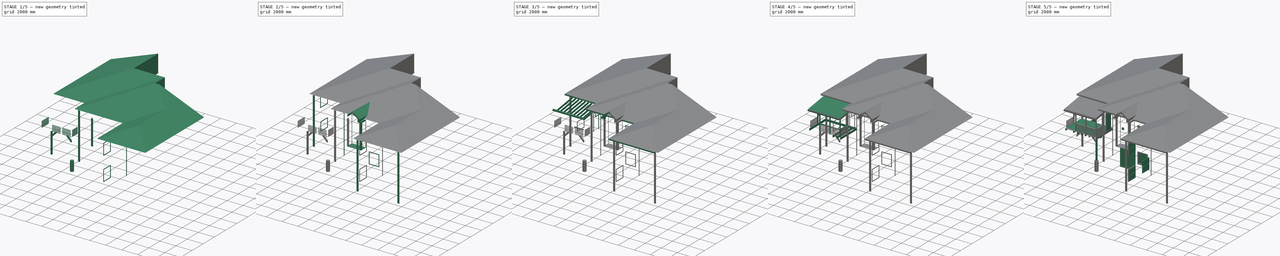
[diagram: build sequence overview — one tinted view per stage of 5, left to right]
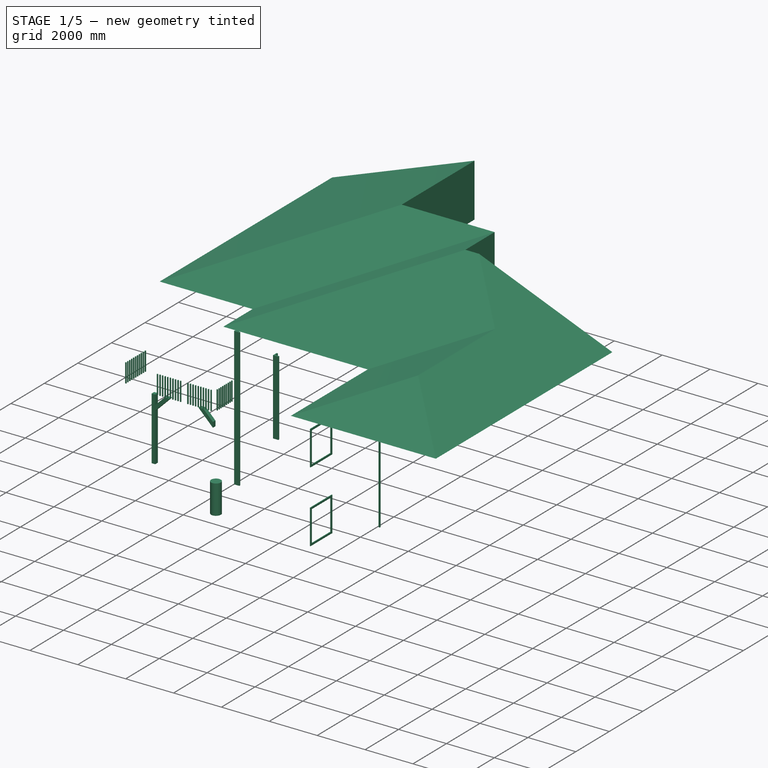
[diagram: stage 1 of 5 — iso view after this stage's code; geometry added in this stage tinted green]
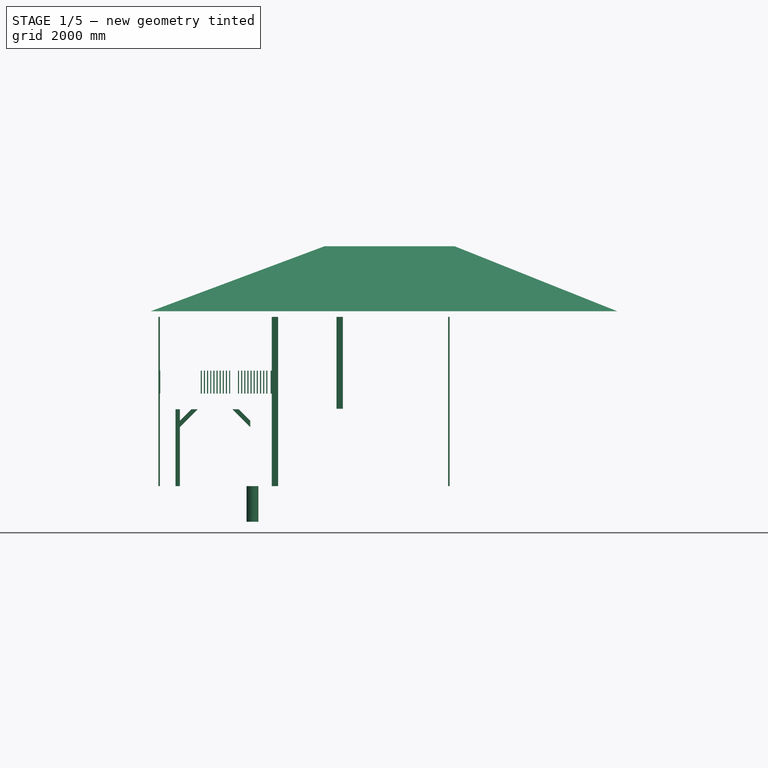
[diagram: stage 1 of 5 — front view after this stage's code; geometry added in this stage tinted green]
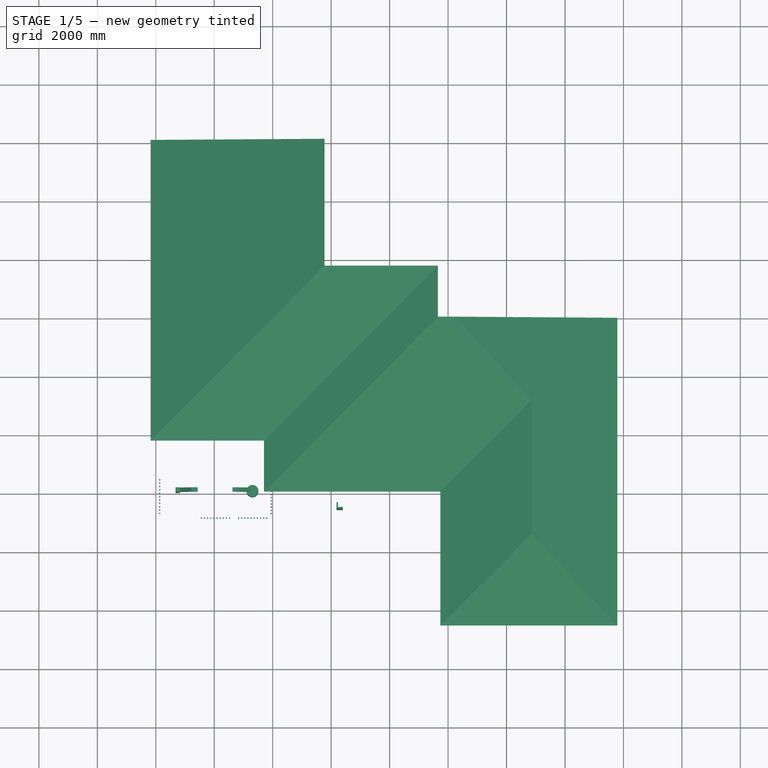
[diagram: stage 1 of 5 — top view after this stage's code; geometry added in this stage tinted green]
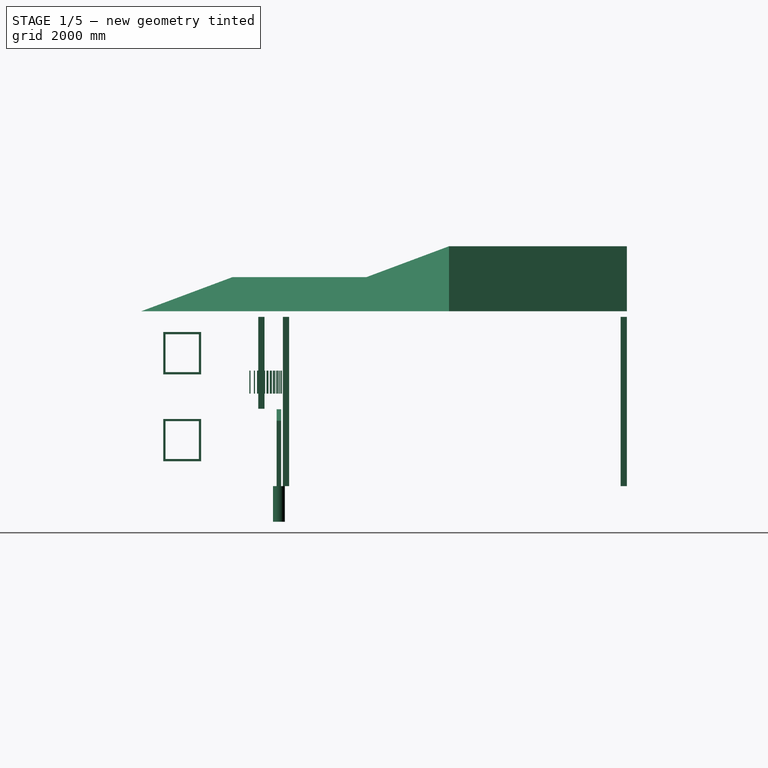
[diagram: stage 1 of 5 — right view after this stage's code; geometry added in this stage tinted green]
FCSTD DOCUMENT  (FreeCAD 0.18R14154 (Git))
Label: Model
License: All rights reserved
LicenseURL: http://en.wikipedia.org/wiki/All_rights_reserved
objects: Part::Part2DObjectPython×130, Part::FeaturePython×121, Part::Extrusion×22, App::FeaturePython×21, App::MaterialObjectPython×15, Part::Feature×11, Part::Offset2D×11, Part::Cut×9, App::DocumentObjectGroup×9, Sketcher::SketchObject×8, App::GeometryPython×5, Part::Mirroring×2, Part::MultiFuse×1, Part::Compound×1, Image::ImagePlane×1, App::DocumentObjectGroupPython×1
note: 321 computed .brp shape members not serialized (recipe doc carries the construction recipe); baked Part::Feature solids carry a one-line shape summary decoded from their .brp

FEATURE [App::MaterialObjectPython] Material002  label="6x6 treated wood"  # material (typed FeaturePython)
  Description = 6x6 treated wood
  Material = Color=(1.0, 0.6666666666666666, 0.4980392156862745),Description=6x6 treated wood,DiffuseColor=(1.0, 0.6666666865348816, 0.49803921580314636),+4 more (map truncated)
  Transparency = 0
FEATURE [Part::FeaturePython] Structure  label="New 6x6 columns"  # Arch/BIM object (typed FeaturePython)
  FaceMaker = 0
  Height = 2628.9
  HorizontalArea = 23225.8
  IfcAttributes = IfcUID=1MTzHWa5KHwBrE093rt3ko
  IfcRole = 25
  Length = 152.4
  Material = -> Material002
  MoveWithHost = false
  Nodes = (2) [(-1.27676e-15,2.78809e-15,0),(-1.27676e-15,2.78809e-15,2628.9)]
  NodesOffset = 0
  Normal = (0,0,0)
  PerimeterLength = 609.6
  Placement = pos=(-3250.82,-1911.35,0) rot=(0,0,1;0rad)
  VerticalArea = 1.60258e+06
  Width = 152.4
FEATURE [Part::FeaturePython] Structure020  label="Structure004"  # Arch/BIM object (typed FeaturePython)
  Base = -> Clone2D003
  FaceMaker = 0
  Height = 5791.2
  HorizontalArea = 2930.52
  IfcRole = 25
  Length = 0
  MoveWithHost = false
  Nodes = (2) [(6026.69,-1748.29,0),(6026.69,-1748.29,5791.2)]
  NodesOffset = 0
  Normal = (0,0,0)
  PerimeterLength = 216.734
  VerticalArea = 1.25515e+06
  Width = 200
FEATURE [Part::FeaturePython] Structure021  label="Structure005"  # Arch/BIM object (typed FeaturePython)
  Base = -> Clone2D002
  FaceMaker = 0
  Height = 5791.2
  HorizontalArea = 20453.4
  IfcRole = 25
  Length = 0
  MoveWithHost = false
  Nodes = (2) [(44.894,-1705.74,0),(44.894,-1705.74,5791.2)]
  NodesOffset = 0
  Normal = (0,0,0)
  PerimeterLength = 862.782
  VerticalArea = 4.99654e+06
  Width = 200
FEATURE [Part::FeaturePython] Structure022  label="Structure006"  # Arch/BIM object (typed FeaturePython)
  Base = -> Rectangle004
  FaceMaker = 0
  Height = 5791.2
  HorizontalArea = 11062.9
  IfcRole = 25
  Length = 0
  MoveWithHost = false
  Nodes = (2) [(-3884.91,9887.71,0),(-3884.91,9887.71,5791.2)]
  NodesOffset = 0
  Normal = (0,0,0)
  PerimeterLength = 530.269
  VerticalArea = 3.0709e+06
  Width = 200
FEATURE [Part::Part2DObjectPython] Clone2D005  label="DWire003 (2D) (2D)001"  # Draft 2D object (typed FeaturePython)
  Fuse = false
  Objects = -> [Clone2D002]
  Placement = pos=(6094.99,-2583.69,-489) rot=(0,0,1;0rad)
  Scale = (1,1,1)
FEATURE [Part::Part2DObjectPython] DWire005  # Draft 2D object (typed FeaturePython)
  ChamferSize = 0
  Closed = true
  End = (3945.6,-2402.69,2647.9)
  FilletRadius = 0
  Length = 862.782
  MakeFace = true
  Placement = pos=(1543.65,0,0) rot=(0,0,1;0rad)
  Points = (6) [(2350.08,-2402.06,2647.9),(2350.08,-2559.46,2647.9),(2184.14,-2559.46,2647.9),(2184.14,-2615.95,2647.9),(2401.95,-2615.95,2647.9),+1 more]
  Start = (3893.72,-2402.06,2647.9)
  Subdivisions = 0
FEATURE [Part::FeaturePython] Structure023  label="Structure007"  # Arch/BIM object (typed FeaturePython)
  Base = -> Clone2D005
  FaceMaker = 0
  Height = 3143.25
  HorizontalArea = 20453.4
  IfcRole = 25
  Length = 0
  MoveWithHost = false
  Nodes = (2) [(2259.98,-2545.16,2647.9),(2259.98,-2545.16,5791.15)]
  NodesOffset = 0
  Normal = (0,0,0)
  PerimeterLength = 862.782
  VerticalArea = 2.71194e+06
  Width = 200
FEATURE [Part::Part2DObjectPython] Rectangle022  # Draft 2D object (typed FeaturePython)
  ChamferSize = 0
  Columns = 1
  FilletRadius = 0
  Height = 1447.8
  Length = 1295.4
  MakeFace = true
  Placement = pos=(537.8,-1744.27,849.678) rot=(1,0,0;1.5708rad)
  Rows = 1
FEATURE [Part::Part2DObjectPython] Rectangle023  # Draft 2D object (typed FeaturePython)
  ChamferSize = 0
  Columns = 1
  FilletRadius = 0
  Height = 1295.4
  Length = 1143
  MakeFace = true
  Placement = pos=(614,-1744.27,925.878) rot=(1,0,0;1.5708rad)
  Rows = 1
FEATURE [Part::Cut] Cut002
  Base = -> Rectangle022
  Refine = true
  Tool = -> Rectangle023
FEATURE [Part::Extrusion] Extrusion009  label="Extrusion011"
  Base = -> Cut002
  Dir = (0,-30.9506,0)
  DirMode = 0
  FaceMakerClass = Part::FaceMakerBullseye
  LengthFwd = 0
  LengthRev = 0
  Solid = true
  Symmetric = false
FEATURE [Part::FeaturePython] Clone007  label="Extrusion013"  # Draft clone (typed FeaturePython)
  AttacherType = Attacher::AttachEngine3D
  Fuse = false
  Objects = -> [Extrusion009]
  Placement = pos=(7775.98,-1574.8,0) rot=(0,0,-1;1.5708rad)
  Scale = (1,1,1)
FEATURE [Part::FeaturePython] Clone008  label="Extrusion014"  # Draft clone (typed FeaturePython)
  AttacherType = Attacher::AttachEngine3D
  Fuse = false
  Objects = -> [Clone007]
  Placement = pos=(7775.98,-1574.8,2973.02) rot=(0,0,-1;1.5708rad)
  Scale = (1,1,1)
FEATURE [Part::FeaturePython] Clone010  label="Extrusion017"  # Draft clone (typed FeaturePython)
  AttacherType = Attacher::AttachEngine3D
  Fuse = false
  Objects = -> [Clone007]
  Placement = pos=(7775.98,-4035.43,0) rot=(0,0,-1;1.5708rad)
  Scale = (1,1,1)
FEATURE [Part::FeaturePython] Clone011  label="Extrusion018"  # Draft clone (typed FeaturePython)
  AttacherType = Attacher::AttachEngine3D
  Fuse = false
  Objects = -> [Clone008]
  Placement = pos=(7775.98,-4035.43,2973.02) rot=(0,0,-1;1.5708rad)
  Scale = (1,1,1)
FEATURE [Part::FeaturePython] Structure072  label="Structure018"  # Arch/BIM object (typed FeaturePython)
  CloneOf = -> Structure021
  FaceMaker = 0
  Height = 5791.2
  HorizontalArea = 20453.4
  IfcAttributes = IfcUID=0vB7rkaHeHw8QI093rt3ko
  IfcRole = 25
  Length = 0
  MoveWithHost = false
  Nodes = (2) [(44.894,-1705.74,0),(44.894,-1705.74,5791.2)]
  NodesOffset = 0
  Normal = (0,0,0)
  PerimeterLength = 862.782
  VerticalArea = 4.99654e+06
  Width = 200
FEATURE [Part::FeaturePython] Structure073  label="Structure019"  # Arch/BIM object (typed FeaturePython)
  CloneOf = -> Structure022
  FaceMaker = 0
  Height = 5791.2
  HorizontalArea = 11062.9
  IfcAttributes = IfcUID=0vBNamaHeHw8QI093rt3ko
  IfcRole = 25
  Length = 0
  MoveWithHost = false
  Nodes = (2) [(-3884.91,9887.71,0),(-3884.91,9887.71,5791.2)]
  NodesOffset = 0
  Normal = (0,0,0)
  PerimeterLength = 530.269
  VerticalArea = 3.0709e+06
  Width = 200
FEATURE [Part::FeaturePython] Structure074  label="Structure020"  # Arch/BIM object (typed FeaturePython)
  CloneOf = -> Structure023
  FaceMaker = 0
  Height = 3143.25
  HorizontalArea = 20453.4
  IfcAttributes = IfcUID=0vBdP6aHeHw8QI093rt3ko
  IfcRole = 25
  Length = 0
  MoveWithHost = false
  Nodes = (2) [(2259.98,-2545.16,2647.9),(2259.98,-2545.16,5791.15)]
  NodesOffset = 0
  Normal = (0,0,0)
  PerimeterLength = 862.782
  VerticalArea = 2.71194e+06
  Width = 200
FEATURE [Part::Part2DObjectPython] Line062  # Draft 2D object (typed FeaturePython)
  ChamferSize = 0
  Closed = false
  End = (-3917.95,-3168.6,4076.7)
  FilletRadius = 0
  Length = 3130.6
  MakeFace = true
  Points = (2) [(-3917.95,-38,4076.7),(-3917.95,-3168.6,4076.7)]
  Start = (-3917.95,-38,4076.7)
  Subdivisions = 0
FEATURE [App::FeaturePython] Dimension024  # Draft dimension (typed FeaturePython)
  Diameter = false
  Dimline = (-3917.95,-3740.15,3698.88)
  Direction = (0,0,0)
  Distance = 914.4
  End = (-3917.95,-3168.6,4076.7)
  Normal = (-1,0,0)
  Start = (-3917.95,-3168.6,3162.3)
FEATURE [App::FeaturePython] Dimension025  # Draft dimension (typed FeaturePython)
  Diameter = false
  Dimline = (-3917.95,-3740.15,4683.12)
  Direction = (0,0,0)
  Distance = 1054.1
  End = (-3917.95,-3168.6,5130.8)
  Normal = (-1,0,0)
  Start = (-3917.95,-3168.6,4076.7)
FEATURE [App::FeaturePython] Dimension026  # Draft dimension (typed FeaturePython)
  Diameter = false
  Dimline = (-4235.07,-1987.55,3775.07)
  Direction = (0,0,0)
  Distance = 914.4
  End = (-3917.95,-1987.55,4076.7)
  Normal = (0,-1,0)
  Start = (-3917.95,-1987.55,3162.3)
FEATURE [App::FeaturePython] Dimension027  # Draft dimension (typed FeaturePython)
  Diameter = false
  Dimline = (-4235.07,-1987.55,4759.32)
  Direction = (0,0,0)
  Distance = 1054.1
  End = (-3917.95,-1987.55,5130.8)
  Normal = (0,-1,0)
  Start = (-3917.95,-1987.55,4076.7)
FEATURE [Part::Part2DObjectPython] Line063  # Draft 2D object (typed FeaturePython)
  ChamferSize = 0
  Closed = false
  End = (-5514.6,-1987.55,2628.9)
  FilletRadius = 0
  Length = 5349.55
  MakeFace = true
  Points = (2) [(-165.05,-1987.55,2628.9),(-5514.6,-1987.55,2628.9)]
  Start = (-165.05,-1987.55,2628.9)
  Subdivisions = 0
  Support = -> [Structure]
FEATURE [Part::Part2DObjectPython] Line064  # Draft 2D object (typed FeaturePython)
  ChamferSize = 0
  Closed = false
  End = (-5514.6,-1987.55,2019.3)
  FilletRadius = 0
  Length = 5349.55
  MakeFace = true
  Points = (2) [(-165.05,-1987.55,2019.3),(-5514.6,-1987.55,2019.3)]
  Start = (-165.05,-1987.55,2019.3)
  Subdivisions = 0
FEATURE [Part::Part2DObjectPython] Line065  # Draft 2D object (typed FeaturePython)
  ChamferSize = 0
  Closed = false
  End = (-3174.62,-1987.55,1314.45)
  FilletRadius = 0
  Length = 1314.45
  MakeFace = true
  Points = (2) [(-3174.62,-1987.55,2628.9),(-3174.62,-1987.55,1314.45)]
  Start = (-3174.62,-1987.55,2628.9)
  Subdivisions = 0
FEATURE [Part::Part2DObjectPython] Line066  # Draft 2D object (typed FeaturePython)
  ChamferSize = 0
  Closed = false
  End = (-2565.02,-1987.55,1314.45)
  FilletRadius = 0
  Length = 1314.45
  MakeFace = true
  Points = (2) [(-2565.02,-1987.55,2628.9),(-2565.02,-1987.55,1314.45)]
  Start = (-2565.02,-1987.55,2628.9)
  Subdivisions = 0
FEATURE [Part::Part2DObjectPython] Line067  # Draft 2D object (typed FeaturePython)
  ChamferSize = 0
  Closed = false
  End = (-2565.02,-1987.55,2628.9)
  FilletRadius = 0
  Length = 862.105
  MakeFace = true
  Points = (2) [(-3174.62,-1987.55,2019.3),(-2565.02,-1987.55,2628.9)]
  Start = (-3174.62,-1987.55,2019.3)
  Subdivisions = 0
FEATURE [Part::Part2DObjectPython] Line068  # Draft 2D object (typed FeaturePython)
  ChamferSize = 0
  Closed = false
  End = (-3174.62,-1987.55,2234.83)
  FilletRadius = 0
  Length = 557.305
  MakeFace = true
  Points = (2) [(-2780.55,-1987.55,2628.9),(-3174.62,-1987.55,2234.83)]
  Start = (-2780.55,-1987.55,2628.9)
  Subdivisions = 0
FEATURE [Part::Part2DObjectPython] DWire029  # Draft 2D object (typed FeaturePython)
  ChamferSize = 0
  Closed = true
  End = (-3174.62,-1987.55,2019.3)
  FilletRadius = 0
  Length = 1850.46
  MakeFace = true
  Points = (4) [(-2565.02,-1987.55,2628.9),(-2780.55,-1987.55,2628.9),(-3174.62,-1987.55,2234.83),(-3174.62,-1987.55,2019.3)]
  Start = (-2565.02,-1987.55,2628.9)
  Subdivisions = 0
FEATURE [Part::FeaturePython] Structure075  label="6x6 brace"  # Arch/BIM object (typed FeaturePython)
  Base = -> DWire029
  FaceMaker = 0
  Height = 152.4
  HorizontalArea = 92903
  IfcAttributes = IfcUID=0ufAcEaHeHw8QI093rt3ko
  IfcRole = 8
  Length = 0
  Material = -> Material002
  MoveWithHost = false
  Nodes = (2) [(-2919.85,-1987.55,2374.12),(-2919.85,-1987.55,2221.72)]
  NodesOffset = 0
  Normal = (0,1,0)
  PerimeterLength = 0
  VerticalArea = 249164
  Width = 200
FEATURE [Part::Feature] mirror002001  label="Mirror of 6x6 brace001"
  Placement = pos=(13.4075,0,0) rot=(0,0,1;0rad)
  shape: bbox 609.6 x 152.4 x 609.6 mm, 6 faces (baked)
FEATURE [Part::FeaturePython] Structure076  label="6x6 brace001"  # Arch/BIM object (typed FeaturePython)
  Base = -> mirror002001
  FaceMaker = 0
  Height = 2000
  HorizontalArea = 32846.2
  IfcAttributes = IfcUID=0uepLyaHeHw8QI093rt3ko
  IfcRole = 8
  Length = 0
  Material = -> Material002
  MoveWithHost = false
  NodesOffset = 0
  Normal = (0,0,0)
  PerimeterLength = 0
  VerticalArea = 249164
  Width = 200
FEATURE [Part::Part2DObjectPython] Circle001  # Draft 2D object (typed FeaturePython)
  FirstAngle = 0
  LastAngle = 0
  MakeFace = true
  Placement = pos=(-3250.82,-1911.35,0) rot=(0,0,1;0rad)
  Radius = 203.2
FEATURE [App::MaterialObjectPython] Material011  label="Material"  # material (typed FeaturePython)
  Transparency = 0
FEATURE [App::MaterialObjectPython] Material012  label="Material001"  # material (typed FeaturePython)
  Transparency = 0
FEATURE [App::MaterialObjectPython] Material013  label="Concrete"  # material (typed FeaturePython)
  Material = Color=(0.5019607843137255, 0.5019607843137255, 0.5019607843137255),DiffuseColor=(0.501960813999176, 0.501960813999176, 0.501960813999176),+3 more (map truncated)
  Transparency = 0
FEATURE [Part::FeaturePython] Structure077  label="Structure021"  # Arch/BIM object (typed FeaturePython)
  Base = -> Circle001
  FaceMaker = 0
  Height = 1219.2
  HorizontalArea = 129717
  IfcAttributes = IfcUID=0ufNe8aHeHw8QI093rt3ko
  IfcRole = 77
  Length = 0
  Material = -> Material013
  MoveWithHost = false
  Nodes = (2) [(-3250.82,-1911.35,0),(-3250.82,-1911.35,-1219.2)]
  NodesOffset = 0
  Normal = (0,0,-1)
  PerimeterLength = 1276.74
  VerticalArea = 1.55661e+06
  Width = 200
FEATURE [Part::FeaturePython] Structure078  label="Structure022"  # Arch/BIM object (typed FeaturePython)
  CloneOf = -> Structure077
  FaceMaker = 0
  Height = 1219.2
  HorizontalArea = 129717
  IfcAttributes = IfcUID=0ufbH6aHeHw8QI093rt3ko
  IfcRole = 25
  Length = 0
  Material = -> Material013
  MoveWithHost = false
  Nodes = (2) [(-3250.82,-1911.35,0),(-3250.82,-1911.35,-1219.2)]
  NodesOffset = 0
  Normal = (0,0,0)
  PerimeterLength = 1276.74
  Placement = pos=(2559.05,9.15828e-06,0) rot=(0,0,1;0rad)
  VerticalArea = 1.55661e+06
  Width = 200
FEATURE [App::GeometryPython] BuildingPart  label="Level +0' 0""  # Arch/BIM object (typed FeaturePython)
  Area = 0
  Group = -> [Group001,Group002,Structure076,Structure075,Structure077,Structure078]
  Height = 0
  IfcAttributes = IfcUID=1MTrvAa5KHwBrE093rt3ko
  IfcRole = 0
  LevelOffset = 0
  Placement = pos=(-5950.82,-1987.55,0) rot=(0,0,1;0rad)
FEATURE [Part::Part2DObjectPython] Line069  # Draft 2D object (typed FeaturePython)
  ChamferSize = 0
  Closed = false
  End = (-3867.15,-1289.25,3162.3)
  FilletRadius = 0
  Length = 1156
  MakeFace = true
  Points = (2) [(-3867.15,-133.25,3162.3),(-3867.15,-1289.25,3162.3)]
  Start = (-3867.15,-133.25,3162.3)
  Subdivisions = 9
FEATURE [Part::Part2DObjectPython] Line070  # Draft 2D object (typed FeaturePython)
  ChamferSize = 0
  Closed = false
  End = (-2746.37,-2901.85,3162.3)
  FilletRadius = 0
  Length = 968.38
  MakeFace = true
  Points = (2) [(-3714.75,-2901.85,3162.3),(-2746.37,-2901.85,3162.3)]
  Start = (-3714.75,-2901.85,3162.3)
  Subdivisions = 8
FEATURE [Part::Part2DObjectPython] Line071  # Draft 2D object (typed FeaturePython)
  ChamferSize = 0
  Closed = false
  End = (-50.8,-1879.5,3162.3)
  FilletRadius = 0
  Length = 869.95
  MakeFace = true
  Points = (2) [(-50.8,-2749.45,3162.3),(-50.8,-1879.5,3162.3)]
  Start = (-50.8,-2749.45,3162.3)
  Subdivisions = 7
FEATURE [Part::Part2DObjectPython] _x2in  label="2x2in"  # Draft 2D object (typed FeaturePython)
  Height = 38
  Width = 38
FEATURE [App::MaterialObjectPython] Material014  label="2x2 treated wood"  # material (typed FeaturePython)
  Material = Color=(1.0, 0.6666666666666666, 0.4980392156862745),DiffuseColor=(1.0, 0.6666666865348816, 0.49803921580314636),Father=Wood,Name=2x10 TREATED WOOD,+2 more (map truncated)
  Transparency = 0
FEATURE [App::DocumentObjectGroupPython] MaterialContainer  label="Materials"  # scripted group (container) (typed FeaturePython)
  Group = -> [Material,Material001,Material002,Material003,Material004,Material005,Material006,Material007,Material008,Material009,Material010,Material011,Material012,Material013,Material014]
FEATURE [Part::FeaturePython] Structure079  label="2x2 Spindles001"  # Arch/BIM object (typed FeaturePython)
  Axis = -> Line069
  Base = -> _x2in
  FaceMaker = 0
  Height = 787.4
  HorizontalArea = 1444
  IfcAttributes = FlagForceBrep=True; IfcUID=0uaBTEaHeHw8QI093rt3ko
  IfcRole = 107
  Length = 0
  Material = -> Material014
  MoveWithHost = false
  Nodes = (2) [(9.71445e-17,-4.67462e-16,0),(9.71445e-17,-4.67462e-16,787.4)]
  NodesOffset = 0
  Normal = (0,0,0)
  PerimeterLength = 152
  Profile = 2x2in
  VerticalArea = 119685
  Width = 200
FEATURE [Part::FeaturePython] Structure080  label="2x2 Spindles002"  # Arch/BIM object (typed FeaturePython)
  Axis = -> Line070
  Base = -> _x2in
  FaceMaker = 0
  Height = 787.4
  HorizontalArea = 2888
  IfcAttributes = FlagForceBrep=True; IfcUID=0uaR$_aHeHw8QI093rt3ko
  IfcRole = 107
  Length = 0
  Material = -> Material014
  MoveWithHost = false
  Nodes = (2) [(9.71445e-17,-4.67462e-16,0),(9.71445e-17,-4.67462e-16,787.4)]
  NodesOffset = 0
  Normal = (0,0,0)
  PerimeterLength = 152
  Profile = 2x2in
  VerticalArea = 239370
  Width = 200
FEATURE [Part::FeaturePython] Structure081  label="2x2 Spindles003"  # Arch/BIM object (typed FeaturePython)
  Axis = -> Line071
  Base = -> _x2in
  FaceMaker = 0
  Height = 787.4
  HorizontalArea = 2888
  IfcAttributes = FlagForceBrep=True; IfcUID=0uaeSOaHeHw8QI093rt3ko
  IfcRole = 107
  Length = 0
  Material = -> Material014
  MoveWithHost = false
  Nodes = (2) [(9.71445e-17,-4.67462e-16,0),(9.71445e-17,-4.67462e-16,787.4)]
  NodesOffset = 0
  Normal = (0,0,0)
  PerimeterLength = 152
  Profile = 2x2in
  VerticalArea = 239370
  Width = 200
FEATURE [Part::FeaturePython] Structure082  label="2x2 Spindles004"  # Arch/BIM object (typed FeaturePython)
  CloneOf = -> Structure079
  FaceMaker = 0
  Height = 787.4
  HorizontalArea = 1444
  IfcAttributes = FlagForceBrep=True; IfcUID=0uao8EaHeHw8QI093rt3ko
  IfcRole = 107
  Length = 0
  Material = -> Material014
  MoveWithHost = false
  Nodes = (2) [(9.71445e-17,-4.67462e-16,0),(9.71445e-17,-4.67462e-16,787.4)]
  NodesOffset = 0
  Normal = (0,0,0)
  PerimeterLength = 152
  Placement = pos=(0,-1460.2,0) rot=(0,0,1;0rad)
  VerticalArea = 119685
  Width = 200
FEATURE [Part::FeaturePython] Structure083  label="2x2 Spindles005"  # Arch/BIM object (typed FeaturePython)
  CloneOf = -> Structure080
  FaceMaker = 0
  Height = 787.4
  HorizontalArea = 2888
  IfcAttributes = FlagForceBrep=True; IfcUID=0uaxPgaHeHw8QI093rt3ko
  IfcRole = 107
  Length = 0
  Material = -> Material014
  MoveWithHost = false
  Nodes = (2) [(9.71445e-17,-4.67462e-16,0),(9.71445e-17,-4.67462e-16,787.4)]
  NodesOffset = 0
  Normal = (0,0,0)
  PerimeterLength = 152
  Placement = pos=(1272.12,1e-12,0) rot=(0,0,1;0rad)
  VerticalArea = 239370
  Width = 200
FEATURE [Part::FeaturePython] Structure084  label="2x2 Spindles"  # Arch/BIM object (typed FeaturePython)
  CloneOf = -> Structure080
  FaceMaker = 0
  Height = 787.4
  HorizontalArea = 2888
  IfcAttributes = FlagForceBrep=True; IfcUID=0ub2xsaHeHw8QI093rt3ko
  IfcRole = 107
  Length = 0
  Material = -> Material014
  MoveWithHost = false
  Nodes = (2) [(9.71445e-17,-4.67462e-16,0),(9.71445e-17,-4.67462e-16,787.4)]
  NodesOffset = 0
  Normal = (0,0,0)
  PerimeterLength = 152
  Placement = pos=(2544.23,1e-12,0) rot=(0,0,1;0rad)
  VerticalArea = 239370
  Width = 200
FEATURE [App::DocumentObjectGroup] Group005  label="Handrails"
  Group = -> [Structure051,Structure052,Structure048,Structure055,Structure053,Structure056,Structure057,Structure049,Structure050,Structure065,Structure054,Structure064,Structure079,Structure080,Structure081,Structure082,Structure083,Structure084]
FEATURE [App::GeometryPython] BuildingPart001  label="Level +10' 3 1/2""  # Arch/BIM object (typed FeaturePython)
  Area = 0
  Group = -> [Component001,Panel,Group003,Group004,Group005,Group006]
  Height = 0
  IfcAttributes = IfcUID=1MF2fQa5KHwBrE093rt3ko
  IfcRole = 0
  LevelOffset = 0
  Placement = pos=(-5950.82,-1987.55,3136.9) rot=(0,0,1;0rad)
FEATURE [Part::Part2DObjectPython] DWire030  # Draft 2D object (typed FeaturePython)
  ChamferSize = 0
  Closed = false
  End = (-4176.09,9994.34,5981.7)
  FilletRadius = 0
  Length = 32587.1
  MakeFace = true
  Points = (7) [(11792.1,-6624.63,5981.7),(5735.51,-6624.63,5981.7),(5735.51,-2040.47,5981.7),(-296.194,-2040.47,5981.7),(-296.194,-296.194,5981.7),+2 more]
  Start = (11792.1,-6624.63,5981.7)
  Subdivisions = 0
FEATURE [Part::Part2DObjectPython] Line072  # Draft 2D object (typed FeaturePython)
  ChamferSize = 0
  Closed = false
  End = (11792.1,3907.28,5981.7)
  FilletRadius = 0
  Length = 10531.9
  MakeFace = true
  Points = (2) [(11792.1,-6624.63,5981.7),(11792.1,3907.28,5981.7)]
  Start = (11792.1,-6624.63,5981.7)
  Subdivisions = 0
FEATURE [Part::Part2DObjectPython] Line073  # Draft 2D object (typed FeaturePython)
  ChamferSize = 0
  Closed = false
  End = (11334.3,3907.28,5981.7)
  FilletRadius = 0
  Length = 10042.9
  MakeFace = true
  Points = (2) [(11334.3,-6135.61,5981.7),(11334.3,3907.28,5981.7)]
  Start = (11334.3,-6135.61,5981.7)
  Subdivisions = 0
FEATURE [Part::Part2DObjectPython] Line074  # Draft 2D object (typed FeaturePython)
  ChamferSize = 0
  Closed = false
  End = (8779.42,3907.28,5981.7)
  FilletRadius = 0
  Length = 2729.36
  MakeFace = true
  Points = (2) [(8779.42,1177.91,5981.7),(8779.42,3907.28,5981.7)]
  Start = (8779.42,1177.91,5981.7)
  Subdivisions = 0
FEATURE [Part::Part2DObjectPython] Line078  # Draft 2D object (typed FeaturePython)
  ChamferSize = 0
  Closed = false
  End = (11792.1,3907.28,5981.7)
  FilletRadius = 0
  Length = 5995.24
  MakeFace = true
  Placement = pos=(-7.13711e-05,3907.28,3.08375e-05) rot=(0,0,1;0rad)
  Points = (2) [(6224.53,0.000489087,8205.51),(11792.1,0.000356537,5981.7)]
  Start = (6224.53,3907.28,8205.51)
  Subdivisions = 0
FEATURE [Part::Part2DObjectPython] Line079  # Draft 2D object (typed FeaturePython)
  ChamferSize = 0
  Closed = false
  End = (5651.55,3907.28,8205.51)
  FilletRadius = 0
  Length = 572.979
  MakeFace = true
  Points = (2) [(6224.53,3907.28,8205.51),(5651.55,3907.28,8205.51)]
  Start = (6224.53,3907.28,8205.51)
  Subdivisions = 0
FEATURE [Part::Part2DObjectPython] Line080  # Draft 2D object (typed FeaturePython)
  ChamferSize = 0
  Closed = false
  End = (5651.55,5651.55,8205.51)
  FilletRadius = 0
  Length = 1744.27
  MakeFace = true
  Points = (2) [(5651.55,3907.28,8205.51),(5651.55,5651.55,8205.51)]
  Start = (5651.55,3907.28,8205.51)
  Subdivisions = 0
FEATURE [Part::Part2DObjectPython] Line083  # Draft 2D object (typed FeaturePython)
  ChamferSize = 0
  Closed = false
  End = (1771.65,5651.55,8205.51)
  FilletRadius = 0
  Length = 3879.9
  MakeFace = true
  Points = (2) [(5651.55,5651.55,8205.51),(1771.65,5651.55,8205.51)]
  Start = (5651.55,5651.55,8205.51)
  Subdivisions = 0
FEATURE [Part::Part2DObjectPython] Line084  # Draft 2D object (typed FeaturePython)
  ChamferSize = 0
  Closed = false
  End = (1771.65,9994.34,8205.51)
  FilletRadius = 0
  Length = 4342.79
  MakeFace = true
  Points = (2) [(1771.65,5651.55,8205.51),(1771.65,9994.34,8205.51)]
  Start = (1771.65,5651.55,8205.51)
  Subdivisions = 0
FEATURE [App::DocumentObjectGroup] Construction
  Group = -> [Dimension001,Line,Dimension003,Circle,Line004,Line003,Dimension004,Line005,Dimension,Dimension005,Dimension006,Clone2D,Line006,Line007,Line010,Line011,Dimension008,Line012,DWire014,Wire,Line046,DWire013,Line013,Line014,Line015,Line019,Line020,Line021,Line022,Line023,Line025,Line029,Line036,Line038,Line040,Line043,Line045,Line048,Line053,Line054,Line049,Line055,Line056,Line057,Dimension010,+33 more]
FEATURE [Part::Part2DObjectPython] DWire043  # Draft 2D object (typed FeaturePython)
  ChamferSize = 0
  Closed = true
  End = (1771.65,9994.34,5981.7)
  FilletRadius = 0
  Length = 65174.3
  MakeFace = true
  Points = (12) [(-4176.09,9994.34,5981.7),(-4176.09,-296.194,5981.7),(-296.194,-296.194,5981.7),(-296.194,-2040.47,5981.7),(5735.51,-2040.47,5981.7),+7 more]
  Start = (-4176.09,9994.34,5981.7)
  Subdivisions = 0
FEATURE [Part::FeaturePython] Structure085  label="Structure029"  # Arch/BIM object (typed FeaturePython)
  Base = -> DWire043
  FaceMaker = 0
  Height = 2000
  HorizontalArea = 3.52763e+08
  IfcRole = 25
  Length = 0
  MoveWithHost = false
  Nodes = (2) [(-296.194,-2040.47,5981.7),(5651.55,3907.28,8205.51)]
  NodesOffset = 0
  Normal = (0,0,0)
  PerimeterLength = 65174.3
  Placement = pos=(5947.74,5947.74,2223.81) rot=(0,0,1;0rad)
  Tool = -> Line036
  VerticalArea = 1.30349e+08
  Width = 200
FEATURE [Part::Part2DObjectPython] DWire044  # Draft 2D object (typed FeaturePython)
  ChamferSize = 0
  Closed = true
  End = (18996,-8464.55,5981.7)
  FilletRadius = 0
  Length = 32059
  MakeFace = true
  Placement = pos=(0,-8464.55,0) rot=(0,0,1;0rad)
  Points = (5) [(11792.1,0.000356537,5981.7),(6224.53,0.000489087,8205.51),(6224.53,0.000604259,10137.8),(18996,0.000604259,10137.8),(18996,0.000356537,5981.7)]
  Start = (11792.1,-8464.55,5981.7)
  Subdivisions = 0
FEATURE [Part::Extrusion] Extrusion018  label="Extrusion027"
  Base = -> DWire044
  Dir = (0,26870,-0.00160158)
  DirMode = 0
  FaceMakerClass = Part::FaceMakerBullseye
  LengthFwd = 0
  LengthRev = 0
  Solid = true
  Symmetric = false
FEATURE [Part::Cut] Cut007
  Base = -> Structure085
  Refine = true
  Tool = -> Extrusion018
FEATURE [Part::Part2DObjectPython] DWire045  # Draft 2D object (typed FeaturePython)
  ChamferSize = 0
  Closed = true
  End = (1771.65,9994.34,0)
  FilletRadius = 0
  Length = 69941.2
  MakeFace = true
  Points = (9) [(-4176.09,9994.34,0),(-6200.77,9994.34,0),(-6200.77,17913.3,0),(14763.8,17913.3,0),(14763.8,3907.28,0),(5651.55,3907.28,0),(5651.55,5651.55,0),+2 more]
  Start = (-4176.09,9994.34,0)
  Subdivisions = 0
FEATURE [Part::Extrusion] Extrusion019  label="Extrusion028"
  Base = -> DWire045
  Dir = (0,0,9842.5)
  DirMode = 0
  FaceMakerClass = Part::FaceMakerBullseye
  LengthFwd = 0
  LengthRev = 0
  Solid = true
  Symmetric = false
FEATURE [Part::Cut] Cut008
  Base = -> Cut007
  Refine = true
  Tool = -> Extrusion019
FEATURE [Part::Feature] Clone008001  label="Extrusion029"
  Placement = pos=(7775.98,-1574.8,2973.02) rot=(0,0,-1;1.5708rad)
  shape: bbox 30.95 x 1295 x 1448 mm, 10 faces (baked)
FEATURE [Part::Feature] Clone011001  label="Extrusion030"
  Placement = pos=(7775.98,-4035.43,2973.02) rot=(0,0,-1;1.5708rad)
  shape: bbox 30.95 x 1295 x 1448 mm, 10 faces (baked)
FEATURE [Part::Feature] Clone007001  label="Extrusion031"
  Placement = pos=(7775.98,-1574.8,0) rot=(0,0,-1;1.5708rad)
  shape: bbox 30.95 x 1295 x 1448 mm, 10 faces (baked)
FEATURE [Part::Feature] Clone010001  label="Extrusion032"
  Placement = pos=(7775.98,-4035.43,0) rot=(0,0,-1;1.5708rad)
  shape: bbox 30.95 x 1295 x 1448 mm, 10 faces (baked)
FEATURE [Part::Feature] Shape
  shape: bbox 15970 x 16620 x 2224 mm, 19 faces (baked)
FEATURE [Part::Feature] Shape001
  shape: bbox 15970 x 16620 x 2224 mm, 13 faces (baked)
FEATURE [Part::FeaturePython] Component002  label="Existing roof"  # Arch/BIM object (typed FeaturePython)
  Base = -> Shape001
  HorizontalArea = 0
  IfcAttributes = FlagForceBrep=True; FlagParametric=False; IfcUID=0vBsZQaHeHw8QI093rt3ko
  IfcRole = 0
  MoveWithHost = false
  PerimeterLength = 0
  VerticalArea = 0
FEATURE [App::DocumentObjectGroup] Trash
  Group = -> [Solid,Clone008,Clone011,Clone007,Clone010,Shape,Component002]
FEATURE [App::DocumentObjectGroup] Group  label="Site plan"
  Group = -> [ImagePlane001,Rectangle033,DWire,Rectangle032,Rectangle,Line061,Line060,Line059,DWire028,DWire027]
FEATURE [Part::Feature] Part__Feature  label="Existing_roof"
  shape: bbox 15970 x 16620 x 2224 mm, 13 faces (baked)
FEATURE [App::GeometryPython] BuildingPart004  label="Existing house"  # Arch/BIM object (typed FeaturePython)
  Area = 0
  Group = -> [Wall,Structure025,Structure026,Structure027,Extrusion006,Extrusion007,Clone004,Extrusion008,Clone005,Extrusion009,Clone006,Extrusion010,Clone009,Extrusion011,Clone012,Extrusion012,Cut006,Extrusion016,Extrusion017,Structure066,Structure067,Structure068,Structure069,Structure070,Structure071,Structure072,Structure073,Structure074,Clone008001,Clone011001,Clone007001,Clone010001,Part__Feature]
  Height = 0
  IfcAttributes = IfcUID=1MWDmYa5KHwBrE093rt3ko
  IfcRole = 0
  LevelOffset = 0
FEATURE [App::GeometryPython] BuildingPart003  label="Trevor Way House"  # Arch/BIM object (typed FeaturePython)
  Area = 0
  BuildingType = 36
  Group = -> [BuildingPart002,BuildingPart001,BuildingPart,BuildingPart004]
  Height = 0
  IfcAttributes = IfcUID=1MEZSYa5KHwBrE093rt3ko
  IfcRole = 11
  LevelOffset = 0
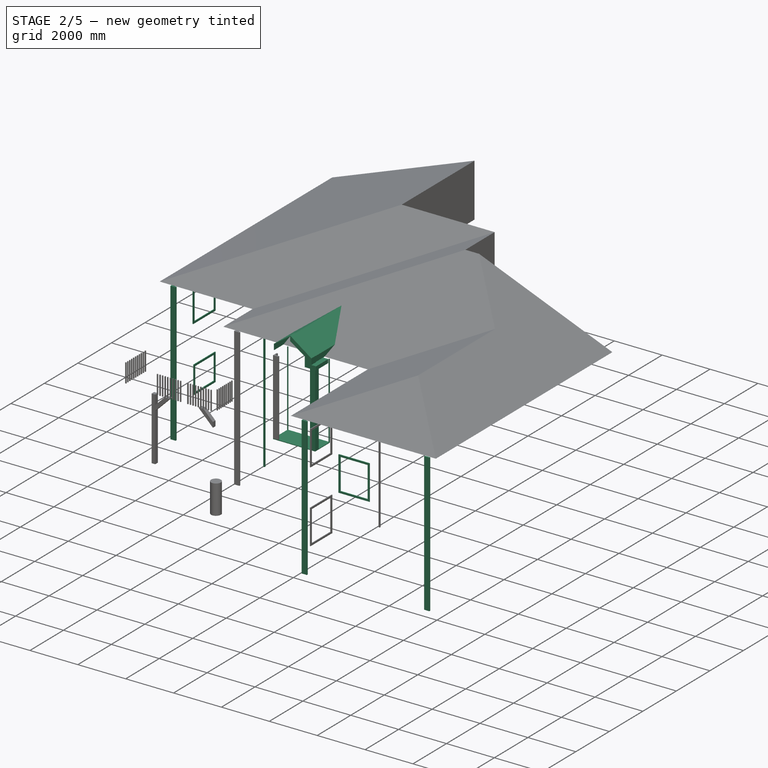
[diagram: stage 2 of 5 — iso view after this stage's code; geometry added in this stage tinted green]
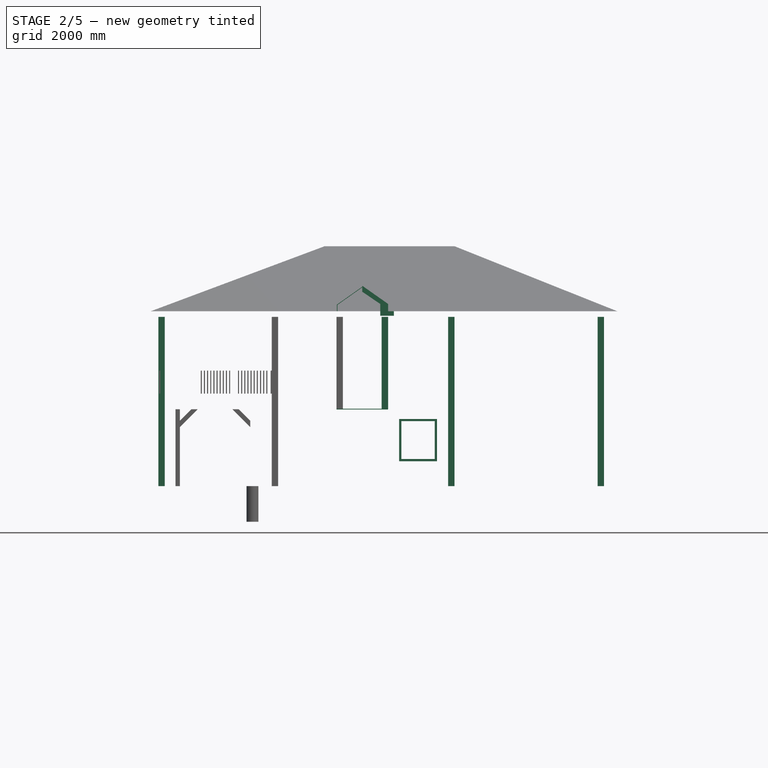
[diagram: stage 2 of 5 — front view after this stage's code; geometry added in this stage tinted green]
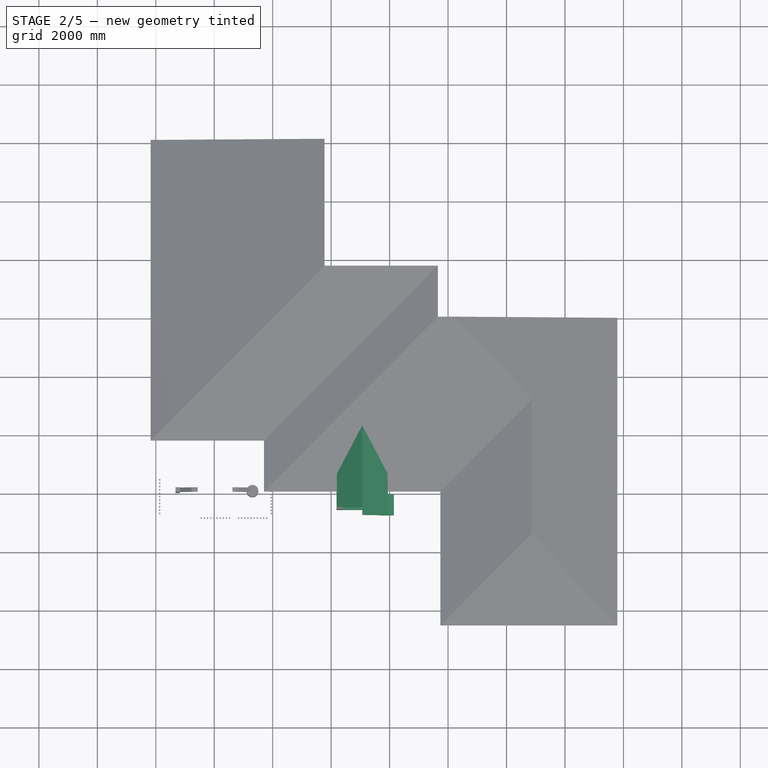
[diagram: stage 2 of 5 — top view after this stage's code; geometry added in this stage tinted green]
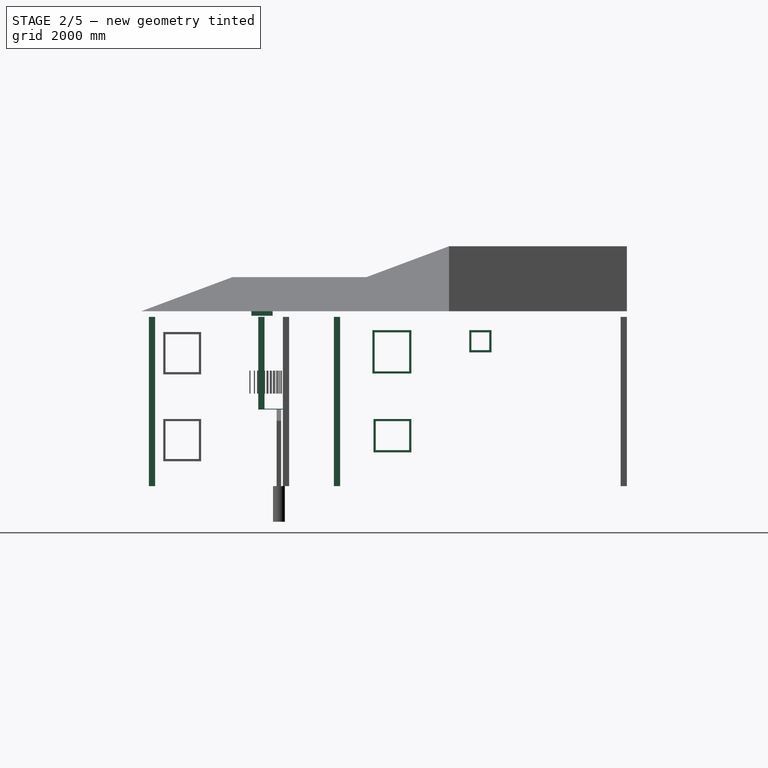
[diagram: stage 2 of 5 — right view after this stage's code; geometry added in this stage tinted green]
FEATURE [Part::Part2DObjectPython] DWire003  # Draft 2D object (typed FeaturePython)
  ChamferSize = 0
  Closed = true
  End = (-3858.97,24.2322,0)
  FilletRadius = 0
  Length = 862.782
  MakeFace = true
  Placement = pos=(0,0,-3136.9) rot=(0,0,1;0rad)
  Points = (6) [(-3858.97,181,3136.9),(-3910.85,181.631,3136.9),(-3910.85,-32.2592,3136.9),(-3693.04,-32.2592,3136.9),(-3693.04,24.2322,3136.9),+1 more]
  Start = (-3858.97,181,0)
  Subdivisions = 0
FEATURE [Part::Part2DObjectPython] Clone2D002  label="DWire003 (2D)"  # Draft 2D object (typed FeaturePython)
  Fuse = false
  Objects = -> [DWire003]
  Placement = pos=(3879.9,-1744.27,-3136.9) rot=(0,0,1;0rad)
  Scale = (1,1,1)
FEATURE [Part::Part2DObjectPython] Rectangle003  # Draft 2D object (typed FeaturePython)
  ChamferSize = 0
  Columns = 1
  FilletRadius = 0
  Height = 56.4914
  Length = 51.8756
  MakeFace = true
  Placement = pos=(-30.9506,-32.2592,0) rot=(0,0,1;0rad)
  Rows = 1
FEATURE [Part::Part2DObjectPython] Clone2D003  label="Rectangle003 (2D)"  # Draft 2D object (typed FeaturePython)
  Fuse = false
  Objects = -> [Rectangle003]
  Placement = pos=(6000.76,-1776.53,0) rot=(0,0,1;0rad)
  Scale = (1,1,1)
FEATURE [Part::Part2DObjectPython] Clone2D004  label="DWire003 (2D) (2D)"  # Draft 2D object (typed FeaturePython)
  Fuse = false
  Objects = -> [Clone2D002]
  Placement = pos=(9911.61,-6328.43,-3136.9) rot=(0,0,1;0rad)
  Scale = (1,1,1)
FEATURE [Part::Part2DObjectPython] Rectangle004  # Draft 2D object (typed FeaturePython)
  ChamferSize = 0
  Columns = 1
  FilletRadius = 0
  Height = 213.259
  Length = 51.8756
  MakeFace = true
  Placement = pos=(-3910.85,9781.08,0) rot=(0,0,1;0rad)
  Rows = 1
FEATURE [Part::Part2DObjectPython] Rectangle005  # Draft 2D object (typed FeaturePython)
  ChamferSize = 0
  Columns = 1
  FilletRadius = 0
  Height = 56.4914
  Length = 217.814
  MakeFace = true
  Placement = pos=(11116.5,-6360.69,0) rot=(0,0,1;0rad)
  Rows = 1
FEATURE [Part::FeaturePython] Structure016  label="Structure"  # Arch/BIM object (typed FeaturePython)
  Base = -> DWire003
  FaceMaker = 0
  Height = 5791.2
  HorizontalArea = 20453.4
  IfcRole = 25
  Length = 0
  MoveWithHost = false
  Nodes = (2) [(-3835.01,38.5314,0),(-3835.01,38.5314,5791.2)]
  NodesOffset = 0
  Normal = (0,0,0)
  PerimeterLength = 862.782
  VerticalArea = 4.99654e+06
  Width = 200
FEATURE [Part::FeaturePython] Structure017  label="Structure001"  # Arch/BIM object (typed FeaturePython)
  Base = -> Clone2D004
  FaceMaker = 0
  Height = 5791.2
  HorizontalArea = 20453.4
  IfcRole = 25
  Length = 0
  MoveWithHost = false
  Nodes = (2) [(6076.6,-6289.9,0),(6076.6,-6289.9,5791.2)]
  NodesOffset = 0
  Normal = (0,0,0)
  PerimeterLength = 862.782
  VerticalArea = 4.99654e+06
  Width = 200
FEATURE [Part::FeaturePython] Structure018  label="Structure002"  # Arch/BIM object (typed FeaturePython)
  Base = -> Rectangle003
  FaceMaker = 0
  Height = 5791.2
  HorizontalArea = 2930.52
  IfcRole = 25
  Length = 0
  MoveWithHost = false
  Nodes = (2) [(-5.01279,-4.01349,0),(-5.01279,-4.01349,5791.2)]
  NodesOffset = 0
  Normal = (0,0,0)
  PerimeterLength = 216.734
  VerticalArea = 1.25515e+06
  Width = 200
FEATURE [Part::FeaturePython] Structure019  label="Structure003"  # Arch/BIM object (typed FeaturePython)
  Base = -> Rectangle005
  FaceMaker = 0
  Height = 5791.2
  HorizontalArea = 12304.6
  IfcRole = 25
  Length = 0
  MoveWithHost = false
  Nodes = (2) [(11225.4,-6332.45,0),(11225.4,-6332.45,5791.2)]
  NodesOffset = 0
  Normal = (0,0,0)
  PerimeterLength = 548.611
  VerticalArea = 3.17712e+06
  Width = 200
FEATURE [Part::Part2DObjectPython] Rectangle006  # Draft 2D object (typed FeaturePython)
  ChamferSize = 0
  Columns = 1
  FilletRadius = 0
  Height = 1041.4
  Length = 1700
  MakeFace = true
  Placement = pos=(2215.09,-2612.29,2647.9) rot=(0,0,1;0rad)
  Rows = 1
FEATURE [Part::Extrusion] Extrusion001
  Base = -> Rectangle006
  Dir = (0,0,3552.1)
  DirMode = 0
  FaceMakerClass = Part::FaceMakerBullseye
  LengthFwd = 0
  LengthRev = 0
  Solid = true
  Symmetric = false
FEATURE [Part::Part2DObjectPython] DWire004  # Draft 2D object (typed FeaturePython)
  ChamferSize = 0
  Closed = true
  End = (3915.09,-1570.89,6200)
  FilletRadius = 0
  Length = 3780.87
  MakeFace = true
  Placement = pos=(0,-1570.89,0) rot=(0,0,1;0rad)
  Points = (3) [(2215.09,0,6200),(3065.09,0,6800),(3915.09,0,6200)]
  Start = (2215.09,-1570.89,6200)
  Subdivisions = 0
FEATURE [Part::Extrusion] Extrusion002
  Base = -> DWire004
  Dir = (0,-1041.4,0)
  DirMode = 0
  FaceMakerClass = Part::FaceMakerBullseye
  LengthFwd = 0
  LengthRev = 0
  Solid = true
  Symmetric = false
FEATURE [Part::MultiFuse] Fusion
  Placement = pos=(0,26.6212,0) rot=(0,0,1;0rad)
  Refine = true
  Shapes = -> [Extrusion002,Extrusion001]
FEATURE [Part::FeaturePython] Structure024  label="Structure008"  # Arch/BIM object (typed FeaturePython)
  Base = -> DWire005
  FaceMaker = 0
  Height = 3143.25
  HorizontalArea = 20453.4
  IfcRole = 25
  Length = 0
  MoveWithHost = false
  Nodes = (2) [(3869.74,-2545.16,2647.9),(3869.74,-2545.16,5791.15)]
  NodesOffset = 0
  Normal = (0,0,0)
  PerimeterLength = 862.782
  VerticalArea = 2.71194e+06
  Width = 200
FEATURE [Part::FeaturePython] Wall  # Arch/BIM object (typed FeaturePython)
  Additions = -> [Fusion]
  Align = 1
  Base = -> DWire001
  BlockHeight = 0
  BlockLength = 0
  CountBroken = 0
  CountEntire = 0
  Face = 0
  Height = 5829.3
  HorizontalArea = 6.2674e+06
  IfcAttributes = FlagForceBrep=True; FlagParametric=False; IfcUID=2MZWa8a4yHw9b8093rt3ko
  IfcRole = 166
  Joint = 0
  Length = 31537
  MakeBlocks = false
  MoveWithHost = false
  Normal = (0,0,0)
  OffsetFirst = 0
  OffsetSecond = 0
  PerimeterLength = 63074
  Subtractions = -> [Structure016,Structure021,Structure022,Structure018,Structure019,Structure020,Structure017,Structure023,Structure024]
  VerticalArea = 3.67677e+08
  Width = 200
FEATURE [Part::Part2DObjectPython] Rectangle020  # Draft 2D object (typed FeaturePython)
  ChamferSize = 0
  Columns = 1
  FilletRadius = 0
  Height = 1333.5
  Length = 1181.1
  MakeFace = true
  Placement = pos=(-3879.9,2545.73,3926.62) rot=(0.57735,-0.57735,-0.57735;2.0944rad)
  Rows = 1
FEATURE [Part::Part2DObjectPython] Rectangle021  # Draft 2D object (typed FeaturePython)
  ChamferSize = 0
  Columns = 1
  FilletRadius = 0
  Height = 1485.9
  Length = 1333.5
  MakeFace = true
  Placement = pos=(-3879.9,2621.93,3850.42) rot=(0.57735,-0.57735,-0.57735;2.0944rad)
  Rows = 1
FEATURE [Part::Cut] Cut001
  Base = -> Rectangle021
  Refine = true
  Tool = -> Rectangle020
FEATURE [Part::Extrusion] Extrusion008  label="Extrusion009"
  Base = -> Cut001
  Dir = (-30.9506,0,0)
  DirMode = 0
  FaceMakerClass = Part::FaceMakerBullseye
  LengthFwd = 0
  LengthRev = 0
  Solid = true
  Symmetric = false
FEATURE [Part::FeaturePython] Clone006  label="Extrusion012"  # Draft clone (typed FeaturePython)
  AttacherType = Attacher::AttachEngine3D
  Fuse = false
  Objects = -> [Extrusion009]
  Placement = pos=(3787.68,0,0) rot=(0,0,1;0rad)
  Scale = (1,1,1)
FEATURE [Part::Part2DObjectPython] Rectangle024  # Draft 2D object (typed FeaturePython)
  ChamferSize = 0
  Columns = 1
  FilletRadius = 0
  Height = 990.6
  Length = 1143
  MakeFace = true
  Placement = pos=(614,-1744.27,925.878) rot=(1,0,0;1.5708rad)
  Rows = 1
FEATURE [Part::Part2DObjectPython] Rectangle025  # Draft 2D object (typed FeaturePython)
  ChamferSize = 0
  Columns = 1
  FilletRadius = 0
  Height = 1143
  Length = 1295.4
  MakeFace = true
  Placement = pos=(537.8,-1744.27,849.678) rot=(1,0,0;1.5708rad)
  Rows = 1
FEATURE [Part::Cut] Cut003
  Base = -> Rectangle025
  Refine = true
  Tool = -> Rectangle024
FEATURE [Part::Extrusion] Extrusion010  label="Extrusion015"
  Base = -> Cut003
  Dir = (0,-30.9506,0)
  DirMode = 0
  FaceMakerClass = Part::FaceMakerBullseye
  LengthFwd = 0
  LengthRev = 0
  Placement = pos=(-3108.47,1744.27,304.8) rot=(0,0,1;0rad)
  Solid = true
  Symmetric = false
FEATURE [Part::FeaturePython] Clone009  label="Extrusion016"  # Draft clone (typed FeaturePython)
  AttacherType = Attacher::AttachEngine3D
  Fuse = false
  Objects = -> [Extrusion010]
  Placement = pos=(-2135.63,3159.74,304.8) rot=(0,0,-1;1.5708rad)
  Scale = (1,1,1)
FEATURE [Part::Part2DObjectPython] Rectangle026  # Draft 2D object (typed FeaturePython)
  ChamferSize = 0
  Columns = 1
  FilletRadius = 0
  Height = 609.6
  Length = 609.6
  MakeFace = true
  Placement = pos=(-3879.9,5285.97,0) rot=(0.57735,-0.57735,-0.57735;2.0944rad)
  Rows = 1
  Support = -> [Wall]
FEATURE [Part::Part2DObjectPython] Rectangle027  # Draft 2D object (typed FeaturePython)
  ChamferSize = 0
  Columns = 1
  FilletRadius = 0
  Height = 762
  Length = 762
  MakeFace = true
  Placement = pos=(-3879.9,5362.17,-76.2) rot=(0.57735,-0.57735,-0.57735;2.0944rad)
  Rows = 1
FEATURE [Part::Cut] Cut004
  Base = -> Rectangle027
  Refine = true
  Tool = -> Rectangle026
FEATURE [Part::Extrusion] Extrusion011  label="Extrusion019"
  Base = -> Cut004
  Dir = (-30.9506,0,0)
  DirMode = 0
  FaceMakerClass = Part::FaceMakerBullseye
  LengthFwd = 0
  LengthRev = 0
  Placement = pos=(0,0,4650.52) rot=(0,0,1;0rad)
  Solid = true
  Symmetric = false
FEATURE [Part::Part2DObjectPython] Rectangle028  # Draft 2D object (typed FeaturePython)
  ChamferSize = 0
  Columns = 1
  FilletRadius = 0
  Height = 871.682
  Length = 1761.46
  MakeFace = true
  Placement = pos=(2184.14,-1744.27,2647.9) rot=(1,0,0;3.14159rad)
  Rows = 1
FEATURE [Part::Extrusion] Extrusion012  label="Extrusion021"
  Base = -> Rectangle028
  Dir = (0,0,-25.4)
  DirMode = 0
  FaceMakerClass = Part::FaceMakerBullseye
  LengthFwd = 0
  LengthRev = 0
  Solid = true
  Symmetric = false
FEATURE [Part::Part2DObjectPython] DWire024  # Draft 2D object (typed FeaturePython)
  ChamferSize = 0
  Closed = true
  End = (2451.77,-2853.96,5829.3)
  FilletRadius = 0
  Length = 3502.14
  MakeFace = true
  Placement = pos=(0,-268.284,0) rot=(0,0,1;0rad)
  Points = (9) [(2401.95,-2585.67,5829.3),(1982.24,-2585.67,5829.3),(1982.24,-2585.67,5981.7),(2179.09,-2585.67,5981.7),(2179.09,-2585.67,6231.08),+4 more]
  Start = (2401.95,-2853.96,5829.3)
  Subdivisions = 0
  Support = -> [Wall]
FEATURE [Part::Extrusion] Extrusion013  label="Extrusion022"
  Base = -> DWire024
  Dir = (0,268.284,0)
  DirMode = 0
  FaceMakerClass = Part::FaceMakerBullseye
  LengthFwd = 0
  LengthRev = 0
  Solid = true
  Symmetric = false
FEATURE [Part::Part2DObjectPython] Rectangle029  # Draft 2D object (typed FeaturePython)
  ChamferSize = 0
  Columns = 1
  FilletRadius = 0
  Height = 460.4
  Length = 232.846
  MakeFace = true
  Placement = pos=(2215.09,-2585.67,5829.3) rot=(0,1,0;3.14159rad)
  Rows = 1
  Support = -> [Extrusion013]
FEATURE [Part::Extrusion] Extrusion014  label="Extrusion023"
  Base = -> Rectangle029
  Dir = (0,0,152.4)
  DirMode = 0
  FaceMakerClass = Part::FaceMakerBullseye
  LengthFwd = 0
  LengthRev = 0
  Solid = true
  Symmetric = false
FEATURE [Part::Mirroring] mirror  label="Mirror of Extrusion022"
  Base = (3064.92,-2853.96,6854.5)
  Normal = (-1,0,4.07069e-07)
  Source = -> Extrusion013
FEATURE [Part::Mirroring] mirror001  label="Mirror of Extrusion023"
  Base = (3064.92,-2853.96,6854.5)
  Normal = (-1,0,4.07069e-07)
  Source = -> Extrusion014
FEATURE [Part::Part2DObjectPython] Line046  # Draft 2D object (typed FeaturePython)
  ChamferSize = 0
  Closed = false
  End = (1771.65,9994.34,5981.7)
  FilletRadius = 0
  Length = 5947.74
  MakeFace = true
  Points = (2) [(-4176.09,9994.34,5981.7),(1771.65,9994.34,5981.7)]
  Start = (-4176.09,9994.34,5981.7)
  Subdivisions = 0
  Support = -> [Structure025]
FEATURE [Part::Part2DObjectPython] DWire025  # Draft 2D object (typed FeaturePython)
  ChamferSize = 0
  Closed = true
  End = (3915.09,-2585.67,6200)
  FilletRadius = 0
  Length = 4414.18
  MakeFace = true
  Points = (5) [(3064.92,-2585.67,6799.88),(2215.09,-2585.67,6200),(2215.09,-2585.67,5883.28),(3915.09,-2585.67,5883.27),(3915.09,-2585.67,6200)]
  Start = (3064.92,-2585.67,6799.88)
  Subdivisions = 0
  Support = -> [Wall]
FEATURE [Part::Part2DObjectPython] DWire026  # Draft 2D object (typed FeaturePython)
  ChamferSize = 0
  Closed = true
  End = (3933.9,-2585.67,6209.75)
  FilletRadius = 0
  Length = 4320.48
  MakeFace = true
  Points = (5) [(3064.91,-2585.67,6822.9),(2196.28,-2585.67,6209.75),(2196.28,-2585.67,5981.7),(3933.9,-2585.67,5981.7),(3933.9,-2585.67,6209.75)]
  Start = (3064.91,-2585.67,6822.9)
  Subdivisions = 0
FEATURE [Part::Cut] Cut005
  Base = -> DWire026
  Refine = true
  Tool = -> DWire025
FEATURE [Part::Extrusion] Extrusion015  label="Extrusion024"
  Base = -> Cut005
  Dir = (0,6492.95,0)
  DirMode = 0
  FaceMakerClass = Part::FaceMakerBullseye
  LengthFwd = 0
  LengthRev = 0
  Solid = true
  Symmetric = false
FEATURE [Part::Part2DObjectPython] Rectangle030  # Draft 2D object (typed FeaturePython)
  ChamferSize = 0
  Columns = 1
  FilletRadius = 0
  Height = 30.9506
  Length = 30.9506
  MakeFace = true
  Placement = pos=(2184.14,-1744.27,5791.2) rot=(1,0,0;3.14159rad)
  Rows = 1
FEATURE [Part::Extrusion] Extrusion016  label="Extrusion025"
  Base = -> Rectangle030
  Dir = (0,0,-3143.3)
  DirMode = 0
  FaceMakerClass = Part::FaceMakerBullseye
  LengthFwd = 0
  LengthRev = 0
  Solid = true
  Symmetric = false
FEATURE [Part::Part2DObjectPython] Rectangle031  # Draft 2D object (typed FeaturePython)
  ChamferSize = 0
  Columns = 1
  FilletRadius = 0
  Height = 32.2592
  Length = 32.2592
  MakeFace = true
  Placement = pos=(3915.09,-1744.27,5791.2) rot=(1,0,0;3.14159rad)
  Rows = 1
FEATURE [Part::Extrusion] Extrusion017  label="Extrusion026"
  Base = -> Rectangle031
  Dir = (0,0,-3143.3)
  DirMode = 0
  FaceMakerClass = Part::FaceMakerBullseye
  LengthFwd = 0
  LengthRev = 0
  Solid = true
  Symmetric = false
FEATURE [App::DocumentObjectGroup] Group004  label="Roof"
  Group = -> [Structure060,Structure061,Structure062,Panel001]
FEATURE [Part::FeaturePython] Structure066  label="Structure012"  # Arch/BIM object (typed FeaturePython)
  CloneOf = -> Structure024
  FaceMaker = 0
  Height = 3143.25
  HorizontalArea = 20453.4
  IfcAttributes = IfcUID=0v9h$8aHeHw8QI093rt3ko
  IfcRole = 25
  Length = 0
  MoveWithHost = false
  Nodes = (2) [(3869.74,-2545.16,2647.9),(3869.74,-2545.16,5791.15)]
  NodesOffset = 0
  Normal = (0,0,0)
  PerimeterLength = 862.782
  VerticalArea = 2.71194e+06
  Width = 200
FEATURE [Part::FeaturePython] Structure067  label="Structure013"  # Arch/BIM object (typed FeaturePython)
  CloneOf = -> Structure016
  FaceMaker = 0
  Height = 5791.2
  HorizontalArea = 20453.4
  IfcAttributes = IfcUID=0v9yloaHeHw8QI093rt3ko
  IfcRole = 25
  Length = 0
  MoveWithHost = false
  Nodes = (2) [(-3835.01,38.5314,0),(-3835.01,38.5314,5791.2)]
  NodesOffset = 0
  Normal = (0,0,0)
  PerimeterLength = 862.782
  VerticalArea = 4.99654e+06
  Width = 200
FEATURE [Part::FeaturePython] Structure068  label="Structure014"  # Arch/BIM object (typed FeaturePython)
  CloneOf = -> Structure017
  FaceMaker = 0
  Height = 5791.2
  HorizontalArea = 20453.4
  IfcAttributes = IfcUID=0vACZ2aHeHw8QI093rt3ko
  IfcRole = 25
  Length = 0
  MoveWithHost = false
  Nodes = (2) [(6076.6,-6289.9,0),(6076.6,-6289.9,5791.2)]
  NodesOffset = 0
  Normal = (0,0,0)
  PerimeterLength = 862.782
  VerticalArea = 4.99654e+06
  Width = 200
FEATURE [Part::FeaturePython] Structure069  label="Structure015"  # Arch/BIM object (typed FeaturePython)
  CloneOf = -> Structure018
  FaceMaker = 0
  Height = 5791.2
  HorizontalArea = 2930.52
  IfcAttributes = IfcUID=0vAS3OaHeHw8QI093rt3ko
  IfcRole = 25
  Length = 0
  MoveWithHost = false
  Nodes = (2) [(-5.01279,-4.01349,0),(-5.01279,-4.01349,5791.2)]
  NodesOffset = 0
  Normal = (0,0,0)
  PerimeterLength = 216.734
  VerticalArea = 1.25515e+06
  Width = 200
FEATURE [Part::FeaturePython] Structure070  label="Structure016"  # Arch/BIM object (typed FeaturePython)
  CloneOf = -> Structure019
  FaceMaker = 0
  Height = 5791.2
  HorizontalArea = 12304.6
  IfcAttributes = IfcUID=0vAgZqaHeHw8QI093rt3ko
  IfcRole = 25
  Length = 0
  MoveWithHost = false
  Nodes = (2) [(11225.4,-6332.45,0),(11225.4,-6332.45,5791.2)]
  NodesOffset = 0
  Normal = (0,0,0)
  PerimeterLength = 548.611
  VerticalArea = 3.17712e+06
  Width = 200
FEATURE [Part::FeaturePython] Structure071  label="Structure017"  # Arch/BIM object (typed FeaturePython)
  CloneOf = -> Structure020
  FaceMaker = 0
  Height = 5791.2
  HorizontalArea = 2930.52
  IfcAttributes = IfcUID=0vAvkSaHeHw8QI093rt3ko
  IfcRole = 25
  Length = 0
  MoveWithHost = false
  Nodes = (2) [(6026.69,-1748.29,0),(6026.69,-1748.29,5791.2)]
  NodesOffset = 0
  Normal = (0,0,0)
  PerimeterLength = 216.734
  VerticalArea = 1.25515e+06
  Width = 200
FEATURE [Part::Cut] Cut006
  Base = -> Extrusion015
  Refine = true
  Tool = -> Cut008
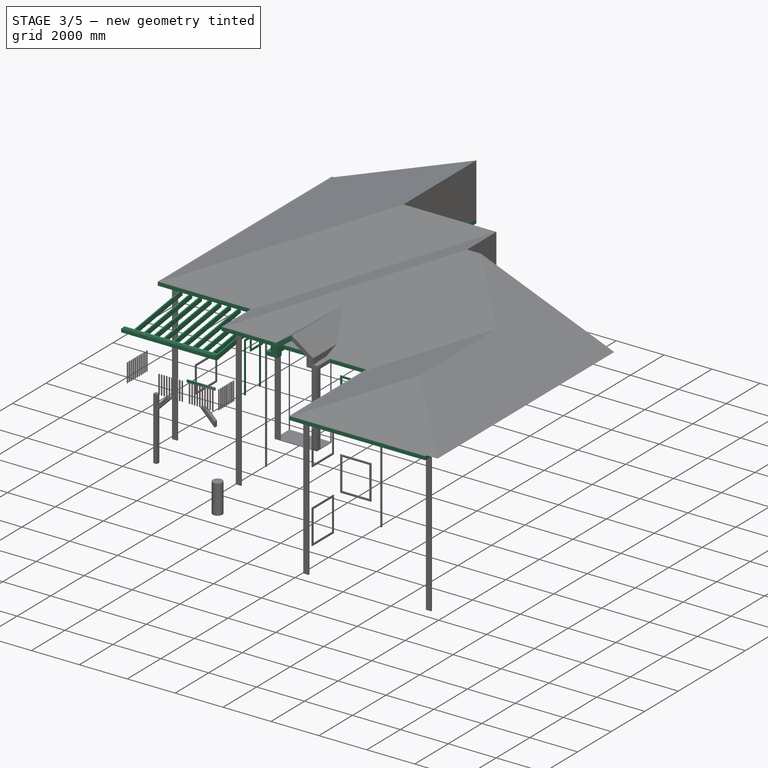
[diagram: stage 3 of 5 — iso view after this stage's code; geometry added in this stage tinted green]
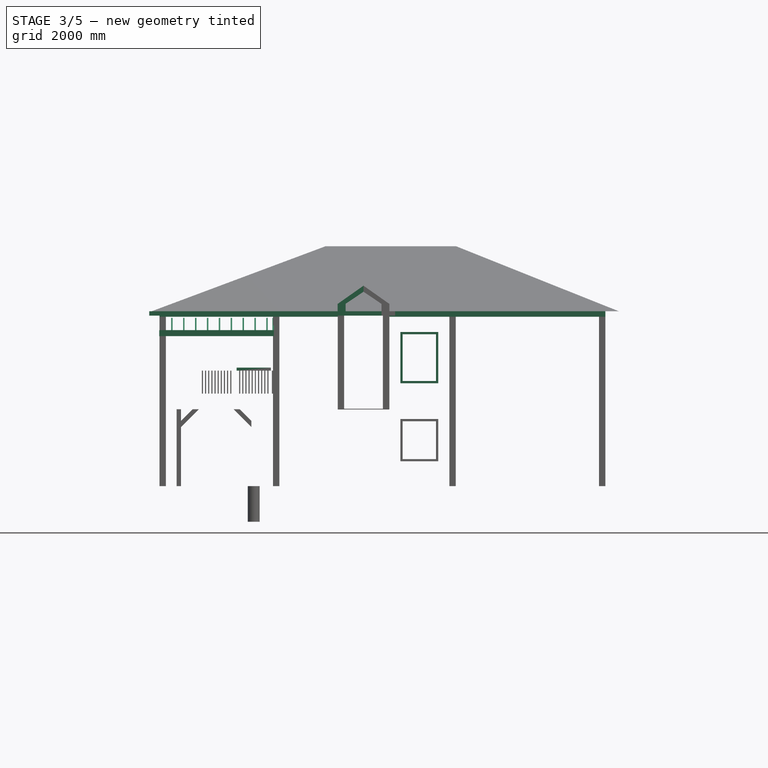
[diagram: stage 3 of 5 — front view after this stage's code; geometry added in this stage tinted green]
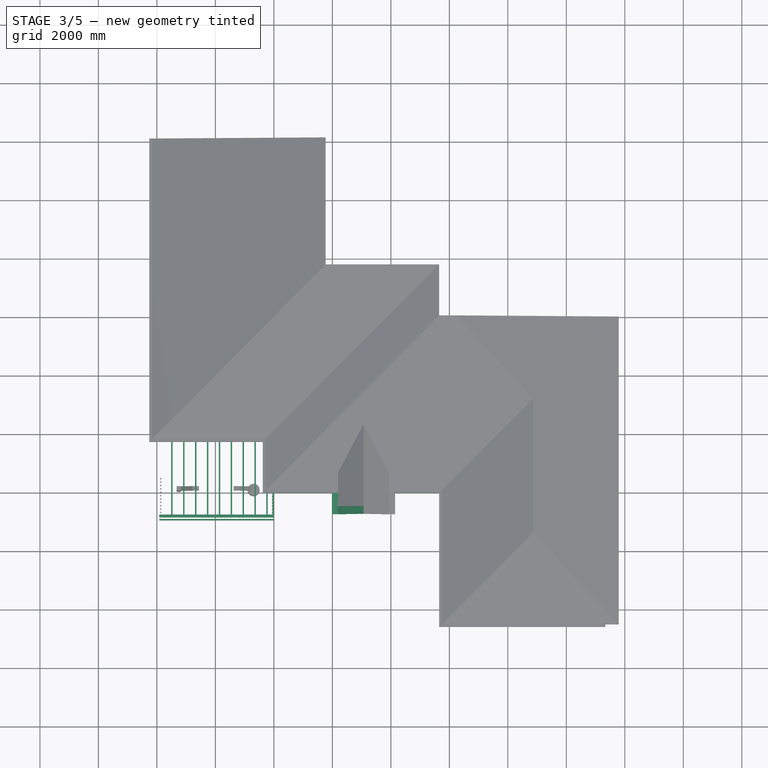
[diagram: stage 3 of 5 — top view after this stage's code; geometry added in this stage tinted green]
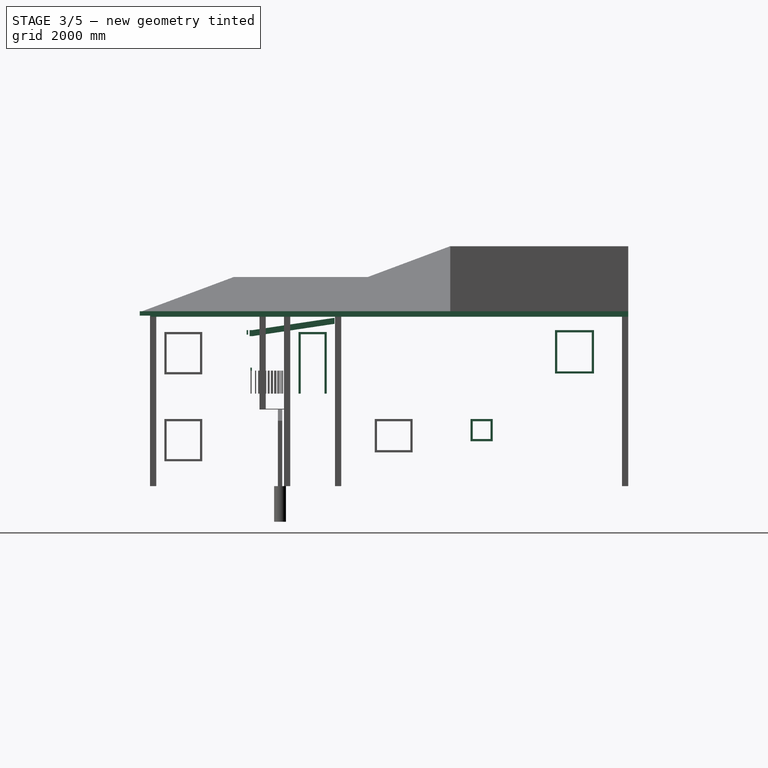
[diagram: stage 3 of 5 — right view after this stage's code; geometry added in this stage tinted green]
FEATURE [Part::Part2DObjectPython] DWire006  # Draft 2D object (typed FeaturePython)
  ChamferSize = 0
  Closed = true
  End = (-4260.9,-381,5829.3)
  FilletRadius = 0
  Length = 64598
  MakeFace = true
  Placement = pos=(0,0.000347453,5829.3) rot=(0,0,1;0rad)
  Points = (12) [(-4260.9,9994.34,0),(1771.65,9994.34,0),(1771.65,5651.55,0),(5651.55,5651.55,0),(5651.55,3907.28,0),(11334.3,3907.28,0),(11334.3,-6709.43,0),+5 more]
  Start = (-4260.9,9994.34,5829.3)
  Subdivisions = 0
FEATURE [Part::Part2DObjectPython] DWire011  # Draft 2D object (typed FeaturePython)
  ChamferSize = 0
  Closed = true
  End = (-3910.85,-30.9506,5829.3)
  FilletRadius = 0
  Length = 37411.9
  MakeFace = true
  Points = (12) [(-3910.85,9994.34,5829.3),(-3879.9,9994.34,5829.3),(-3879.9,0,5829.3),(0,-4.54747e-13,5829.3),(-4.54747e-13,-1744.27,5829.3),+7 more]
  Start = (-3910.85,9994.34,5829.3)
  Subdivisions = 0
FEATURE [Part::Part2DObjectPython] DWire012  # Draft 2D object (typed FeaturePython)
  ChamferSize = 0
  Closed = true
  End = (3947.35,-2585.67,5829.3)
  FilletRadius = 0
  Length = 25689.6
  MakeFace = true
  Points = (10) [(3915.09,-2585.67,5829.3),(3915.09,-1744.27,5829.3),(6031.71,-1744.27,5829.3),(6031.71,-6328.43,5829.3),(11334.3,-6328.43,5829.3),+5 more]
  Start = (3915.09,-2585.67,5829.3)
  Subdivisions = 0
FEATURE [Part::Part2DObjectPython] Rectangle007  # Draft 2D object (typed FeaturePython)
  ChamferSize = 0
  Columns = 1
  FilletRadius = 0
  Height = 30.2816
  Length = 217.814
  MakeFace = true
  Placement = pos=(2184.14,-2615.95,5791.15) rot=(0,0,1;0rad)
  Rows = 1
  Support = -> [Structure023]
FEATURE [Part::Part2DObjectPython] Rectangle008  # Draft 2D object (typed FeaturePython)
  ChamferSize = 0
  Columns = 1
  FilletRadius = 0
  Height = 30.2816
  Length = 217.814
  MakeFace = true
  Placement = pos=(3727.78,-2615.95,5791.15) rot=(0,0,1;0rad)
  Rows = 1
FEATURE [Part::Extrusion] Extrusion003
  Base = -> Rectangle008
  Dir = (0,0,38.15)
  DirMode = 0
  FaceMakerClass = Part::FaceMakerBullseye
  LengthFwd = 0
  LengthRev = 0
  Solid = true
  Symmetric = false
FEATURE [Part::FeaturePython] Structure027  label="Structure011"  # Arch/BIM object (typed FeaturePython)
  Additions = -> [Extrusion003]
  Base = -> DWire012
  FaceMaker = 0
  Height = 38.1
  HorizontalArea = 419917
  IfcAttributes = IfcUID=1MucQ6a5KHwBrE093rt3ko
  IfcRole = 25
  Length = 0
  MoveWithHost = false
  Nodes = (2) [(6815.72,-4510.02,5829.3),(6815.72,-4510.02,5791.2)]
  NodesOffset = 0
  Normal = (0,0,-1)
  PerimeterLength = 26124.8
  VerticalArea = 995378
  Width = 200
FEATURE [Part::Extrusion] Extrusion004
  Base = -> Rectangle007
  Dir = (0,0,38.15)
  DirMode = 0
  FaceMakerClass = Part::FaceMakerBullseye
  LengthFwd = 0
  LengthRev = 0
  Solid = true
  Symmetric = false
FEATURE [Part::FeaturePython] Structure026  label="Structure010"  # Arch/BIM object (typed FeaturePython)
  Additions = -> [Extrusion004]
  Base = -> DWire011
  FaceMaker = 0
  Height = 38.1
  HorizontalArea = 584598
  IfcAttributes = IfcUID=1Mu3eKa5KHwBrE093rt3ko
  IfcRole = 25
  Length = 0
  MoveWithHost = false
  Nodes = (2) [(-2268.81,2283.4,5829.3),(-2268.81,2283.4,5791.2)]
  NodesOffset = 0
  Normal = (0,0,-1)
  PerimeterLength = 37846.2
  VerticalArea = 1.44196e+06
  Width = 200
FEATURE [Part::Feature] Wire
  shape: bbox 15600 x 16700 x 2e-07 mm, 0 faces, 0 solids (baked)
FEATURE [Part::Part2DObjectPython] DWire013  # Draft 2D object (typed FeaturePython)
  ChamferSize = 0
  Closed = false
  End = (-3687.08,9994.34,5981.7)
  FilletRadius = 0
  Length = 31151.3
  MakeFace = true
  Points = (7) [(11334.3,-6135.61,5981.7),(6224.53,-6135.61,5981.7),(6224.53,-1551.45,5981.7),(192.822,-1551.45,5981.7),(192.822,192.822,5981.7),+2 more]
  Start = (11334.3,-6135.61,5981.7)
  Subdivisions = 0
FEATURE [Part::Part2DObjectPython] Line013  # Draft 2D object (typed FeaturePython)
  ChamferSize = 0
  Closed = false
  End = (1771.65,5651.55,5981.7)
  FilletRadius = 0
  Length = 7719.81
  MakeFace = true
  Points = (2) [(-3687.08,192.822,5981.7),(1771.65,5651.55,5981.7)]
  Start = (-3687.08,192.822,5981.7)
  Subdivisions = 0
FEATURE [Part::Part2DObjectPython] Line014  # Draft 2D object (typed FeaturePython)
  ChamferSize = 0
  Closed = false
  End = (5651.55,5651.55,5981.7)
  FilletRadius = 0
  Length = 7719.81
  MakeFace = true
  Points = (2) [(192.822,192.822,5981.7),(5651.55,5651.55,5981.7)]
  Start = (192.822,192.822,5981.7)
  Subdivisions = 0
FEATURE [Part::Part2DObjectPython] Line015  # Draft 2D object (typed FeaturePython)
  ChamferSize = 0
  Closed = false
  End = (5651.55,3907.28,5981.7)
  FilletRadius = 0
  Length = 7719.81
  MakeFace = true
  Points = (2) [(192.822,-1551.45,5981.7),(5651.55,3907.28,5981.7)]
  Start = (192.822,-1551.45,5981.7)
  Subdivisions = 0
FEATURE [Part::Part2DObjectPython] Line019  # Draft 2D object (typed FeaturePython)
  ChamferSize = 0
  Closed = false
  End = (8779.42,-3406.25,5981.7)
  FilletRadius = 0
  Length = 4408.4
  MakeFace = true
  Points = (2) [(11792.1,-6624.63,5981.7),(8779.42,-3406.25,5981.7)]
  Start = (11792.1,-6624.63,5981.7)
  Subdivisions = 0
FEATURE [Part::Part2DObjectPython] Line020  # Draft 2D object (typed FeaturePython)
  ChamferSize = 0
  Closed = false
  End = (8779.42,-3406.25,5981.7)
  FilletRadius = 0
  Length = 3738.57
  MakeFace = true
  Points = (2) [(6224.53,-6135.61,5981.7),(8779.42,-3406.25,5981.7)]
  Start = (6224.53,-6135.61,5981.7)
  Subdivisions = 0
FEATURE [Part::Part2DObjectPython] Line021  # Draft 2D object (typed FeaturePython)
  ChamferSize = 0
  Closed = false
  End = (8779.42,-3406.25,5981.7)
  FilletRadius = 0
  Length = 4584.16
  MakeFace = true
  Points = (2) [(8779.42,1177.91,5981.7),(8779.42,-3406.25,5981.7)]
  Start = (8779.42,1177.91,5981.7)
  Subdivisions = 0
FEATURE [Part::Part2DObjectPython] Line022  # Draft 2D object (typed FeaturePython)
  ChamferSize = 0
  Closed = false
  End = (8779.42,1177.91,5981.7)
  FilletRadius = 0
  Length = 3738.57
  MakeFace = true
  Placement = pos=(-2554.89,7313.53,0) rot=(0,0,1;0rad)
  Points = (2) [(8779.42,-3406.25,5981.7),(11334.3,-6135.61,5981.7)]
  Start = (6224.53,3907.28,5981.7)
  Subdivisions = 0
FEATURE [Part::Part2DObjectPython] Line023  # Draft 2D object (typed FeaturePython)
  ChamferSize = 0
  Closed = false
  End = (8779.42,1177.91,5981.7)
  FilletRadius = 0
  Length = 3738.57
  MakeFace = true
  Points = (2) [(6224.53,-1551.45,5981.7),(8779.42,1177.91,5981.7)]
  Start = (6224.53,-1551.45,5981.7)
  Subdivisions = 0
FEATURE [Part::Part2DObjectPython] Line025  # Draft 2D object (typed FeaturePython)
  ChamferSize = 0
  Closed = false
  End = (8779.42,1177.91,5981.7)
  FilletRadius = 0
  Length = 1203.32
  MakeFace = true
  Placement = pos=(0,1177.91,0) rot=(0,0,1;0rad)
  Points = (2) [(8779.42,0,7185.02),(8779.42,-2.27374e-13,5981.7)]
  Start = (8779.42,1177.91,7185.02)
  Subdivisions = 0
FEATURE [Part::Part2DObjectPython] Line029  # Draft 2D object (typed FeaturePython)
  ChamferSize = 0
  Closed = false
  End = (8779.42,1177.91,7185.02)
  FilletRadius = 0
  Length = 3875.34
  MakeFace = true
  Placement = pos=(-2554.89,7313.53,1203.32) rot=(0,0,1;0rad)
  Points = (2) [(8779.42,-3406.25,7002.19),(11334.3,-6135.61,5981.7)]
  Start = (6224.53,3907.28,8205.51)
  Subdivisions = 0
FEATURE [Part::Part2DObjectPython] Line036  # Draft 2D object (typed FeaturePython)
  ChamferSize = 0
  Closed = false
  End = (5651.55,3907.28,8205.51)
  FilletRadius = 0
  Length = 8700.38
  MakeFace = true
  Points = (2) [(-296.194,-2040.47,5981.7),(5651.55,3907.28,8205.51)]
  Start = (-296.194,-2040.47,5981.7)
  Subdivisions = 0
FEATURE [Part::Part2DObjectPython] Line038  # Draft 2D object (typed FeaturePython)
  ChamferSize = 0
  Closed = false
  End = (5651.55,5651.55,8205.51)
  FilletRadius = 0
  Length = 8700.38
  MakeFace = true
  Placement = pos=(0,1744.27,0) rot=(0,0,1;0rad)
  Points = (2) [(-296.194,-2040.47,5981.7),(5651.55,3907.28,8205.51)]
  Start = (-296.194,-296.194,5981.7)
  Subdivisions = 0
FEATURE [Part::Part2DObjectPython] Line040  # Draft 2D object (typed FeaturePython)
  ChamferSize = 0
  Closed = false
  End = (1771.65,5651.55,8205.51)
  FilletRadius = 0
  Length = 8700.38
  MakeFace = true
  Placement = pos=(-3879.9,1744.27,0) rot=(0,0,1;0rad)
  Points = (2) [(-296.194,-2040.47,5981.7),(5651.55,3907.28,8205.51)]
  Start = (-4176.09,-296.194,5981.7)
  Subdivisions = 0
FEATURE [Part::Part2DObjectPython] Line043  # Draft 2D object (typed FeaturePython)
  ChamferSize = 0
  Closed = false
  End = (1771.65,9994.34,5981.7)
  FilletRadius = 0
  Length = 2223.81
  MakeFace = true
  Placement = pos=(-3879.9,6087.06,0) rot=(0,0,1;0rad)
  Points = (2) [(5651.55,3907.28,8205.51),(5651.55,3907.28,5981.7)]
  Start = (1771.65,9994.34,8205.51)
  Subdivisions = 0
FEATURE [Part::Part2DObjectPython] Line045  # Draft 2D object (typed FeaturePython)
  ChamferSize = 0
  Closed = false
  End = (1771.65,9994.34,8205.51)
  FilletRadius = 0
  Length = 6349.88
  MakeFace = true
  Points = (2) [(-4176.09,9994.34,5981.7),(1771.65,9994.34,8205.51)]
  Start = (-4176.09,9994.34,5981.7)
  Subdivisions = 0
FEATURE [Part::Part2DObjectPython] DWire014  # Draft 2D object (typed FeaturePython)
  ChamferSize = 0
  Closed = false
  End = (1771.65,9994.34,5981.7)
  FilletRadius = 0
  Length = 16107.5
  MakeFace = true
  Points = (6) [(11792.1,3907.28,5981.7),(6224.53,3907.28,5981.7),(5651.55,3907.28,5981.7),(5651.55,5651.55,5981.7),(1771.65,5651.55,5981.7),(1771.65,9994.34,5981.7)]
  Start = (11792.1,3907.28,5981.7)
  Subdivisions = 0
FEATURE [Part::Feature] Solid
  shape: bbox 15020 x 16130 x 2407 mm, 14 faces (baked)
FEATURE [Part::Part2DObjectPython] Line048  # Draft 2D object (typed FeaturePython)
  ChamferSize = 0
  Closed = false
  End = (-3917.95,-3168.6,3162.3)
  FilletRadius = 0
  Length = 3130.6
  MakeFace = true
  Points = (2) [(-3917.95,-38,3162.3),(-3917.95,-3168.6,3162.3)]
  Start = (-3917.95,-38,3162.3)
  Subdivisions = 0
FEATURE [Part::Part2DObjectPython] Line049  # Draft 2D object (typed FeaturePython)
  ChamferSize = 0
  Closed = false
  End = (-3917.95,-3168.6,5162.3)
  FilletRadius = 0
  Length = 3130.6
  MakeFace = true
  Points = (2) [(-3917.95,-38,5162.3),(-3917.95,-3168.6,5162.3)]
  Start = (-3917.95,-38,5162.3)
  Subdivisions = 0
FEATURE [Part::Part2DObjectPython] _x8in  label="2x8in"  # Draft 2D object (typed FeaturePython)
  Height = 203.2
  Width = 50.8
FEATURE [App::MaterialObjectPython] Material003  label="2x8 treated wood"  # material (typed FeaturePython)
  Description = 2x8 treated wood
  Material = Color=(1.0, 0.6666666666666666, 0.4980392156862745),Description=2x8 treated wood,DiffuseColor=(1.0, 0.6666666865348816, 0.49803921580314636),+4 more (map truncated)
  Transparency = 0
FEATURE [Part::FeaturePython] Structure029  label="New 2x8 ledger002"  # Arch/BIM object (typed FeaturePython)
  Base = -> _x8in
  FaceMaker = 0
  Height = 3917.95
  HorizontalArea = 199032
  IfcAttributes = IfcUID=1MSP$ma5KHwBrE093rt3ko
  IfcRole = 8
  Length = 0
  Material = -> Material003
  MoveWithHost = false
  Nodes = (2) [(-6.93889e-16,-5.95849e-15,0),(-6.93889e-16,-5.95849e-15,-3917.95)]
  NodesOffset = 0
  Normal = (0,0,-1)
  PerimeterLength = 7937.5
  Placement = pos=(-3917.95,-25.4,5655.14) rot=(0.57735,-0.57735,-0.57735;2.0944rad)
  Profile = 2x8in
  VerticalArea = 1.6129e+06
  Width = 200
FEATURE [Part::Part2DObjectPython] Line053  # Draft 2D object (typed FeaturePython)
  ChamferSize = 0
  Closed = false
  End = (-3917.95,3468.57,6275.7)
  FilletRadius = 0
  Length = 8026.99
  MakeFace = true
  Points = (2) [(-3917.95,-4471.75,5099.34),(-3917.95,3468.57,6275.7)]
  Start = (-3917.95,-4471.75,5099.34)
  Subdivisions = 0
FEATURE [Part::Part2DObjectPython] Line054  # Draft 2D object (typed FeaturePython)
  ChamferSize = 0
  Closed = false
  End = (-3917.95,3498.35,6074.7)
  FilletRadius = 0
  Length = 8026.99
  MakeFace = true
  Points = (2) [(-3917.95,-4441.97,4898.33),(-3917.95,3498.35,6074.7)]
  Start = (-3917.95,-4441.97,4898.33)
  Subdivisions = 0
FEATURE [Part::Part2DObjectPython] DWire015  # Draft 2D object (typed FeaturePython)
  ChamferSize = 0
  Closed = true
  End = (-3917.95,-50.8,5550.78)
  FilletRadius = 0
  Length = 6073.97
  MakeFace = true
  Points = (4) [(-3917.95,-50.8,5756.2),(-3917.95,-2851.05,5336.22),(-3917.95,-2851.05,5130.8),(-3917.95,-50.8,5550.78)]
  Start = (-3917.95,-50.8,5756.2)
  Subdivisions = 0
FEATURE [Part::FeaturePython] Structure033  label="New 2x8 ledger001"  # Arch/BIM object (typed FeaturePython)
  CloneOf = -> Structure029
  FaceMaker = 0
  Height = 3917.95
  HorizontalArea = 199032
  IfcAttributes = IfcUID=1MSIJQa5KHwBrE093rt3ko
  IfcRole = 8
  Length = 0
  Material = -> Material003
  MoveWithHost = false
  Nodes = (2) [(-6.93889e-16,-5.95849e-15,0),(-6.93889e-16,-5.95849e-15,-3917.95)]
  NodesOffset = 0
  Normal = (0,0,0)
  PerimeterLength = 7937.5
  Placement = pos=(-3917.95,-2876.45,5232.4) rot=(0.57735,-0.57735,-0.57735;2.0944rad)
  VerticalArea = 1.6129e+06
  Width = 200
FEATURE [Part::FeaturePython] Structure034  label="New 2x8 ledger"  # Arch/BIM object (typed FeaturePython)
  CloneOf = -> Structure029
  FaceMaker = 0
  Height = 3917.95
  HorizontalArea = 199032
  IfcAttributes = IfcUID=1MS3tqa5KHwBrE093rt3ko
  IfcRole = 8
  Length = 0
  Material = -> Material003
  MoveWithHost = false
  Nodes = (2) [(-6.93889e-16,-5.95849e-15,0),(-6.93889e-16,-5.95849e-15,-3917.95)]
  NodesOffset = 0
  Normal = (0,0,0)
  PerimeterLength = 7937.5
  Placement = pos=(-3917.95,-2927.25,5232.4) rot=(0.57735,-0.57735,-0.57735;2.0944rad)
  VerticalArea = 1.6129e+06
  Width = 200
FEATURE [Part::FeaturePython] Structure035  label="2x8 roof joist"  # Arch/BIM object (typed FeaturePython)
  Base = -> DWire015
  FaceMaker = 0
  Height = 50.8
  HorizontalArea = 142253
  IfcAttributes = IfcUID=1MSz76a5KHwBrE093rt3ko
  IfcRole = 8
  Length = 0
  Material = -> Material003
  MoveWithHost = false
  Nodes = (2) [(-3917.95,-1450.92,5443.5),(-3917.95,-1450.92,5392.7)]
  NodesOffset = 0
  Normal = (0,0,0)
  PerimeterLength = 5651.3
  VerticalArea = 1.17131e+06
  Width = 200
FEATURE [Part::FeaturePython] Structure036  label="2x8 roof joist001"  # Arch/BIM object (typed FeaturePython)
  CloneOf = -> Structure035
  FaceMaker = 0
  Height = 50.8
  HorizontalArea = 142253
  IfcAttributes = IfcUID=1MSXRia5KHwBrE093rt3ko
  IfcRole = 8
  Length = 0
  Material = -> Material003
  MoveWithHost = false
  Nodes = (2) [(-3917.95,-1450.92,5443.5),(-3917.95,-1450.92,5392.7)]
  NodesOffset = 0
  Normal = (0,0,0)
  PerimeterLength = 5651.3
  Placement = pos=(406.4,0,0) rot=(0,0,1;0rad)
  VerticalArea = 1.17131e+06
  Width = 200
FEATURE [Part::FeaturePython] Structure037  label="2x8 roof joist002"  # Arch/BIM object (typed FeaturePython)
  CloneOf = -> Structure035
  FaceMaker = 0
  Height = 50.8
  HorizontalArea = 142253
  IfcAttributes = IfcUID=1MTctma5KHwBrE093rt3ko
  IfcRole = 8
  Length = 0
  Material = -> Material003
  MoveWithHost = false
  Nodes = (2) [(-3917.95,-1450.92,5443.5),(-3917.95,-1450.92,5392.7)]
  NodesOffset = 0
  Normal = (0,0,0)
  PerimeterLength = 5651.3
  Placement = pos=(812.8,0,0) rot=(0,0,1;0rad)
  VerticalArea = 1.17131e+06
  Width = 200
FEATURE [Part::FeaturePython] Structure038  label="2x8 roof joist003"  # Arch/BIM object (typed FeaturePython)
  CloneOf = -> Structure035
  FaceMaker = 0
  Height = 50.8
  HorizontalArea = 142253
  IfcAttributes = IfcUID=1MTWE8a5KHwBrE093rt3ko
  IfcRole = 8
  Length = 0
  Material = -> Material003
  MoveWithHost = false
  Nodes = (2) [(-3917.95,-1450.92,5443.5),(-3917.95,-1450.92,5392.7)]
  NodesOffset = 0
  Normal = (0,0,0)
  PerimeterLength = 5651.3
  Placement = pos=(1219.2,1e-12,0) rot=(0,0,1;0rad)
  VerticalArea = 1.17131e+06
  Width = 200
FEATURE [Part::FeaturePython] Structure039  label="2x8 roof joist004"  # Arch/BIM object (typed FeaturePython)
  CloneOf = -> Structure035
  FaceMaker = 0
  Height = 50.8
  HorizontalArea = 142253
  IfcAttributes = IfcUID=1MTPZQa5KHwBrE093rt3ko
  IfcRole = 8
  Length = 0
  Material = -> Material003
  MoveWithHost = false
  Nodes = (2) [(-3917.95,-1450.92,5443.5),(-3917.95,-1450.92,5392.7)]
  NodesOffset = 0
  Normal = (0,0,0)
  PerimeterLength = 5651.3
  Placement = pos=(1625.6,1e-12,0) rot=(0,0,1;0rad)
  VerticalArea = 1.17131e+06
  Width = 200
FEATURE [Part::FeaturePython] Structure040  label="2x8 roof joist005"  # Arch/BIM object (typed FeaturePython)
  CloneOf = -> Structure035
  FaceMaker = 0
  Height = 50.8
  HorizontalArea = 142253
  IfcAttributes = IfcUID=1MT55ka5KHwBrE093rt3ko
  IfcRole = 8
  Length = 0
  Material = -> Material003
  MoveWithHost = false
  Nodes = (2) [(-3917.95,-1450.92,5443.5),(-3917.95,-1450.92,5392.7)]
  NodesOffset = 0
  Normal = (0,0,0)
  PerimeterLength = 5651.3
  Placement = pos=(2032,2e-12,0) rot=(0,0,1;0rad)
  VerticalArea = 1.17131e+06
  Width = 200
FEATURE [Part::FeaturePython] Structure041  label="2x8 roof joist006"  # Arch/BIM object (typed FeaturePython)
  CloneOf = -> Structure035
  FaceMaker = 0
  Height = 50.8
  HorizontalArea = 142253
  IfcAttributes = IfcUID=1MTC8Ca5KHwBrE093rt3ko
  IfcRole = 8
  Length = 0
  Material = -> Material003
  MoveWithHost = false
  Nodes = (2) [(-3917.95,-1450.92,5443.5),(-3917.95,-1450.92,5392.7)]
  NodesOffset = 0
  Normal = (0,0,0)
  PerimeterLength = 5651.3
  Placement = pos=(2438.4,2e-12,0) rot=(0,0,1;0rad)
  VerticalArea = 1.17131e+06
  Width = 200
FEATURE [Part::FeaturePython] Structure042  label="2x8 roof joist007"  # Arch/BIM object (typed FeaturePython)
  CloneOf = -> Structure035
  FaceMaker = 0
  Height = 50.8
  HorizontalArea = 142253
  IfcAttributes = IfcUID=1MSs6Ca5KHwBrE093rt3ko
  IfcRole = 8
  Length = 0
  Material = -> Material003
  MoveWithHost = false
  Nodes = (2) [(-3917.95,-1450.92,5443.5),(-3917.95,-1450.92,5392.7)]
  NodesOffset = 0
  Normal = (0,0,0)
  PerimeterLength = 5651.3
  Placement = pos=(2844.8,3e-12,0) rot=(0,0,1;0rad)
  VerticalArea = 1.17131e+06
  Width = 200
FEATURE [Part::FeaturePython] Structure043  label="2x8 roof joist008"  # Arch/BIM object (typed FeaturePython)
  CloneOf = -> Structure035
  FaceMaker = 0
  Height = 50.8
  HorizontalArea = 142253
  IfcAttributes = IfcUID=1MSlQia5KHwBrE093rt3ko
  IfcRole = 8
  Length = 0
  Material = -> Material003
  MoveWithHost = false
  Nodes = (2) [(-3917.95,-1450.92,5443.5),(-3917.95,-1450.92,5392.7)]
  NodesOffset = 0
  Normal = (0,0,0)
  PerimeterLength = 5651.3
  Placement = pos=(3251.2,3e-12,0) rot=(0,0,1;0rad)
  VerticalArea = 1.17131e+06
  Width = 200
FEATURE [Part::FeaturePython] Structure044  label="2x8 roof joist009"  # Arch/BIM object (typed FeaturePython)
  CloneOf = -> Structure035
  FaceMaker = 0
  Height = 50.8
  HorizontalArea = 142253
  IfcAttributes = IfcUID=1MTImQa5KHwBrE093rt3ko
  IfcRole = 8
  Length = 0
  Material = -> Material003
  MoveWithHost = false
  Nodes = (2) [(-3917.95,-1450.92,5443.5),(-3917.95,-1450.92,5392.7)]
  NodesOffset = 0
  Normal = (0,0,0)
  PerimeterLength = 5651.3
  Placement = pos=(3657.6,4e-12,0) rot=(0,0,1;0rad)
  VerticalArea = 1.17131e+06
  Width = 200
FEATURE [Part::FeaturePython] Structure045  label="2x8 roof joist010"  # Arch/BIM object (typed FeaturePython)
  CloneOf = -> Structure035
  FaceMaker = 0
  Height = 50.8
  HorizontalArea = 142253
  IfcAttributes = IfcUID=1MTkfGa5KHwBrE093rt3ko
  IfcRole = 8
  Length = 0
  Material = -> Material003
  MoveWithHost = false
  Nodes = (2) [(-3917.95,-1450.92,5443.5),(-3917.95,-1450.92,5392.7)]
  NodesOffset = 0
  Normal = (0,0,0)
  PerimeterLength = 5651.3
  Placement = pos=(3867.15,0,0) rot=(0,0,1;0rad)
  VerticalArea = 1.17131e+06
  Width = 200
FEATURE [Part::FeaturePython] Structure054  label="Handrail006"  # Arch/BIM object (typed FeaturePython)
  Base = -> Rectangle011
  FaceMaker = 0
  Height = 1171.58
  HorizontalArea = 59516.3
  IfcAttributes = IfcUID=1MRUs8a5KHwBrE093rt3ko
  IfcRole = 107
  Length = 0
  Material = -> Material
  MoveWithHost = false
  Nodes = (2) [(3854.45,-2901.85,-4121.15),(3854.45,-2901.85,-5292.73)]
  NodesOffset = 0
  Normal = (0,0,0)
  PerimeterLength = 2444.76
  Placement = pos=(-965.3,-6756.3,-69.85) rot=(0,0,-1;1.5708rad)
  VerticalArea = 248388
  Width = 200
FEATURE [Part::Part2DObjectPython] _x6in  label="2x6in"  # Draft 2D object (typed FeaturePython)
  Height = 152.4
  Width = 50.8
FEATURE [App::MaterialObjectPython] Material005  label="2x6 treated wood"  # material (typed FeaturePython)
  Description = 2x6 treated wood
  Material = Color=(1.0, 0.6666666666666666, 0.4980392156862745),Description=2x6 treated wood,DiffuseColor=(1.0, 0.6666666865348816, 0.49803921580314636),+4 more (map truncated)
  Transparency = 0
FEATURE [Part::FeaturePython] Structure058  label="New 2x6 headers001"  # Arch/BIM object (typed FeaturePython)
  Base = -> _x6in
  FaceMaker = 0
  Height = 3917.95
  HorizontalArea = 199032
  IfcAttributes = IfcUID=1MRyrga5KHwBrE093rt3ko
  IfcRole = 8
  Length = 0
  Material = -> Material005
  MoveWithHost = false
  Nodes = (2) [(-6.93889e-16,-1.31478e-15,0),(-6.93889e-16,-1.31478e-15,3917.95)]
  NodesOffset = 0
  Normal = (0,0,0)
  PerimeterLength = 7937.5
  Placement = pos=(-3917.95,-2978.05,5257.8) rot=(0.57735,0.57735,0.57735;2.0944rad)
  Profile = 2x6in
  VerticalArea = 1.20967e+06
  Width = 200
FEATURE [Part::FeaturePython] Structure059  label="New 2x6 headers"  # Arch/BIM object (typed FeaturePython)
  CloneOf = -> Structure058
  FaceMaker = 0
  Height = 3917.95
  HorizontalArea = 199032
  IfcAttributes = IfcUID=1MRknMa5KHwBrE093rt3ko
  IfcRole = 8
  Length = 0
  Material = -> Material005
  MoveWithHost = false
  Nodes = (2) [(-6.93889e-16,-1.31478e-15,0),(-6.93889e-16,-1.31478e-15,3917.95)]
  NodesOffset = 0
  Normal = (0,0,0)
  PerimeterLength = 7937.5
  Placement = pos=(-3917.95,-3028.85,5257.8) rot=(0.57735,0.57735,0.57735;2.0944rad)
  VerticalArea = 1.20967e+06
  Width = 200
FEATURE [Part::FeaturePython] Clone002  label="Offset2D010"  # Draft clone (typed FeaturePython)
  AttacherType = Attacher::AttachEngine3D
  Fuse = false
  Objects = -> [Clone]
  Placement = pos=(2544.23,13.1538,0) rot=(0,0,1;0rad)
  Scale = (1,1,1)
FEATURE [Part::FeaturePython] Clone003  label="Offset2D011"  # Draft clone (typed FeaturePython)
  AttacherType = Attacher::AttachEngine3D
  Fuse = false
  Objects = -> [Clone001]
  Placement = pos=(2544.23,13.1538,0) rot=(0,0,1;0rad)
  Scale = (1,1,1)
FEATURE [Part::FeaturePython] Structure065  label="Handrail011"  # Arch/BIM object (typed FeaturePython)
  CloneOf = -> Structure054
  FaceMaker = 0
  Height = 1171.58
  HorizontalArea = 59516.3
  IfcAttributes = IfcUID=1MRO4ia5KHwBrE093rt3ko
  IfcRole = 107
  Length = 0
  Material = -> Material
  MoveWithHost = false
  Nodes = (2) [(3854.45,-2901.85,-4121.15),(3854.45,-2901.85,-5292.73)]
  NodesOffset = 0
  Normal = (0,0,0)
  PerimeterLength = 2444.76
  Placement = pos=(1578.93,-6756.3,-69.85) rot=(0,0,-1;1.5708rad)
  VerticalArea = 248388
  Width = 200
FEATURE [Part::Part2DObjectPython] DWire023  # Draft 2D object (typed FeaturePython)
  ChamferSize = 0
  Closed = false
  End = (0,-1203.85,3162.3)
  FilletRadius = 0
  Length = 4876.8
  MakeFace = true
  Points = (4) [(-4.79017e-14,-391.05,3162.3),(-4.79017e-14,-391.05,5194.3),(-4.79017e-14,-1203.85,5194.3),(-4.79017e-14,-1203.85,3162.3)]
  Start = (0,-391.05,3162.3)
  Subdivisions = 0
  Support = -> [Wall]
FEATURE [Part::Offset2D] Offset2D010  label="Offset2D014"
  Fill = true
  Intersection = false
  Join = 2
  Mode = 0
  SelfIntersection = false
  Source = -> DWire023
  Value = 76.2
FEATURE [Part::Extrusion] Extrusion006
  Base = -> Offset2D010
  Dir = (-30.9506,0,0)
  DirMode = 0
  FaceMakerClass = Part::FaceMakerBullseye
  LengthFwd = 0
  LengthRev = 0
  Solid = true
  Symmetric = false
FEATURE [Part::Part2DObjectPython] Rectangle018  # Draft 2D object (typed FeaturePython)
  ChamferSize = 0
  Columns = 1
  FilletRadius = 0
  Height = 1600.2
  Length = 1143
  MakeFace = true
  Placement = pos=(705.859,-1744.27,3632.2) rot=(1,0,0;1.5708rad)
  Rows = 1
FEATURE [Part::Part2DObjectPython] Rectangle019  # Draft 2D object (typed FeaturePython)
  ChamferSize = 0
  Columns = 1
  FilletRadius = 0
  Height = 1752.6
  Length = 1295.4
  MakeFace = true
  Placement = pos=(629.659,-1744.27,3556) rot=(1,0,0;1.5708rad)
  Rows = 1
FEATURE [Part::Cut] Cut
  Base = -> Rectangle019
  Refine = true
  Tool = -> Rectangle018
FEATURE [Part::Extrusion] Extrusion007
  Base = -> Cut
  Dir = (0,-30.9506,0)
  DirMode = 0
  FaceMakerClass = Part::FaceMakerBullseye
  LengthFwd = 0
  LengthRev = 0
  Placement = pos=(-91.8586,0,-38.1) rot=(0,0,1;0rad)
  Solid = true
  Symmetric = false
FEATURE [Part::FeaturePython] Clone004  label="Extrusion008"  # Draft clone (typed FeaturePython)
  AttacherType = Attacher::AttachEngine3D
  Fuse = false
  Objects = -> [Extrusion007]
  Placement = pos=(3695.82,0,-38.1) rot=(0,0,1;0rad)
  Scale = (1,1,1)
FEATURE [Part::FeaturePython] Clone005  label="Extrusion010"  # Draft clone (typed FeaturePython)
  AttacherType = Attacher::AttachEngine3D
  Fuse = false
  Objects = -> [Extrusion008]
  Placement = pos=(0,6200.77,0) rot=(0,0,1;0rad)
  Scale = (1,1,1)
FEATURE [Part::FeaturePython] Clone012  label="Extrusion020"  # Draft clone (typed FeaturePython)
  AttacherType = Attacher::AttachEngine3D
  Fuse = false
  Objects = -> [Extrusion011]
  Placement = pos=(0,0,1611.68) rot=(0,0,1;0rad)
  Scale = (1,1,1)
FEATURE [Part::FeaturePython] Structure025  label="Structure009"  # Arch/BIM object (typed FeaturePython)
  Additions = -> [mirror001,Extrusion014,Extrusion013,mirror]
  Base = -> DWire006
  FaceMaker = 0
  Height = 152.4
  HorizontalArea = 1.56854e+08
  IfcAttributes = IfcUID=1Ms9vEa5KHwBrE093rt3ko
  IfcRole = 25
  Length = 0
  MoveWithHost = false
  Nodes = (2) [(3500.84,1688.16,5829.3),(3500.84,1688.16,5981.7)]
  NodesOffset = 0
  Normal = (0,0,1)
  PerimeterLength = 64598
  VerticalArea = 9.84473e+06
  Width = 200
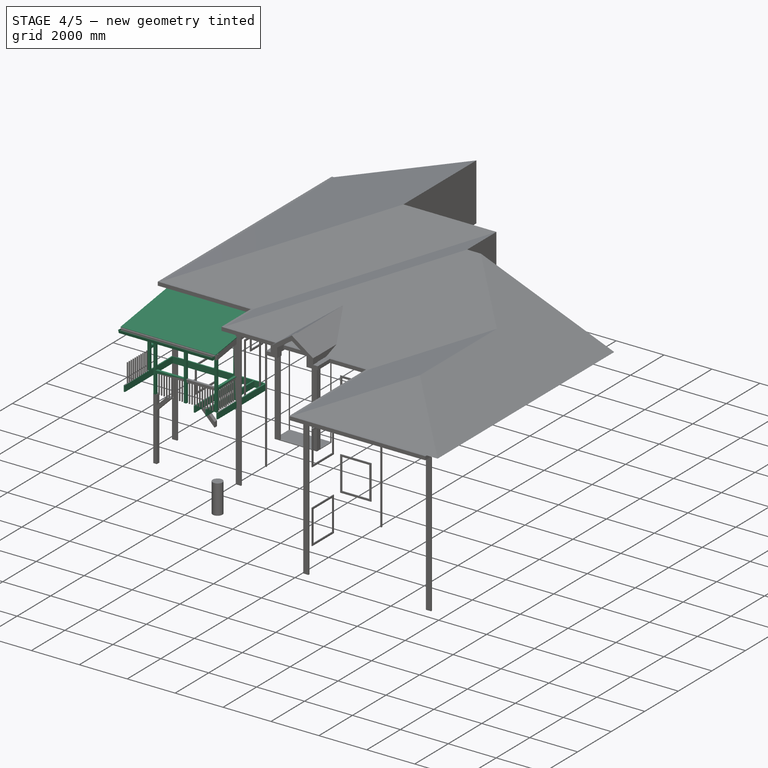
[diagram: stage 4 of 5 — iso view after this stage's code; geometry added in this stage tinted green]
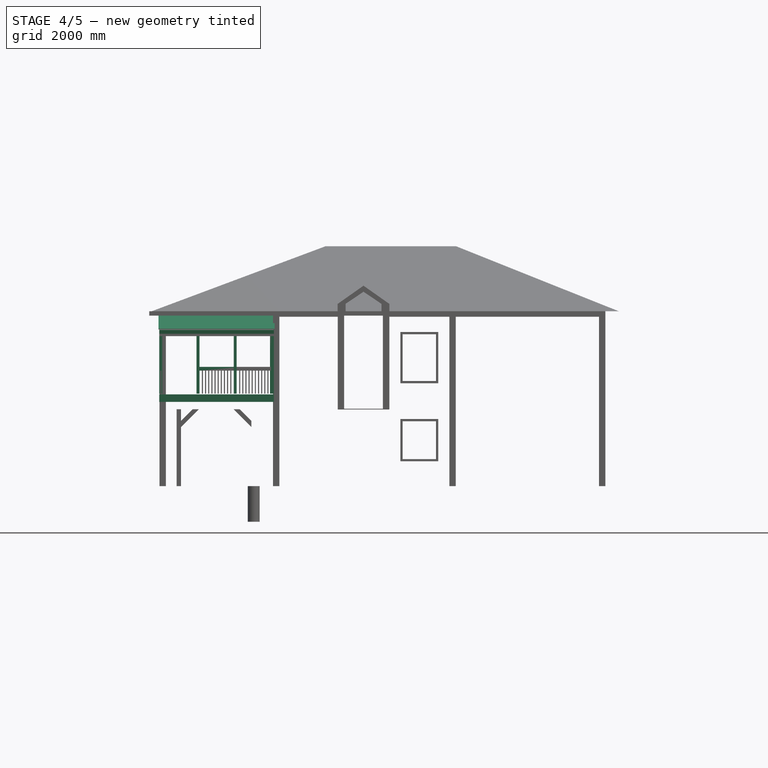
[diagram: stage 4 of 5 — front view after this stage's code; geometry added in this stage tinted green]
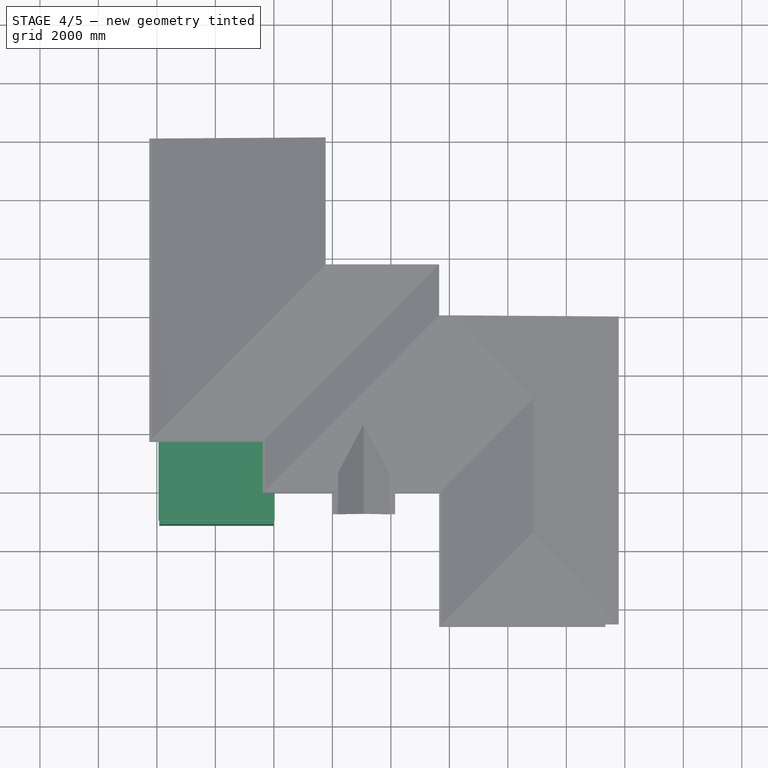
[diagram: stage 4 of 5 — top view after this stage's code; geometry added in this stage tinted green]
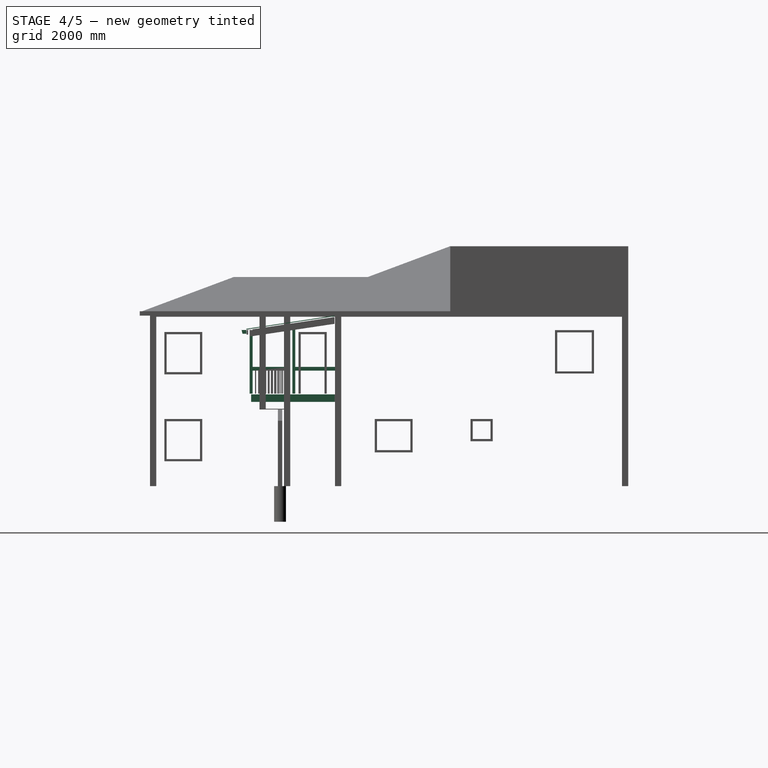
[diagram: stage 4 of 5 — right view after this stage's code; geometry added in this stage tinted green]
FEATURE [Part::FeaturePython] Structure005  label="Existing 2x10 floor joist007"  # Arch/BIM object (typed FeaturePython)
  Base = -> _x10in
  FaceMaker = 0
  Height = 2851.15
  HorizontalArea = 144838
  IfcAttributes = IfcUID=1MVhjea5KHwBrE093rt3ko
  IfcRole = 8
  Length = 0
  Material = -> Material001
  MoveWithHost = false
  Nodes = (2) [(-6.93889e-16,1.67845e-15,0),(-6.93889e-16,1.67845e-15,2851.15)]
  NodesOffset = 0
  Normal = (0,0,0)
  PerimeterLength = 5803.9
  Placement = pos=(-3394.91,-50.8,3009.9) rot=(1,0,0;1.5708rad)
  Profile = 2x10in
  VerticalArea = 1.47419e+06
  Width = 174.625
FEATURE [Part::FeaturePython] Structure010  label="Existing 2x10 floor joist004"  # Arch/BIM object (typed FeaturePython)
  CloneOf = -> Structure005
  FaceMaker = 0
  Height = 2851.15
  HorizontalArea = 144838
  IfcAttributes = IfcUID=1MV9mWa5KHwBrE093rt3ko
  IfcRole = 8
  Length = 0
  Material = -> Material001
  MoveWithHost = false
  Nodes = (2) [(-6.93889e-16,1.67845e-15,0),(-6.93889e-16,1.67845e-15,2851.15)]
  NodesOffset = 0
  Normal = (0,0,0)
  PerimeterLength = 5803.9
  Placement = pos=(-969.975,-50.8,3009.9) rot=(1,0,0;1.5708rad)
  VerticalArea = 1.47419e+06
  Width = 174.625
FEATURE [Part::FeaturePython] Structure011  label="Existing 2x10 floor joist005"  # Arch/BIM object (typed FeaturePython)
  CloneOf = -> Structure005
  FaceMaker = 0
  Height = 2851.15
  HorizontalArea = 144838
  IfcAttributes = IfcUID=1MV1c0a5KHwBrE093rt3ko
  IfcRole = 8
  Length = 0
  Material = -> Material001
  MoveWithHost = false
  Nodes = (2) [(-6.93889e-16,1.67845e-15,0),(-6.93889e-16,1.67845e-15,2851.15)]
  NodesOffset = 0
  Normal = (0,0,0)
  PerimeterLength = 5803.9
  Placement = pos=(-484.987,-50.8,3009.9) rot=(1,0,0;1.5708rad)
  VerticalArea = 1.47419e+06
  Width = 174.625
FEATURE [Part::FeaturePython] Structure012  label="Existing 2x10 floor joist"  # Arch/BIM object (typed FeaturePython)
  CloneOf = -> Structure005
  FaceMaker = 0
  Height = 2851.15
  HorizontalArea = 144838
  IfcAttributes = IfcUID=1MUonQa5KHwBrE093rt3ko
  IfcRole = 8
  Length = 0
  Material = -> Material001
  MoveWithHost = false
  Nodes = (2) [(-6.93889e-16,1.67845e-15,0),(-6.93889e-16,1.67845e-15,2851.15)]
  NodesOffset = 0
  Normal = (0,0,0)
  PerimeterLength = 5803.9
  Placement = pos=(-25.4,-50.8,3009.9) rot=(1,0,0;1.5708rad)
  VerticalArea = 1.47419e+06
  Width = 174.625
FEATURE [Part::FeaturePython] Structure013  label="Existing 2x10 floor joist003"  # Arch/BIM object (typed FeaturePython)
  CloneOf = -> Structure005
  FaceMaker = 0
  Height = 2851.15
  HorizontalArea = 144838
  IfcAttributes = IfcUID=1MVqR8a5KHwBrE093rt3ko
  IfcRole = 8
  Length = 0
  Material = -> Material001
  MoveWithHost = false
  Nodes = (2) [(-6.93889e-16,1.67845e-15,0),(-6.93889e-16,1.67845e-15,2851.15)]
  NodesOffset = 0
  Normal = (0,0,0)
  PerimeterLength = 5803.9
  Placement = pos=(-3892.55,-50.8,3009.9) rot=(1,0,0;1.5708rad)
  VerticalArea = 1.47419e+06
  Width = 174.625
FEATURE [Part::FeaturePython] Structure014  label="Existing 2x10 floor joist006"  # Arch/BIM object (typed FeaturePython)
  Base = -> _x10in
  FaceMaker = 0
  Height = 3917.95
  HorizontalArea = 199032
  IfcAttributes = IfcUID=1MVxaKa5KHwBrE093rt3ko
  IfcRole = 8
  Length = 0
  Material = -> Material001
  MoveWithHost = false
  Nodes = (2) [(-6.93889e-16,1.67845e-15,0),(-6.93889e-16,1.67845e-15,3917.95)]
  NodesOffset = 0
  Normal = (0,0,0)
  PerimeterLength = 7937.5
  Placement = pos=(-1e-12,-2927.25,3009.9) rot=(0.57735,-0.57735,-0.57735;2.0944rad)
  Profile = 2x10in
  VerticalArea = 2.01612e+06
  Width = 200
FEATURE [Part::FeaturePython] Structure015  label="Existing 2x10 floor joist002"  # Arch/BIM object (typed FeaturePython)
  CloneOf = -> Structure014
  FaceMaker = 0
  Height = 3917.95
  HorizontalArea = 199032
  IfcAttributes = IfcUID=1MW6s2a5KHwBrE093rt3ko
  IfcRole = 8
  Length = 0
  Material = -> Material001
  MoveWithHost = false
  Nodes = (2) [(-6.93889e-16,1.67845e-15,0),(-6.93889e-16,1.67845e-15,3917.95)]
  NodesOffset = 0
  Normal = (0,0,0)
  PerimeterLength = 7937.5
  Placement = pos=(0,-25.4,3009.9) rot=(0.57735,-0.57735,-0.57735;2.0944rad)
  VerticalArea = 2.01612e+06
  Width = 200
FEATURE [Part::Part2DObjectPython] _x4in  label="4x4in"  # Draft 2D object (typed FeaturePython)
  Height = 101.6
  Width = 101.6
FEATURE [App::MaterialObjectPython] Material004  label="4x4 treated wood"  # material (typed FeaturePython)
  Description = 4x4 treated wood
  Material = Color=(1.0, 0.6666666666666666, 0.4980392156862745),Description=4x4 treated wood,DiffuseColor=(1.0, 0.6666666865348816, 0.49803921580314636),+4 more (map truncated)
  Transparency = 0
FEATURE [Part::FeaturePython] Structure030  label="4x4 column"  # Arch/BIM object (typed FeaturePython)
  Base = -> _x4in
  FaceMaker = 0
  Height = 1968.5
  HorizontalArea = 10322.6
  IfcAttributes = IfcUID=1MNHq0a5KHwBrE093rt3ko
  IfcRole = 25
  Length = 0
  Material = -> Material004
  MoveWithHost = false
  Nodes = (2) [(2.35922e-15,-2.97924e-15,0),(2.35922e-15,-2.97924e-15,1968.5)]
  NodesOffset = 0
  Normal = (0,0,0)
  PerimeterLength = 406.4
  Placement = pos=(-3867.15,-2901.85,3162.3) rot=(0,1,0;0rad)
  Profile = 4x4in
  VerticalArea = 799998
  Width = 200
FEATURE [Part::FeaturePython] Structure031  label="4x4 column001"  # Arch/BIM object (typed FeaturePython)
  CloneOf = -> Structure030
  FaceMaker = 0
  Height = 1968.5
  HorizontalArea = 10322.6
  IfcAttributes = IfcUID=1MNOyaa5KHwBrE093rt3ko
  IfcRole = 25
  Length = 0
  Material = -> Material004
  MoveWithHost = false
  Nodes = (2) [(2.35922e-15,-2.97924e-15,0),(2.35922e-15,-2.97924e-15,1968.5)]
  NodesOffset = 0
  Normal = (0,0,0)
  PerimeterLength = 406.4
  Placement = pos=(-50.8,-2901.85,3162.3) rot=(0,0,1;0rad)
  VerticalArea = 799998
  Width = 200
FEATURE [Part::FeaturePython] Structure032  label="4x4 column002"  # Arch/BIM object (typed FeaturePython)
  CloneOf = -> Structure030
  FaceMaker = 0
  Height = 1968.5
  HorizontalArea = 10322.6
  IfcAttributes = IfcUID=1MNAqqa5KHwBrE093rt3ko
  IfcRole = 25
  Length = 0
  Material = -> Material004
  MoveWithHost = false
  Nodes = (2) [(2.35922e-15,-2.97924e-15,0),(2.35922e-15,-2.97924e-15,1968.5)]
  NodesOffset = 0
  Normal = (0,0,0)
  PerimeterLength = 406.4
  Placement = pos=(-2595.03,-2901.85,3162.3) rot=(0,0,1;0rad)
  VerticalArea = 799998
  Width = 200
FEATURE [App::GeometryPython] BuildingPart002  label="Level +19' 1 1/2""  # Arch/BIM object (typed FeaturePython)
  Area = 0
  Height = 0
  IfcAttributes = IfcUID=1ME_nwa5KHwBrE093rt3ko
  IfcRole = 0
  LevelOffset = 0
  Placement = pos=(-5950.82,-1987.55,5829.3) rot=(0,0,1;0rad)
FEATURE [Part::Part2DObjectPython] Line055  # Draft 2D object (typed FeaturePython)
  ChamferSize = 0
  Closed = false
  End = (-5950.82,-1987.55,5829.3)
  FilletRadius = 0
  Length = 5950.82
  MakeFace = true
  Placement = pos=(0,0,2692.4) rot=(0,0,1;0rad)
  Points = (2) [(0,-1987.55,3136.9),(-5950.82,-1987.55,3136.9)]
  Start = (0,-1987.55,5829.3)
  Subdivisions = 0
FEATURE [Part::Part2DObjectPython] Line056  # Draft 2D object (typed FeaturePython)
  ChamferSize = 0
  Closed = false
  End = (0,-50.8,5466.07)
  FilletRadius = 0
  Length = 346.646
  MakeFace = true
  Points = (2) [(0,-50.8,5812.72),(0,-50.8,5466.07)]
  Start = (0,-50.8,5812.72)
  Subdivisions = 0
FEATURE [Part::Part2DObjectPython] Rectangle009  # Draft 2D object (typed FeaturePython)
  ChamferSize = 0
  Columns = 1
  FilletRadius = 0
  Height = 3917.95
  Length = 2831.57
  MakeFace = true
  Placement = pos=(-3917.95,-50.8,5756.2) rot=(0.074162,0.074162,-0.994485;1.57633rad)
  Rows = 1
  Support = -> [Structure035]
FEATURE [Part::Part2DObjectPython] DWire016  # Draft 2D object (typed FeaturePython)
  ChamferSize = 0
  Closed = true
  End = (-4019.55,-47.525,6210.3)
  FilletRadius = 0
  Length = 7374.12
  MakeFace = true
  Placement = pos=(-101.6,0,0) rot=(0,0,1;0rad)
  Points = (4) [(-3917.95,-50.8,5550.78),(-3917.95,-2851.05,5130.8),(-3917.95,-2851.05,6210.3),(-3917.95,-47.525,6210.3)]
  Start = (-4019.55,-50.8,5550.78)
  Subdivisions = 0
FEATURE [Part::Extrusion] Extrusion005
  Base = -> DWire016
  Dir = (4206.41,0,0)
  DirMode = 0
  FaceMakerClass = Part::FaceMakerBullseye
  LengthFwd = 0
  LengthRev = 0
  Solid = true
  Symmetric = false
FEATURE [Part::FeaturePython] Structure046  label="4x4 column003"  # Arch/BIM object (typed FeaturePython)
  Base = -> _x4in
  FaceMaker = 0
  Height = 2438.4
  HorizontalArea = 10322.6
  IfcAttributes = IfcUID=1MMW_sa5KHwBrE093rt3ko
  IfcRole = 25
  Length = 0
  Material = -> Material004
  MoveWithHost = false
  Nodes = (2) [(2.35922e-15,-2.97924e-15,0),(2.35922e-15,-2.97924e-15,2438.4)]
  NodesOffset = 0
  Normal = (0,0,0)
  PerimeterLength = 406.4
  Placement = pos=(-3867.15,-1441.65,3162.3) rot=(0,0,1;0rad)
  Profile = 4x4in
  Subtractions = -> [Extrusion005]
  VerticalArea = 885904
  Width = 200
FEATURE [Part::FeaturePython] Structure047  label="4x4 column004"  # Arch/BIM object (typed FeaturePython)
  Base = -> _x4in
  FaceMaker = 0
  Height = 2438.4
  HorizontalArea = 10322.6
  IfcAttributes = IfcUID=1MMzB4a5KHwBrE093rt3ko
  IfcRole = 25
  Length = 0
  Material = -> Material004
  MoveWithHost = false
  Nodes = (2) [(2.35922e-15,-2.97924e-15,0),(2.35922e-15,-2.97924e-15,2438.4)]
  NodesOffset = 0
  Normal = (0,0,0)
  PerimeterLength = 406.4
  Placement = pos=(-81.7506,-1725.73,3162.3) rot=(0,0,1;0rad)
  Profile = 4x4in
  Subtractions = -> [Extrusion005]
  VerticalArea = 868589
  Width = 200
FEATURE [Part::Part2DObjectPython] Rectangle010  # Draft 2D object (typed FeaturePython)
  ChamferSize = 0
  Columns = 1
  FilletRadius = 0
  Height = 25.4
  Length = 101.6
  MakeFace = true
  Placement = pos=(-3816.35,-2851.05,4146.55) rot=(0,0.707107,0.707107;3.14159rad)
  Rows = 1
  Support = -> [Structure030]
FEATURE [Part::Part2DObjectPython] Rectangle011  # Draft 2D object (typed FeaturePython)
  ChamferSize = 0
  Columns = 1
  FilletRadius = 0
  Height = 101.6
  Length = 50.8
  MakeFace = true
  Placement = pos=(-3829.05,-2851.05,4019.55) rot=(0,0.707107,0.707107;3.14159rad)
  Rows = 1
FEATURE [Part::FeaturePython] Structure048  label="Handrail"  # Arch/BIM object (typed FeaturePython)
  Base = -> Rectangle010
  FaceMaker = 0
  Height = 1358.9
  HorizontalArea = 138064
  IfcAttributes = IfcUID=1MQK4_a5KHwBrE093rt3ko
  IfcRole = 107
  Length = 0
  Material = -> Material
  MoveWithHost = false
  Nodes = (2) [(3867.15,-2863.75,-4171.95),(3867.15,-2863.75,-5530.85)]
  NodesOffset = 0
  Normal = (0,0,0)
  PerimeterLength = 2921
  Placement = pos=(0,0,-95.25) rot=(0,0,1;0rad)
  VerticalArea = 74193.4
  Width = 200
FEATURE [Part::FeaturePython] Structure049  label="Handrail001"  # Arch/BIM object (typed FeaturePython)
  Base = -> Rectangle011
  FaceMaker = 0
  Height = 1358.9
  HorizontalArea = 69032.1
  IfcAttributes = IfcUID=1MR9zQa5KHwBrE093rt3ko
  IfcRole = 107
  Length = 0
  Material = -> Material
  MoveWithHost = false
  Nodes = (2) [(3854.45,-2901.85,-4121.15),(3854.45,-2901.85,-5480.05)]
  NodesOffset = 0
  Normal = (0,0,0)
  PerimeterLength = 2819.4
  Placement = pos=(-12.7,0,-69.85) rot=(0,0,1;0rad)
  VerticalArea = 286451
  Width = 200
FEATURE [Part::FeaturePython] Structure050  label="Handrail002"  # Arch/BIM object (typed FeaturePython)
  CloneOf = -> Structure048
  FaceMaker = 0
  Height = 1358.9
  HorizontalArea = 138064
  IfcAttributes = IfcUID=1MRHIea5KHwBrE093rt3ko
  IfcRole = 107
  Length = 0
  Material = -> Material
  MoveWithHost = false
  Nodes = (2) [(3867.15,-2863.75,-4171.95),(3867.15,-2863.75,-5530.85)]
  NodesOffset = 0
  Normal = (0,0,0)
  PerimeterLength = 2921
  Placement = pos=(0,1460.2,-95.25) rot=(0,0,1;0rad)
  VerticalArea = 74193.4
  Width = 200
FEATURE [Part::FeaturePython] Structure051  label="Handrail003"  # Arch/BIM object (typed FeaturePython)
  CloneOf = -> Structure049
  FaceMaker = 0
  Height = 1358.9
  HorizontalArea = 69032.1
  IfcAttributes = IfcUID=1MPvSca5KHwBrE093rt3ko
  IfcRole = 107
  Length = 0
  Material = -> Material
  MoveWithHost = false
  Nodes = (2) [(3854.45,-2901.85,-4121.15),(3854.45,-2901.85,-5480.05)]
  NodesOffset = 0
  Normal = (0,0,0)
  PerimeterLength = 2819.4
  Placement = pos=(-12.7,1460.2,-69.85) rot=(0,0,1;0rad)
  VerticalArea = 286451
  Width = 200
FEATURE [Part::FeaturePython] Structure052  label="Handrail004"  # Arch/BIM object (typed FeaturePython)
  Base = -> Rectangle011
  FaceMaker = 0
  Height = 1073.15
  HorizontalArea = 54516
  IfcAttributes = IfcUID=1MQ9kKa5KHwBrE093rt3ko
  IfcRole = 107
  Length = 0
  Material = -> Material
  MoveWithHost = false
  Nodes = (2) [(3854.45,-2901.85,-4121.15),(3854.45,-2901.85,-5194.3)]
  NodesOffset = 0
  Normal = (0,0,0)
  PerimeterLength = 2247.9
  Placement = pos=(3803.65,0,-69.85) rot=(0,0,1;0rad)
  VerticalArea = 228387
  Width = 200
FEATURE [Part::FeaturePython] Structure053  label="Handrail005"  # Arch/BIM object (typed FeaturePython)
  Base = -> Rectangle010
  FaceMaker = 0
  Height = 1073.15
  HorizontalArea = 109032
  IfcAttributes = IfcUID=1MQimMa5KHwBrE093rt3ko
  IfcRole = 107
  Length = 0
  Material = -> Material
  MoveWithHost = false
  Nodes = (2) [(3867.15,2863.75,4146.55),(3867.15,2863.75,5505.45)]
  NodesOffset = 0
  Normal = (0,0,0)
  PerimeterLength = 2349.5
  Placement = pos=(3816.35,0,-95.25) rot=(0,0,1;0rad)
  VerticalArea = 59677.3
  Width = 200
FEATURE [Part::FeaturePython] Structure055  label="Handrail007"  # Arch/BIM object (typed FeaturePython)
  Base = -> Rectangle010
  FaceMaker = 0
  Height = 1171.58
  HorizontalArea = 119033
  IfcAttributes = IfcUID=1MQXUya5KHwBrE093rt3ko
  IfcRole = 107
  Length = 0
  Material = -> Material
  MoveWithHost = false
  Nodes = (2) [(3867.15,2863.75,4146.55),(3867.15,2863.75,5505.45)]
  NodesOffset = 0
  Normal = (0,0,0)
  PerimeterLength = 2546.36
  Placement = pos=(-965.3,-6769,-95.25) rot=(0,0,-1;1.5708rad)
  VerticalArea = 64677.5
  Width = 200
FEATURE [Part::FeaturePython] Structure056  label="Handrail008"  # Arch/BIM object (typed FeaturePython)
  CloneOf = -> Structure054
  FaceMaker = 0
  Height = 1171.58
  HorizontalArea = 59516.3
  IfcAttributes = IfcUID=1MQsI2a5KHwBrE093rt3ko
  IfcRole = 107
  Length = 0
  Material = -> Material
  MoveWithHost = false
  Nodes = (2) [(3854.45,-2901.85,-4121.15),(3854.45,-2901.85,-5292.73)]
  NodesOffset = 0
  Normal = (0,0,0)
  PerimeterLength = 2444.76
  Placement = pos=(306.817,-6756.3,-69.85) rot=(0,0,-1;1.5708rad)
  VerticalArea = 248388
  Width = 200
FEATURE [Part::FeaturePython] Structure057  label="Handrail009"  # Arch/BIM object (typed FeaturePython)
  CloneOf = -> Structure055
  FaceMaker = 0
  Height = 1171.58
  HorizontalArea = 119033
  IfcAttributes = IfcUID=1MR2t_a5KHwBrE093rt3ko
  IfcRole = 107
  Length = 0
  Material = -> Material
  MoveWithHost = false
  Nodes = (2) [(3867.15,-2863.75,-4171.95),(3867.15,-2863.75,-5343.53)]
  NodesOffset = 0
  Normal = (0,0,0)
  PerimeterLength = 2546.36
  Placement = pos=(306.817,-6769,-95.25) rot=(0,0,-1;1.5708rad)
  VerticalArea = 64677.5
  Width = 200
FEATURE [Part::Part2DObjectPython] DWire017  # Draft 2D object (typed FeaturePython)
  ChamferSize = 0
  Closed = false
  End = (-3917.95,-3239.17,5329.74)
  FilletRadius = 0
  Length = 568.524
  MakeFace = true
  Points = (7) [(-3917.95,-2916.02,5340.92),(-3917.95,-3061.95,5340.92),(-3917.95,-3061.95,5210.44),(-3917.95,-3196.69,5210.44),(-3917.95,-3226.92,5340.92),+2 more]
  Start = (-3917.95,-2916.02,5340.92)
  Subdivisions = 0
  Support = -> [Structure035]
FEATURE [Part::Offset2D] Offset2D
  Fill = true
  Intersection = false
  Join = 0
  Mode = 0
  SelfIntersection = false
  Source = -> DWire017
  Value = -3
FEATURE [Part::Part2DObjectPython] DWire018  # Draft 2D object (typed FeaturePython)
  ChamferSize = 0
  Closed = true
  End = (-3917.95,-3064.95,5340.92)
  FilletRadius = 0
  Length = 547.441
  MakeFace = true
  Points = (4) [(-3917.95,-3064.95,5213.44),(-3917.95,-3194.31,5213.44),(-3917.95,-3223.99,5341.6),(-3917.95,-3064.95,5340.92)]
  Start = (-3917.95,-3064.95,5213.44)
  Subdivisions = 0
FEATURE [Part::Extrusion] Extrude001
  Base = -> DWire018
  Dir = (3,0,0)
  DirMode = 0
  FaceMakerClass = Part::FaceMakerBullseye
  LengthFwd = 3
  LengthRev = 0
  Solid = false
  Symmetric = false
FEATURE [Part::Feature] Extrude002
  Placement = pos=(3914.95,0,0) rot=(0,0,1;0rad)
  shape: bbox 3 x 159 x 128.2 mm, 6 faces (baked)
FEATURE [Part::Part2DObjectPython] DWire019  # Draft 2D object (typed FeaturePython)
  ChamferSize = 0
  Closed = false
  End = (-3917.95,-3076.48,5306.08)
  FilletRadius = 0
  Length = 428.846
  MakeFace = true
  Points = (6) [(-3917.95,-2694.89,5391),(-3917.95,-2862.07,5366),(-3917.95,-2874.74,5349.15),(-3917.95,-3066.43,5349.15),(-3917.95,-3076.48,5338.38),+1 more]
  Start = (-3917.95,-2694.89,5391)
  Subdivisions = 0
FEATURE [Part::Offset2D] Offset2D001
  Fill = true
  Intersection = false
  Join = 0
  Mode = 0
  SelfIntersection = false
  Source = -> DWire019
  Value = -3
FEATURE [Part::Part2DObjectPython] Rectangle012  # Draft 2D object (typed FeaturePython)
  ChamferSize = 0
  Columns = 1
  FilletRadius = 0
  Height = 25.4
  Length = 3041.65
  MakeFace = true
  Placement = pos=(-3943.35,-54.8596,5807.97) rot=(0.603938,-0.520114,-0.603938;2.18237rad)
  Rows = 1
FEATURE [Part::Part2DObjectPython] Rectangle013  # Draft 2D object (typed FeaturePython)
  ChamferSize = 0
  Columns = 1
  FilletRadius = 0
  Height = 889
  Length = 1358.6
  MakeFace = true
  Placement = pos=(-3917.95,-31.9546,3162.3) rot=(0.57735,-0.57735,-0.57735;2.0944rad)
  Rows = 1
  Support = -> [Structure046]
FEATURE [Part::Part2DObjectPython] Rectangle014  # Draft 2D object (typed FeaturePython)
  ChamferSize = 0
  Columns = 1
  FilletRadius = 0
  Height = 889
  Length = 1358.9
  MakeFace = true
  Placement = pos=(-3917.95,-1492.15,3162.3) rot=(0.57735,-0.57735,-0.57735;2.0944rad)
  Rows = 1
FEATURE [Part::Part2DObjectPython] DWire020  # Draft 2D object (typed FeaturePython)
  ChamferSize = 0
  Closed = true
  End = (-3917.95,-1390.85,4076.7)
  FilletRadius = 0
  Length = 5482.93
  MakeFace = true
  Points = (4) [(-3917.95,-31.9546,4076.7),(-3917.95,-31.9546,5553.54),(-3917.95,-1390.85,5349.8),(-3917.95,-1390.85,4076.7)]
  Start = (-3917.95,-31.9546,4076.7)
  Subdivisions = 0
FEATURE [Part::Part2DObjectPython] DWire021  # Draft 2D object (typed FeaturePython)
  ChamferSize = 0
  Closed = true
  End = (-3917.95,-1492.15,4076.7)
  FilletRadius = 0
  Length = 5044.65
  MakeFace = true
  Points = (4) [(-3917.95,-1492.45,5334.56),(-3917.95,-2851.05,5130.8),(-3917.95,-2851.05,4076.7),(-3917.95,-1492.15,4076.7)]
  Start = (-3917.95,-1492.45,5334.56)
  Subdivisions = 0
FEATURE [Part::Offset2D] Offset2D002
  Fill = false
  Intersection = false
  Join = 0
  Mode = 0
  Placement = pos=(11.9658,0,0) rot=(0,0,1;0rad)
  SelfIntersection = false
  Source = -> Rectangle013
  Value = -5
FEATURE [Part::Offset2D] Offset2D003
  Fill = false
  Intersection = false
  Join = 0
  Mode = 0
  Placement = pos=(11.9658,0,0) rot=(0,0,1;0rad)
  SelfIntersection = false
  Source = -> Rectangle014
  Value = -5
FEATURE [Part::Offset2D] Offset2D004
  Fill = false
  Intersection = false
  Join = 0
  Mode = 0
  Placement = pos=(11.9658,0,0) rot=(0,0,1;0rad)
  SelfIntersection = false
  Source = -> DWire020
  Value = -5
FEATURE [Part::Offset2D] Offset2D005
  Fill = false
  Intersection = false
  Join = 0
  Mode = 0
  Placement = pos=(11.9658,0,0) rot=(0,0,1;0rad)
  SelfIntersection = false
  Source = -> DWire021
  Value = -5
FEATURE [Part::Part2DObjectPython] Rectangle015  # Draft 2D object (typed FeaturePython)
  ChamferSize = 0
  Columns = 1
  FilletRadius = 0
  Height = 889
  Length = 1171.58
  MakeFace = true
  Placement = pos=(-3816.35,-2952.65,3162.3) rot=(1,0,0;1.5708rad)
  Rows = 1
  Support = -> [Structure032]
FEATURE [Part::Part2DObjectPython] Rectangle016  # Draft 2D object (typed FeaturePython)
  ChamferSize = 0
  Columns = 1
  FilletRadius = 0
  Height = 1054.1
  Length = 1171.58
  MakeFace = true
  Placement = pos=(-3816.35,-2952.65,4076.7) rot=(1,0,0;1.5708rad)
  Rows = 1
FEATURE [Part::Offset2D] Offset2D006
  Fill = false
  Intersection = false
  Join = 0
  Mode = 0
  Placement = pos=(0,13.1538,0) rot=(0,0,1;0rad)
  SelfIntersection = false
  Source = -> Rectangle016
  Value = -5
FEATURE [Part::Offset2D] Offset2D007
  Fill = false
  Intersection = false
  Join = 0
  Mode = 0
  Placement = pos=(0,13.1538,0) rot=(0,0,1;0rad)
  SelfIntersection = false
  Source = -> Rectangle015
  Value = -5
FEATURE [Part::FeaturePython] Clone  label="Offset2D008"  # Draft clone (typed FeaturePython)
  AttacherType = Attacher::AttachEngine3D
  Fuse = false
  Objects = -> [Offset2D006]
  Placement = pos=(1272.12,13.1538,0) rot=(0,0,1;0rad)
  Scale = (1,1,1)
FEATURE [Part::FeaturePython] Clone001  label="Offset2D009"  # Draft clone (typed FeaturePython)
  AttacherType = Attacher::AttachEngine3D
  Fuse = false
  Objects = -> [Offset2D007]
  Placement = pos=(1272.12,13.1538,0) rot=(0,0,1;0rad)
  Scale = (1,1,1)
FEATURE [Part::Part2DObjectPython] Line057  # Draft 2D object (typed FeaturePython)
  ChamferSize = 0
  Closed = false
  End = (-50.8,-2952.65,3162.3)
  FilletRadius = 0
  Length = 3816.35
  MakeFace = true
  Points = (2) [(-3867.15,-2952.65,3162.3),(-50.8,-2952.65,3162.3)]
  Start = (-3867.15,-2952.65,3162.3)
  Subdivisions = 2
  Support = -> [Structure014]
FEATURE [Part::FeaturePython] Structure063  label="4x4 column005"  # Arch/BIM object (typed FeaturePython)
  CloneOf = -> Structure030
  FaceMaker = 0
  Height = 1968.5
  HorizontalArea = 10322.6
  IfcAttributes = IfcUID=1MMHtWa5KHwBrE093rt3ko
  IfcRole = 25
  Length = 0
  Material = -> Material004
  MoveWithHost = false
  Nodes = (2) [(2.35922e-15,-2.97924e-15,0),(2.35922e-15,-2.97924e-15,1968.5)]
  NodesOffset = 0
  Normal = (0,0,0)
  PerimeterLength = 406.4
  Placement = pos=(-1322.92,-2901.85,3162.3) rot=(0,0,1;0rad)
  VerticalArea = 799998
  Width = 200
FEATURE [Part::FeaturePython] Structure064  label="Handrail010"  # Arch/BIM object (typed FeaturePython)
  CloneOf = -> Structure055
  FaceMaker = 0
  Height = 1171.58
  HorizontalArea = 119033
  IfcAttributes = IfcUID=1MRcToa5KHwBrE093rt3ko
  IfcRole = 107
  Length = 0
  Material = -> Material
  MoveWithHost = false
  Nodes = (2) [(3867.15,-2863.75,-4171.95),(3867.15,-2863.75,-5343.53)]
  NodesOffset = 0
  Normal = (0,0,0)
  PerimeterLength = 2546.36
  Placement = pos=(1578.93,-6769,-95.25) rot=(0,0,-1;1.5708rad)
  VerticalArea = 64677.5
  Width = 200
FEATURE [Image::ImagePlane] ImagePlane001  label="Scanned location plan"
  Placement = pos=(6470.52,3630.83,-1) rot=(0,0,1;0rad)
  XSize = 33997.4
  YSize = 52541.4
FEATURE [Part::Part2DObjectPython] DWire027  # Draft 2D object (typed FeaturePython)
  ChamferSize = 0
  Closed = false
  End = (4857.39,12529.2,0)
  FilletRadius = 0
  Length = 7884.67
  MakeFace = true
  Points = (4) [(300,12293,0),(300,14074.8,0),(4857.39,14074.8,0),(4857.39,12529.2,0)]
  Start = (300,12293,0)
  Subdivisions = 0
FEATURE [Part::Part2DObjectPython] DWire028  # Draft 2D object (typed FeaturePython)
  ChamferSize = 0
  Closed = false
  End = (5056.32,12529.2,0)
  FilletRadius = 0
  Length = 18827.7
  MakeFace = true
  Points = (4) [(11261.5,12529.2,0),(11261.5,18840.5,0),(5056.32,18840.5,0),(5056.32,12529.2,0)]
  Start = (11261.5,12529.2,0)
  Subdivisions = 0
FEATURE [Part::Part2DObjectPython] Rectangle032  # Draft 2D object (typed FeaturePython)
  ChamferSize = 0
  Columns = 1
  FilletRadius = 0
  Height = 2245.57
  Length = 4247.49
  MakeFace = false
  Placement = pos=(1784.21,-3989.85,0) rot=(0,0,1;0rad)
  Rows = 1
FEATURE [Part::Part2DObjectPython] Rectangle033  # Draft 2D object (typed FeaturePython)
  ChamferSize = 0
  Columns = 1
  FilletRadius = 0
  Height = 35652.9
  Length = 24995.3
  MakeFace = false
  Placement = pos=(-8991.01,-16812.4,0) rot=(0,0,1;0rad)
  Rows = 1
FEATURE [Part::Part2DObjectPython] Line059  # Draft 2D object (typed FeaturePython)
  ChamferSize = 0
  Closed = false
  End = (16092.4,-12142.1,0)
  FilletRadius = 0
  Length = 20994.1
  MakeFace = true
  Points = (2) [(-4901.63,-12142.1,0),(16092.4,-12142.1,0)]
  Start = (-4901.63,-12142.1,0)
  Subdivisions = 0
FEATURE [Part::Part2DObjectPython] Line060  # Draft 2D object (typed FeaturePython)
  ChamferSize = 0
  Closed = false
  End = (-6889.75,-16812.4,0)
  FilletRadius = 0
  Length = 35652.9
  MakeFace = true
  Points = (2) [(-6889.75,18840.5,0),(-6889.75,-16812.4,0)]
  Start = (-6889.75,18840.5,0)
  Subdivisions = 0
FEATURE [Part::Part2DObjectPython] Line061  # Draft 2D object (typed FeaturePython)
  ChamferSize = 0
  Closed = false
  End = (-4901.63,-16812.4,0)
  FilletRadius = 0
  Length = 35652.9
  MakeFace = true
  Points = (2) [(-4901.63,18840.5,0),(-4901.63,-16812.4,0)]
  Start = (-4901.63,18840.5,0)
  Subdivisions = 0
FEATURE [App::MaterialObjectPython] Material006  label="Screen"  # material (typed FeaturePython)
  Material = Color=(0.5019607843137255, 0.5019607843137255, 0.5019607843137255),DiffuseColor=(0.501960813999176, 0.501960813999176, 0.501960813999176),Name=Screen,+2 more (map truncated)
  Transparency = 0
FEATURE [Part::FeaturePython] Component001  label="Screening"  # Arch/BIM object (typed FeaturePython)
  Base = -> Compound
  HorizontalArea = 0
  IfcAttributes = IfcUID=1MFDCka5KHwBrE093rt3ko
  IfcRole = 116
  Material = -> Material006
  MoveWithHost = false
  PerimeterLength = 0
  VerticalArea = 0
FEATURE [App::DocumentObjectGroup] Group001  label="Ground support"
  Group = -> [Structure,Structure001,Structure002,Structure003,Structure004]
FEATURE [App::DocumentObjectGroup] Group002  label="Floor structure"
  Group = -> [Structure012,Structure011,Structure010,Structure009,Structure008,Structure007,Structure006,Structure005,Structure013,Structure014,Structure015]
FEATURE [App::DocumentObjectGroup] Group003  label="New columns"
  Group = -> [Structure063,Structure046,Structure047,Structure032,Structure030,Structure031]
FEATURE [App::DocumentObjectGroup] Group006  label="Roof structure"
  Group = -> [Structure059,Structure058,Structure034,Structure033,Structure029,Structure036,Structure043,Structure042,Structure035,Structure040,Structure041,Structure044,Structure039,Structure038,Structure037,Structure045]
FEATURE [App::MaterialObjectPython] Material007  label="1" treated plywood"  # material (typed FeaturePython)
  Material = Color=(1.0, 0.6666666666666666, 0.4980392156862745),DiffuseColor=(1.0, 0.6666666865348816, 0.49803921580314636),Father=Wood,Name=2x10 TREATED WOOD,+2 more (map truncated)
  Transparency = 0
FEATURE [Part::FeaturePython] Panel001  label="Roof support PLY"  # Arch/BIM object (typed FeaturePython)
  Area = 1.10939e+07
  Base = -> Rectangle009
  FaceMaker = 0
  HorizontalArea = 0
  IfcAttributes = IfcUID=1MPaXYa5KHwBrE093rt3ko
  IfcRole = 99
  Length = 0
  Material = -> Material007
  MoveWithHost = false
  Normal = (0,0,0)
  PerimeterLength = 0
  Sheets = 1
  Thickness = 25.4
  VerticalArea = 0
  WaveBottom = false
  WaveDirection = 0
  WaveHeight = 0
  WaveLength = 0
  WaveOffset = 0
  WaveType = 0
  Width = 0
FEATURE [App::MaterialObjectPython] Material009  label="Shingles to match existing"  # material (typed FeaturePython)
  Material = Color=(0.5019607843137255, 0.5019607843137255, 0.5019607843137255),DiffuseColor=(0.501960813999176, 0.501960813999176, 0.501960813999176),+3 more (map truncated)
  Transparency = 0
FEATURE [Part::FeaturePython] Structure062  label="Roof cover"  # Arch/BIM object (typed FeaturePython)
  Base = -> Rectangle012
  FaceMaker = 0
  Height = 3968.75
  HorizontalArea = 0
  IfcAttributes = IfcUID=1MPN8ga5KHwBrE093rt3ko
  IfcRole = 113
  Length = 0
  Material = -> Material009
  MoveWithHost = false
  Nodes = (2) [(-733.03,5635.23,7115.79),(-733.03,5635.23,3147.04)]
  NodesOffset = 0
  Normal = (1,0,0)
  PerimeterLength = 13953.5
  VerticalArea = 154516
  Width = 200
FEATURE [App::MaterialObjectPython] Material010  label="Galvanized steel"  # material (typed FeaturePython)
  Material = Color=(0.5019607843137255, 0.5019607843137255, 0.5019607843137255),DiffuseColor=(0.501960813999176, 0.501960813999176, 0.501960813999176),+3 more (map truncated)
  Transparency = 0
FEATURE [Part::FeaturePython] Structure060  label="Gutter"  # Arch/BIM object (typed FeaturePython)
  Additions = -> [Extrude002,Extrude001]
  Base = -> Offset2D
  FaceMaker = 0
  Height = 3917.95
  HorizontalArea = 1.24287e+06
  IfcAttributes = IfcUID=1MNV_Ga5KHwBrE093rt3ko
  IfcRole = 0
  Length = 0
  Material = -> Material010
  MoveWithHost = false
  Nodes = (2) [(-3917.95,-3102.36,5281.78),(-3917.95,-3102.36,1363.83)]
  NodesOffset = 0
  Normal = (0,0,0)
  PerimeterLength = 0
  VerticalArea = 1.12929e+06
  Width = 200
FEATURE [Part::FeaturePython] Structure061  label="Flashing"  # Arch/BIM object (typed FeaturePython)
  Base = -> Offset2D001
  FaceMaker = 0
  Height = 3898.9
  HorizontalArea = 826605
  IfcAttributes = IfcUID=1MOmhaa5KHwBrE093rt3ko
  IfcRole = 0
  Length = 0
  Material = -> Material010
  MoveWithHost = false
  Nodes = (2) [(-3917.95,-2902.5,5360.22),(-3917.95,-2902.5,1461.32)]
  NodesOffset = 0
  Normal = (0,0,0)
  PerimeterLength = 0
  Placement = pos=(5,0,0) rot=(0,0,1;0rad)
  VerticalArea = 254506
  Width = 200
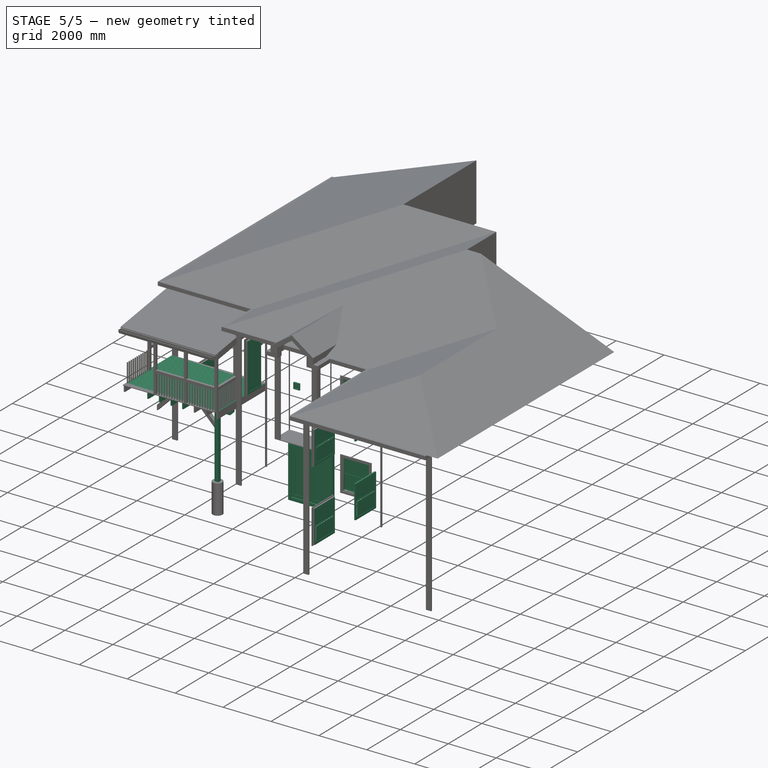
[diagram: stage 5 of 5 — iso view after this stage's code; geometry added in this stage tinted green]
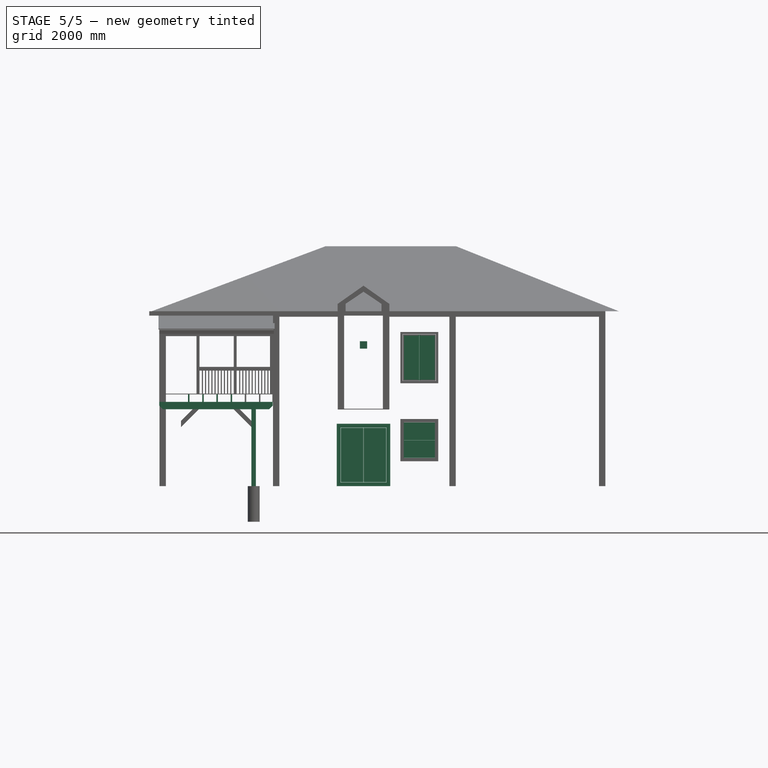
[diagram: stage 5 of 5 — front view after this stage's code; geometry added in this stage tinted green]
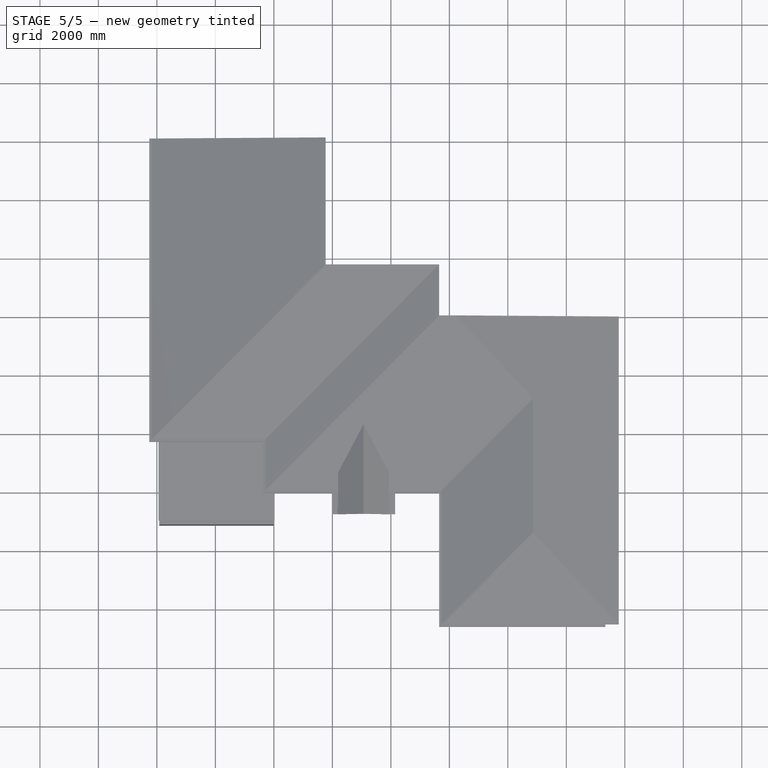
[diagram: stage 5 of 5 — top view after this stage's code; geometry added in this stage tinted green]
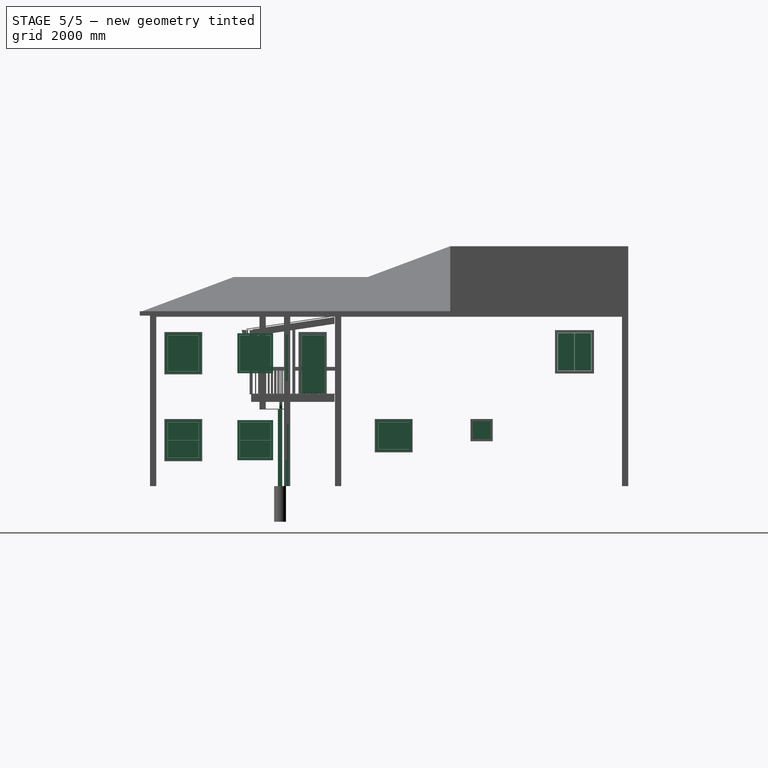
[diagram: stage 5 of 5 — right view after this stage's code; geometry added in this stage tinted green]
FEATURE [App::FeaturePython] Dimension001  # Draft dimension (typed FeaturePython)
  Diameter = false
  Dimline = (-800,-400,0)
  Direction = (0,0,0)
  Distance = 3879.9
  End = (0,0,0)
  Normal = (0,0,1)
  Start = (-3879.9,0,0)
FEATURE [Part::Part2DObjectPython] Line  # Draft 2D object (typed FeaturePython)
  ChamferSize = 0
  Closed = false
  End = (900,-1911.35,0)
  FilletRadius = 0
  Length = 5824.05
  MakeFace = true
  Placement = pos=(0,-1911.35,0) rot=(0,0,1;0rad)
  Points = (2) [(-4924.05,2.44141e-05,-5.68434e-14),(900,2.44141e-05,0)]
  Start = (-4924.05,-1911.35,0)
  Subdivisions = 0
FEATURE [App::FeaturePython] Dimension003  # Draft dimension (typed FeaturePython)
  Diameter = false
  Dimline = (-3400,-1911.35,0)
  Direction = (0,0,0)
  Distance = 1911.35
  End = (-4179.9,0,0)
  Normal = (0,0,1)
  Start = (-4179.9,-1911.35,0)
FEATURE [Part::Part2DObjectPython] Circle  # Draft 2D object (typed FeaturePython)
  FirstAngle = 150
  LastAngle = 250
  MakeFace = true
  Placement = pos=(0,-1746.25,0) rot=(0,0,1;0rad)
  Radius = 711.2
FEATURE [Part::Part2DObjectPython] Line003  # Draft 2D object (typed FeaturePython)
  ChamferSize = 0
  Closed = false
  End = (-691.771,-3400,0)
  FilletRadius = 0
  Length = 3800
  MakeFace = true
  Points = (2) [(-691.771,400,0),(-691.771,-3400,0)]
  Start = (-691.771,400,0)
  Subdivisions = 0
FEATURE [Part::Part2DObjectPython] Line004  # Draft 2D object (typed FeaturePython)
  ChamferSize = 0
  Closed = false
  End = (-3250.82,-3400,0)
  FilletRadius = 0
  Length = 3800
  MakeFace = true
  Points = (2) [(-3250.82,400,0),(-3250.82,-3400,0)]
  Start = (-3250.82,400,0)
  Subdivisions = 0
FEATURE [App::FeaturePython] Dimension004  # Draft dimension (typed FeaturePython)
  Diameter = false
  Dimline = (0,-1746.25,0)
  Direction = (0,0,0)
  Distance = 711.2
  End = (0,-1746.25,0)
  Normal = (0,0,1)
  Start = (-691.771,-1911.35,0)
FEATURE [Part::Part2DObjectPython] DWire  # Draft 2D object (typed FeaturePython)
  ChamferSize = 0
  Closed = true
  End = (0,0,0)
  FilletRadius = 0
  Length = 71019.2
  MakeFace = false
  Points = (22) [(-3879.9,0,0),(-3879.9,9994.34,0),(-3100,9994.34,0),(-3100,12293,0),(-2200,13192.5,0),(-600,13192.5,0),(300,12293,0),(300,11593.4,0),+14 more]
  Start = (-3879.9,0,0)
  Subdivisions = 0
FEATURE [Part::Part2DObjectPython] Line005  # Draft 2D object (typed FeaturePython)
  ChamferSize = 0
  Closed = false
  End = (900,-2914.65,0)
  FilletRadius = 0
  Length = 5500
  MakeFace = true
  Points = (2) [(-4600,-2914.65,0),(900,-2914.65,0)]
  Start = (-4600,-2914.65,0)
  Subdivisions = 0
FEATURE [Part::Part2DObjectPython] Rectangle  # Draft 2D object (typed FeaturePython)
  ChamferSize = 0
  Columns = 1
  FilletRadius = 0
  Height = 2914.65
  Length = 3879.9
  MakeFace = true
  Placement = pos=(-3879.9,-2914.65,0) rot=(0,0,1;0rad)
  Rows = 1
FEATURE [App::FeaturePython] Dimension  # Draft dimension (typed FeaturePython)
  Diameter = false
  Dimline = (-3400,-1911.35,0)
  Direction = (0,0,0)
  Distance = 1003.3
  End = (-4600,-1911.35,0)
  Normal = (0,0,1)
  Start = (-4600,-2914.65,0)
FEATURE [App::FeaturePython] Dimension005  # Draft dimension (typed FeaturePython)
  Diameter = false
  Dimline = (-3600,-3100,0)
  Direction = (0,0,0)
  Distance = 2914.65
  End = (-3879.9,0,0)
  Normal = (0,0,1)
  Start = (-3879.9,-2914.65,0)
FEATURE [App::FeaturePython] Dimension006  # Draft dimension (typed FeaturePython)
  Diameter = false
  Dimline = (-1300,-2700,0)
  Direction = (0,0,0)
  Distance = 2559.05
  End = (-691.771,-3400,0)
  Normal = (0,0,1)
  Start = (-3250.82,-3400,0)
FEATURE [Part::Part2DObjectPython] Clone2D  label="Rectangle (2D)"  # Draft 2D object (typed FeaturePython)
  Fuse = false
  Objects = -> [Rectangle]
  Placement = pos=(-3879.9,-2914.65,3162.3) rot=(0,0,1;0rad)
  Scale = (1,1,1)
FEATURE [Part::Part2DObjectPython] DWire001  # Draft 2D object (typed FeaturePython)
  ChamferSize = 0
  Closed = false
  End = (11334.3,-6328.43,0)
  FilletRadius = 0
  Length = 31537
  MakeFace = true
  Points = (7) [(-3879.9,9994.34,0),(-3879.9,-2.37575e-13,0),(-1.4476e-29,-2.36411e-13,0),(-1.06806e-13,-1744.27,0),(6031.71,-1744.27,0),(6031.71,-6328.43,0),+1 more]
  Start = (-3879.9,9994.34,0)
  Subdivisions = 0
FEATURE [Part::Part2DObjectPython] Line006  # Draft 2D object (typed FeaturePython)
  ChamferSize = 0
  Closed = false
  End = (-3752.9,-1987.55,-576)
  FilletRadius = 0
  Length = 6405.3
  MakeFace = true
  Placement = pos=(127,0,0) rot=(0,0,1;0rad)
  Points = (2) [(-3879.9,-1987.55,5829.3),(-3879.9,-1987.55,-576)]
  Start = (-3752.9,-1987.55,5829.3)
  Subdivisions = 0
FEATURE [Part::Part2DObjectPython] Line007  # Draft 2D object (typed FeaturePython)
  ChamferSize = 0
  Closed = false
  End = (-127,-1987.55,-1076)
  FilletRadius = 0
  Length = 6905.3
  MakeFace = true
  Placement = pos=(-127,0,0) rot=(0,0,1;0rad)
  Points = (2) [(0,-1987.55,5829.3),(0,-1987.55,-1076)]
  Start = (-127,-1987.55,5829.3)
  Subdivisions = 0
FEATURE [Part::Part2DObjectPython] DWire002  # Draft 2D object (typed FeaturePython)
  ChamferSize = 0
  Closed = true
  End = (0,-1987.55,3162.3)
  FilletRadius = 0
  Length = 8119.01
  MakeFace = true
  Points = (6) [(-3879.9,-1987.55,3162.3),(-3879.9,-1987.55,3035.3),(-3752.9,-1987.55,2908.3),(-127,-1987.55,2908.3),(0,-1987.55,3035.3),(0,-1987.55,3162.3)]
  Start = (-3879.9,-1987.55,3162.3)
  Subdivisions = 0
FEATURE [Part::Part2DObjectPython] Line010  # Draft 2D object (typed FeaturePython)
  ChamferSize = 0
  Closed = false
  End = (-5950.82,-1987.55,3162.3)
  FilletRadius = 0
  Length = 5950.82
  MakeFace = true
  Points = (2) [(0,-1987.55,3162.3),(-5950.82,-1987.55,3162.3)]
  Start = (0,-1987.55,3162.3)
  Subdivisions = 0
FEATURE [Part::Part2DObjectPython] Line011  # Draft 2D object (typed FeaturePython)
  ChamferSize = 0
  Closed = false
  End = (-5950.82,-1987.55,3136.9)
  FilletRadius = 0
  Length = 5950.82
  MakeFace = true
  Points = (2) [(0,-1987.55,3136.9),(-5950.82,-1987.55,3136.9)]
  Start = (0,-1987.55,3136.9)
  Subdivisions = 0
FEATURE [App::FeaturePython] Dimension008  # Draft dimension (typed FeaturePython)
  Diameter = false
  Dimline = (-4431.92,-1987.55,1806.57)
  Direction = (0,0,0)
  Distance = 3162.3
  End = (-4600,-1987.55,3162.3)
  Normal = (0,-1,0)
  Start = (-4600,-1987.55,0)
FEATURE [Part::Part2DObjectPython] _x10in  label="2x10in"  # Draft 2D object (typed FeaturePython)
  Height = 254
  Width = 50.8
FEATURE [Part::Part2DObjectPython] Rectangle002  # Draft 2D object (typed FeaturePython)
  ChamferSize = 0
  Columns = 1
  FilletRadius = 0
  Height = 3917.95
  Length = 38
  MakeFace = true
  Placement = pos=(0,-2952.65,3136.9) rot=(0,0,1;1.5708rad)
  Rows = 1
FEATURE [Part::Extrusion] Extrusion
  Base = -> Rectangle002
  Dir = (0,0,25.4)
  DirMode = 0
  FaceMakerClass = Part::FaceMakerBullseye
  LengthFwd = 0
  LengthRev = 0
  Placement = pos=(0,2914.65,0) rot=(0,0,1;0rad)
  Solid = true
  Symmetric = false
FEATURE [App::MaterialObjectPython] Material  label="Wood"  # material (typed FeaturePython)
  Material = Color=(0.5019607843137255, 0.5019607843137255, 0.5019607843137255),DiffuseColor=(1.0, 0.6700000166893005, 0.5),Name=Wood,Transparency=0,+1 more (map truncated)
  Transparency = 0
FEATURE [App::MaterialObjectPython] Material001  label="2x10 treated wood"  # material (typed FeaturePython)
  Description = 2x10 treated wood
  Material = Color=(1.0, 0.6666666666666666, 0.4980392156862745),Description=2x10 treated wood,DiffuseColor=(1.0, 0.6666666865348816, 0.49803921580314636),+4 more (map truncated)
  Transparency = 0
FEATURE [Part::FeaturePython] Structure002  label="Existing 2x10 beams"  # Arch/BIM object (typed FeaturePython)
  Base = -> DWire002
  FaceMaker = 0
  Height = 50.8
  HorizontalArea = 197099
  IfcAttributes = IfcUID=1MUJ0wa5KHwBrE093rt3ko
  IfcRole = 8
  Length = 0
  Material = -> Material001
  MoveWithHost = false
  Nodes = (2) [(-1939.95,-1987.55,3036.71),(-1939.95,-1987.55,3087.51)]
  NodesOffset = 0
  Normal = (0,0,0)
  PerimeterLength = 7861.4
  Placement = pos=(-38.05,50.8,-279.4) rot=(0,0,1;0rad)
  VerticalArea = 1.95163e+06
  Width = 200
FEATURE [Part::FeaturePython] Structure003  label="Existing 2x10 beams001"  # Arch/BIM object (typed FeaturePython)
  CloneOf = -> Structure002
  FaceMaker = 0
  Height = 50.8
  HorizontalArea = 197099
  IfcAttributes = IfcUID=1MUZqia5KHwBrE093rt3ko
  IfcRole = 8
  Length = 0
  Material = -> Material001
  MoveWithHost = false
  Nodes = (2) [(-1939.95,-1987.55,3036.71),(-1939.95,-1987.55,3087.51)]
  NodesOffset = 0
  Normal = (0,0,0)
  PerimeterLength = 7861.4
  Placement = pos=(-38.05,101.6,-279.4) rot=(0,0,1;0rad)
  VerticalArea = 1.95163e+06
  Width = 200
FEATURE [Part::FeaturePython] Structure004  label="New 2x10 beam"  # Arch/BIM object (typed FeaturePython)
  CloneOf = -> Structure002
  FaceMaker = 0
  Height = 50.8
  HorizontalArea = 197099
  IfcAttributes = IfcUID=1MUh32a5KHwBrE093rt3ko
  IfcRole = 8
  Length = 0
  Material = -> Material001
  MoveWithHost = false
  Nodes = (2) [(-1939.95,-1987.55,3036.71),(-1939.95,-1987.55,3087.51)]
  NodesOffset = 0
  Normal = (0,0,0)
  PerimeterLength = 7861.4
  Placement = pos=(-38.05,152.4,-279.4) rot=(0,0,1;0rad)
  VerticalArea = 1.95163e+06
  Width = 200
FEATURE [Part::Part2DObjectPython] Line012  # Draft 2D object (typed FeaturePython)
  ChamferSize = 0
  Closed = false
  End = (0,-1987.55,3136.9)
  FilletRadius = 0
  Length = 3879.9
  MakeFace = true
  Placement = pos=(0,0,254) rot=(0,0,1;0rad)
  Points = (2) [(-3879.9,-1987.55,2882.9),(0,-1987.55,2882.9)]
  Start = (-3879.9,-1987.55,3136.9)
  Subdivisions = 7
  Support = -> [Structure005]
FEATURE [Part::FeaturePython] Structure006  label="Existing 2x10 floor joist008"  # Arch/BIM object (typed FeaturePython)
  CloneOf = -> Structure005
  FaceMaker = 0
  Height = 2851.15
  HorizontalArea = 144838
  IfcAttributes = IfcUID=1MVajga5KHwBrE093rt3ko
  IfcRole = 8
  Length = 0
  Material = -> Material001
  MoveWithHost = false
  Nodes = (2) [(-6.93889e-16,1.67845e-15,0),(-6.93889e-16,1.67845e-15,2851.15)]
  NodesOffset = 0
  Normal = (0,0,0)
  PerimeterLength = 5803.9
  Placement = pos=(-2909.92,-50.8,3009.9) rot=(1,0,0;1.5708rad)
  VerticalArea = 1.47419e+06
  Width = 174.625
FEATURE [Part::FeaturePython] Structure007  label="Existing 2x10 floor joist010"  # Arch/BIM object (typed FeaturePython)
  CloneOf = -> Structure005
  FaceMaker = 0
  Height = 2851.15
  HorizontalArea = 144838
  IfcAttributes = IfcUID=1MVU5wa5KHwBrE093rt3ko
  IfcRole = 8
  Length = 0
  Material = -> Material001
  MoveWithHost = false
  Nodes = (2) [(-6.93889e-16,1.67845e-15,0),(-6.93889e-16,1.67845e-15,2851.15)]
  NodesOffset = 0
  Normal = (0,0,0)
  PerimeterLength = 5803.9
  Placement = pos=(-2424.94,-50.8,3009.9) rot=(1,0,0;1.5708rad)
  VerticalArea = 1.47419e+06
  Width = 174.625
FEATURE [Part::FeaturePython] Structure008  label="Existing 2x10 floor joist001"  # Arch/BIM object (typed FeaturePython)
  CloneOf = -> Structure005
  FaceMaker = 0
  Height = 2851.15
  HorizontalArea = 144838
  IfcAttributes = IfcUID=1MVNOEa5KHwBrE093rt3ko
  IfcRole = 8
  Length = 0
  Material = -> Material001
  MoveWithHost = false
  Nodes = (2) [(-6.93889e-16,1.67845e-15,0),(-6.93889e-16,1.67845e-15,2851.15)]
  NodesOffset = 0
  Normal = (0,0,0)
  PerimeterLength = 5803.9
  Placement = pos=(-1939.95,-50.8,3009.9) rot=(1,0,0;1.5708rad)
  VerticalArea = 1.47419e+06
  Width = 174.625
FEATURE [Part::FeaturePython] Structure009  label="Existing 2x10 floor joist009"  # Arch/BIM object (typed FeaturePython)
  CloneOf = -> Structure005
  FaceMaker = 0
  Height = 2851.15
  HorizontalArea = 144838
  IfcAttributes = IfcUID=1MVGd6a5KHwBrE093rt3ko
  IfcRole = 8
  Length = 0
  Material = -> Material001
  MoveWithHost = false
  Nodes = (2) [(-6.93889e-16,1.67845e-15,0),(-6.93889e-16,1.67845e-15,2851.15)]
  NodesOffset = 0
  Normal = (0,0,0)
  PerimeterLength = 5803.9
  Placement = pos=(-1454.96,-50.8,3009.9) rot=(1,0,0;1.5708rad)
  VerticalArea = 1.47419e+06
  Width = 174.625
FEATURE [Part::Part2DObjectPython] Rectangle001  # Draft 2D object (typed FeaturePython)
  ChamferSize = 0
  Columns = 1
  FilletRadius = 0
  Height = 3917.95
  Length = 101.6
  MakeFace = true
  Placement = pos=(0,-101.6,3136.9) rot=(0,0,1;1.5708rad)
  Rows = 1
  Support = -> [Structure015]
FEATURE [Part::Extrusion] Extrude
  Base = -> Rectangle001
  Dir = (0,0,1)
  DirMode = 2
  FaceMakerClass = Part::FaceMakerBullseye
  LengthFwd = 25.4
  LengthRev = 0
  Solid = false
  Symmetric = false
FEATURE [Part::FeaturePython] Array  # Draft array (typed FeaturePython)
  Angle = 360
  ArrayType = 0
  Axis = (0,0,1)
  Base = -> Extrude
  Center = (0,0,0)
  Fuse = false
  IntervalAxis = (0,0,0)
  IntervalX = (1,0,0)
  IntervalY = (0,-107.95,0)
  IntervalZ = (0,0,1)
  NumberPolar = 1
  NumberX = 1
  NumberY = 27
  NumberZ = 1
FEATURE [Part::FeaturePython] Structure001  label="New 6x6 columns001"  # Arch/BIM object (typed FeaturePython)
  CloneOf = -> Structure
  FaceMaker = 0
  Height = 2628.9
  HorizontalArea = 23225.8
  IfcAttributes = IfcUID=1MUBoaa5KHwBrE093rt3ko
  IfcRole = 25
  Length = 152.4
  Material = -> Material002
  MoveWithHost = false
  Nodes = (2) [(-1.27676e-15,2.78809e-15,0),(-1.27676e-15,2.78809e-15,2628.9)]
  NodesOffset = 0
  Normal = (0,0,0)
  PerimeterLength = 609.6
  Placement = pos=(-691.771,-1911.35,0) rot=(0,0,1;0rad)
  VerticalArea = 1.60258e+06
  Width = 152.4
FEATURE [Part::Part2DObjectPython] Rectangle017  # Draft 2D object (typed FeaturePython)
  ChamferSize = 0
  Columns = 1
  FilletRadius = 0
  Height = 889
  Length = 1073.15
  MakeFace = true
  Placement = pos=(0,-2851.05,3162.3) rot=(0.57735,0.57735,0.57735;2.0944rad)
  Rows = 1
FEATURE [Part::Part2DObjectPython] DWire022  # Draft 2D object (typed FeaturePython)
  ChamferSize = 0
  Closed = true
  End = (0,-2851.05,5130.8)
  FilletRadius = 0
  Length = 4427.45
  MakeFace = true
  Points = (4) [(-4.61853e-13,-1777.9,5291.75),(-4.61853e-13,-1777.9,4076.7),(-4.61853e-13,-2851.05,4076.7),(-4.61853e-13,-2851.05,5130.8)]
  Start = (0,-1777.9,5291.75)
  Subdivisions = 0
FEATURE [Part::Offset2D] Offset2D008  label="Offset2D012"
  Fill = false
  Intersection = false
  Join = 0
  Mode = 0
  Placement = pos=(-12.4777,0,0) rot=(0,0,1;0rad)
  SelfIntersection = false
  Source = -> Rectangle017
  Value = -5
FEATURE [Part::Offset2D] Offset2D009  label="Offset2D013"
  Fill = false
  Intersection = false
  Join = 0
  Mode = 0
  Placement = pos=(-12.4777,0,0) rot=(0,0,1;0rad)
  SelfIntersection = false
  Source = -> DWire022
  Value = -5
FEATURE [Part::Compound] Compound
  Links = -> [Offset2D008,Offset2D009,Clone003,Clone002,Clone001,Clone,Offset2D007,Offset2D006,Offset2D005,Offset2D004,Offset2D003,Offset2D002]
FEATURE [App::FeaturePython] Dimension010  # Draft dimension (typed FeaturePython)
  Diameter = false
  Dimline = (-4431.92,-1987.55,3086.1)
  Direction = (0,0,0)
  Distance = 1967.02
  End = (-3917.95,-1987.55,5130.8)
  Normal = (0,-1,0)
  Start = (-3917.95,-1987.55,3163.78)
FEATURE [App::FeaturePython] Dimension011  # Draft dimension (typed FeaturePython)
  Diameter = false
  Dimline = (-4431.92,-1987.55,5349.88)
  Direction = (0,0,0)
  Distance = 698.5
  End = (-3917.95,-1987.55,5829.3)
  Normal = (0,-1,0)
  Start = (-3917.95,-1987.55,5130.8)
FEATURE [App::FeaturePython] Dimension012  # Draft dimension (typed FeaturePython)
  Diameter = false
  Dimline = (-4628.77,-1987.55,5251.45)
  Direction = (0,0,0)
  Distance = 5829.3
  End = (-3910.85,-1987.55,5829.3)
  Normal = (0,-1,0)
  Start = (-3910.85,-1987.55,0)
FEATURE [App::FeaturePython] Dimension015  # Draft dimension (typed FeaturePython)
  Diameter = false
  Dimline = (-4235.07,-1987.55,2397.12)
  Direction = (0,0,0)
  Distance = 2628.9
  End = (-3327.02,-1987.55,2628.9)
  Normal = (0,-1,0)
  Start = (-3327.02,-1987.55,0)
FEATURE [App::FeaturePython] Dimension016  # Draft dimension (typed FeaturePython)
  Diameter = false
  Dimline = (-4235.07,-1987.55,2790.82)
  Direction = (0,0,0)
  Distance = 533.4
  End = (-3327.02,-1987.55,3162.3)
  Normal = (0,-1,0)
  Start = (-3327.02,-1987.55,2628.9)
FEATURE [Part::Part2DObjectPython] Line058  # Draft 2D object (typed FeaturePython)
  ChamferSize = 0
  Closed = false
  End = (-5950.82,-1987.55,0)
  FilletRadius = 0
  Length = 5950.82
  MakeFace = true
  Placement = pos=(0,0,-3136.9) rot=(0,0,1;0rad)
  Points = (2) [(0,-1987.55,3136.9),(-5950.82,-1987.55,3136.9)]
  Start = (0,-1987.55,0)
  Subdivisions = 0
FEATURE [App::FeaturePython] Dimension017  # Draft dimension (typed FeaturePython)
  Diameter = false
  Dimline = (-3917.95,-3937,3502.03)
  Direction = (0,0,0)
  Distance = 1968.5
  End = (-3917.95,-2952.65,5130.8)
  Normal = (-1,0,0)
  Start = (-3917.95,-2952.65,3162.3)
FEATURE [App::FeaturePython] Dimension020  # Draft dimension (typed FeaturePython)
  Diameter = false
  Dimline = (-3917.95,-3937,3009.9)
  Direction = (0,0,0)
  Distance = 279.4
  End = (-3917.95,-2952.65,3162.3)
  Normal = (-1,0,0)
  Start = (-3917.95,-2952.65,2882.9)
FEATURE [App::FeaturePython] Dimension021  # Draft dimension (typed FeaturePython)
  Diameter = false
  Dimline = (-3917.95,-3937,3009.9)
  Direction = (0,0,0)
  Distance = 2882.9
  End = (-3917.95,-1987.55,2882.9)
  Normal = (-1,0,0)
  Start = (-3917.95,-1987.55,0)
FEATURE [App::FeaturePython] Dimension022  # Draft dimension (typed FeaturePython)
  Diameter = false
  Dimline = (-3917.95,-3937,5130.8)
  Direction = (0,0,0)
  Distance = 251.15
  End = (-3917.95,-2952.65,5381.95)
  Normal = (-1,0,0)
  Start = (-3917.95,-2952.65,5130.8)
FEATURE [App::FeaturePython] Dimension023  # Draft dimension (typed FeaturePython)
  Diameter = false
  Dimline = (-3917.95,-3937,5381.95)
  Direction = (0,0,0)
  Distance = 447.35
  End = (-3917.95,-3066.63,5829.3)
  Normal = (-1,0,0)
  Start = (-3917.95,-3066.63,5381.95)
FEATURE [Sketcher::SketchObject] Sketch
  Placement = pos=(0,-797.638,0) rot=(0.57735,-0.57735,-0.57735;2.0944rad)
  sketch-geometry (16):
    g0: LineSegment StartX=0 StartY=0 StartZ=0 EndX=812.8 EndY=0 EndZ=0
    g1: LineSegment StartX=812.8 StartY=0 StartZ=0 EndX=812.8 EndY=2032 EndZ=0
    g2: LineSegment StartX=812.8 StartY=2032 StartZ=0 EndX=0 EndY=2032 EndZ=0
    g3: LineSegment StartX=0 StartY=2032 StartZ=0 EndX=0 EndY=0 EndZ=0
    g4: LineSegment StartX=30 StartY=0 StartZ=0 EndX=782.8 EndY=0 EndZ=0
    g5: LineSegment StartX=782.8 StartY=0 StartZ=0 EndX=782.8 EndY=2002 EndZ=0
    g6: LineSegment StartX=782.8 StartY=2002 StartZ=0 EndX=30 EndY=2002 EndZ=0
    g7: LineSegment StartX=30 StartY=2002 StartZ=0 EndX=30 EndY=0 EndZ=0
    g8: LineSegment StartX=33 StartY=3 StartZ=0 EndX=779.8 EndY=3 EndZ=0
    g9: LineSegment StartX=779.8 StartY=3 StartZ=0 EndX=779.8 EndY=1999 EndZ=0
    g10: LineSegment StartX=779.8 StartY=1999 StartZ=0 EndX=33 EndY=1999 EndZ=0
    g11: LineSegment StartX=33 StartY=1999 StartZ=0 EndX=33 EndY=3 EndZ=0
    g12: LineSegment StartX=109.2 StartY=79.2 StartZ=0 EndX=703.6 EndY=79.2 EndZ=0
    g13: LineSegment StartX=703.6 StartY=79.2 StartZ=0 EndX=703.6 EndY=1922.8 EndZ=0
    g14: LineSegment StartX=703.6 StartY=1922.8 StartZ=0 EndX=109.2 EndY=1922.8 EndZ=0
    g15: LineSegment StartX=109.2 StartY=1922.8 StartZ=0 EndX=109.2 EndY=79.2 EndZ=0
  constraints (47):
    c: Coincident(g0,g1)
    c: Coincident(g1,g2)
    c: Coincident(g2,g3)
    c: Coincident(g3,g0)
    c: Horizontal(g0)
    c: Horizontal(g2)
    c: Vertical(g1)
    c: Vertical(g3)
    c: Coincident(g4,g5)
    c: Coincident(g5,g6)
    c: Coincident(g6,g7)
    c: Coincident(g7,g4)
    c: Horizontal(g4)
    c: Horizontal(g6)
    c: Vertical(g5)
    c: Vertical(g7)
    c: DistanceY(g1) = 2032  'Height'
    c: DistanceX(g0) = 812.8  'Width'
    c: DistanceY(g6,g2) = 30  'Frame1'
    c: DistanceX(g2,g6) = 30  'Frame2'
    c: DistanceX(g4,g0) = 30  'Frame3'
    c: DistanceY(g0,g4) = 0
    c: Coincident(g0,g-1)
    c: Coincident(g8,g9)
    c: Coincident(g9,g10)
    c: Coincident(g10,g11)
    c: Coincident(g11,g8)
    c: Horizontal(g8)
    c: Horizontal(g10)
    c: Vertical(g9)
    c: Vertical(g11)
    c: Coincident(g12,g13)
    c: Coincident(g13,g14)
    c: Coincident(g14,g15)
    c: Coincident(g15,g12)
    c: Horizontal(g12)
    c: Horizontal(g14)
    c: Vertical(g13)
    c: Vertical(g15)
    c: DistanceX(g8,g12) = 76.2
    c: DistanceY(g8,g12) = 76.2
    c: DistanceX(g14,g10) = 76.2
    c: DistanceY(g14,g10) = 76.2
    c: DistanceX(g4,g8) = 3
    c: DistanceY(g4,g8) = 3
    c: DistanceX(g10,g6) = 3
    c: DistanceY(g10,g6) = 3
FEATURE [Part::FeaturePython] Window  label="Door"  # Arch/BIM object (typed FeaturePython)
  Area = 1.65161e+06
  Base = -> Sketch
  Frame = 30
  Height = 2032
  HoleDepth = 0
  HoleWire = 0
  HorizontalArea = 0
  Hosts = -> [Wall]
  IfcAttributes = IfcUID=1MehFia5KHwBrE093rt3ko
  IfcRole = 42
  LouvreSpacing = 0
  LouvreWidth = 0
  MoveWithHost = true
  Normal = (1,0,0)
  Opening = 0
  PerimeterLength = 0
  Placement = pos=(0,406.588,3162.3) rot=(0,0,1;0rad)
  Preset = 7
  SymbolElevation = false
  SymbolPlan = false
  VerticalArea = 0
  Width = 812.8
  WindowParts = OuterFrame | Frame | Wire0,Wire1 | 30.0+V | 0.00+V | InnerFrame | Frame | Wire2,Wire3 | 30.0 | 30.0+V | InnerGlass | Glass panel | Wire3 | 3.0 | 45.0+V
FEATURE [Sketcher::SketchObject] Sketch001
  Placement = pos=(667.759,-1744.27,3328.2) rot=(1,0,0;1.5708rad)
  sketch-geometry (24):
    g0: LineSegment StartX=0 StartY=0 StartZ=0 EndX=1219.2 EndY=0 EndZ=0
    g1: LineSegment StartX=1219.2 StartY=0 StartZ=0 EndX=1219.2 EndY=1676.4 EndZ=0
    g2: LineSegment StartX=1219.2 StartY=1676.4 StartZ=0 EndX=0 EndY=1676.4 EndZ=0
    g3: LineSegment StartX=0 StartY=1676.4 StartZ=0 EndX=0 EndY=0 EndZ=0
    g4: LineSegment StartX=38.1 StartY=38.1 StartZ=0 EndX=1181.1 EndY=38.1 EndZ=0
    g5: LineSegment StartX=1181.1 StartY=38.1 StartZ=0 EndX=1181.1 EndY=1638.3 EndZ=0
    g6: LineSegment StartX=1181.1 StartY=1638.3 StartZ=0 EndX=38.1 EndY=1638.3 EndZ=0
    g7: LineSegment StartX=38.1 StartY=1638.3 StartZ=0 EndX=38.1 EndY=38.1 EndZ=0
    g8: LineSegment StartX=45.72 StartY=45.72 StartZ=0 EndX=605.79 EndY=45.72 EndZ=0
    g9: LineSegment StartX=605.79 StartY=45.72 StartZ=0 EndX=605.79 EndY=1630.68 EndZ=0
    g10: LineSegment StartX=605.79 StartY=1630.68 StartZ=0 EndX=45.72 EndY=1630.68 EndZ=0
    g11: LineSegment StartX=45.72 StartY=1630.68 StartZ=0 EndX=45.72 EndY=45.72 EndZ=0
    g12: LineSegment StartX=83.82 StartY=83.82 StartZ=0 EndX=567.69 EndY=83.82 EndZ=0
    g13: LineSegment StartX=567.69 StartY=83.82 StartZ=0 EndX=567.69 EndY=1592.58 EndZ=0
    g14: LineSegment StartX=567.69 StartY=1592.58 StartZ=0 EndX=83.82 EndY=1592.58 EndZ=0
    g15: LineSegment StartX=83.82 StartY=1592.58 StartZ=0 EndX=83.82 EndY=83.82 EndZ=0
    g16: LineSegment StartX=613.41 StartY=45.72 StartZ=0 EndX=1173.48 EndY=45.72 EndZ=0
    g17: LineSegment StartX=1173.48 StartY=45.72 StartZ=0 EndX=1173.48 EndY=1630.68 EndZ=0
    g18: LineSegment StartX=1173.48 StartY=1630.68 StartZ=0 EndX=613.41 EndY=1630.68 EndZ=0
    g19: LineSegment StartX=613.41 StartY=1630.68 StartZ=0 EndX=613.41 EndY=45.72 EndZ=0
    g20: LineSegment StartX=651.51 StartY=83.82 StartZ=0 EndX=1135.38 EndY=83.82 EndZ=0
    g21: LineSegment StartX=1135.38 StartY=83.82 StartZ=0 EndX=1135.38 EndY=1592.58 EndZ=0
    g22: LineSegment StartX=1135.38 StartY=1592.58 StartZ=0 EndX=651.51 EndY=1592.58 EndZ=0
    g23: LineSegment StartX=651.51 StartY=1592.58 StartZ=0 EndX=651.51 EndY=83.82 EndZ=0
  constraints (71):
    c: Coincident(g0,g1)
    c: Coincident(g1,g2)
    c: Coincident(g2,g3)
    c: Coincident(g3,g0)
    c: Horizontal(g0)
    c: Horizontal(g2)
    c: Vertical(g1)
    c: Vertical(g3)
    c: Coincident(g4,g5)
    c: Coincident(g5,g6)
    c: Coincident(g6,g7)
    c: Coincident(g7,g4)
    c: Horizontal(g4)
    c: Horizontal(g6)
    c: Vertical(g5)
    c: Vertical(g7)
    c: DistanceY(g1) = 1676.4  'Height'
    c: DistanceX(g0) = 1219.2  'Width'
    c: DistanceY(g6,g2) = 38.1  'Frame1'
    c: DistanceX(g2,g6) = 38.1  'Frame2'
    c: DistanceX(g4,g0) = 38.1  'Frame3'
    c: DistanceY(g0,g4) = 38.1  'Frame4'
    c: Coincident(g0,g-1)
    c: Coincident(g8,g9)
    c: Coincident(g9,g10)
    c: Coincident(g10,g11)
    c: Coincident(g11,g8)
    c: Horizontal(g8)
    c: Horizontal(g10)
    c: Vertical(g9)
    c: Vertical(g11)
    c: Coincident(g12,g13)
    c: Coincident(g13,g14)
    c: Coincident(g14,g15)
    c: Coincident(g15,g12)
    c: Horizontal(g12)
    c: Horizontal(g14)
    c: Vertical(g13)
    c: Vertical(g15)
    c: Coincident(g16,g17)
    c: Coincident(g17,g18)
    c: Coincident(g18,g19)
    c: Coincident(g19,g16)
    c: Horizontal(g16)
    c: Horizontal(g18)
    c: Vertical(g17)
    c: Vertical(g19)
    c: Coincident(g20,g21)
    c: Coincident(g21,g22)
    c: Coincident(g22,g23)
    c: Coincident(g23,g20)
    c: Horizontal(g20)
    c: Horizontal(g22)
    c: Vertical(g21)
    c: Vertical(g23)
    c: DistanceY(g8,g12) = 38.1  'Frame5'
    c: DistanceX(g8,g12) = 38.1  'Frame6'
    c: DistanceX(g21,g17) = 38.1  'Frame7'
    c: DistanceY(g21,g17) = 38.1  'Frame8'
    c: DistanceX(g16,g20) = 38.1  'Frame9'
    c: DistanceX(g14,g10) = 38.1  'Frame10'
    c: Equal(g22,g14)
    c: DistanceY(g8,g16) = 0
    c: DistanceY(g10,g18) = 0
    c: DistanceX(g4,g8) = 7.62
    c: DistanceY(g4,g8) = 7.62
    c: DistanceX(g6,g18) = -7.62
    c: DistanceY(g6,g18) = -7.62
    c: DistanceX(g9,g19) = 7.62
    c: PointOnObject(g13,g22)
    c: PointOnObject(g12,g20)
FEATURE [Part::FeaturePython] Window001  label="Window"  # Arch/BIM object (typed FeaturePython)
  Area = 2.04387e+06
  Base = -> Sketch001
  Frame = 38.1
  Height = 1676.4
  HoleDepth = 0
  HoleWire = 0
  HorizontalArea = 0
  Hosts = -> [Wall]
  IfcAttributes = IfcUID=1MfwPea5KHwBrE093rt3ko
  IfcRole = 170
  LouvreSpacing = 0
  LouvreWidth = 0
  MoveWithHost = true
  Normal = (0,1,0)
  Opening = 0
  PerimeterLength = 0
  Placement = pos=(-91.8586,0,227.802) rot=(0,0,1;0rad)
  Preset = 5
  SymbolElevation = false
  SymbolPlan = false
  VerticalArea = 0
  Width = 1219.2
  WindowParts = OuterFrame | Frame | Wire0,Wire1 | -16.2+V | 0.00+V | LeftFrame | Frame | Wire2,Wire3 | 76.2 | 0.0+V | LeftGlass | Glass panel | Wire3 | 6.35 | 12.7+V | RightFrame | Frame | Wire4,Wire5 | 76.2 | 25.4+V | RightGlass | Glass panel | Wire5 | 6.35 | 38.1+V
FEATURE [Part::FeaturePython] Window002  label="Window001"  # Arch/BIM object (typed FeaturePython)
  Area = 2.04387e+06
  CloneOf = -> Window001
  Frame = 0
  Height = 1676.4
  HoleDepth = 0
  HoleWire = 0
  HorizontalArea = 0
  Hosts = -> [Wall]
  IfcAttributes = IfcUID=1Mhqo8a5KHwBrE093rt3ko
  IfcRole = 170
  LouvreSpacing = 0
  LouvreWidth = 0
  MoveWithHost = true
  Normal = (0,0,0)
  Opening = 0
  PerimeterLength = 0
  Placement = pos=(3695.82,0,227.802) rot=(0,0,1;0rad)
  Preset = 0
  SymbolElevation = false
  SymbolPlan = false
  VerticalArea = 0
  Width = 1219.2
FEATURE [Sketcher::SketchObject] Sketch002
  Placement = pos=(667.759,-1744.27,3328.2) rot=(1,0,0;1.5708rad)
  sketch-geometry (24):
    g0: LineSegment StartX=0 StartY=0 StartZ=0 EndX=1219.2 EndY=0 EndZ=0
    g1: LineSegment StartX=1219.2 StartY=0 StartZ=0 EndX=1219.2 EndY=1371.6 EndZ=0
    g2: LineSegment StartX=1219.2 StartY=1371.6 StartZ=0 EndX=0 EndY=1371.6 EndZ=0
    g3: LineSegment StartX=0 StartY=1371.6 StartZ=0 EndX=0 EndY=0 EndZ=0
    g4: LineSegment StartX=38.1 StartY=38.1 StartZ=0 EndX=1181.1 EndY=38.1 EndZ=0
    g5: LineSegment StartX=1181.1 StartY=38.1 StartZ=0 EndX=1181.1 EndY=1333.5 EndZ=0
    g6: LineSegment StartX=1181.1 StartY=1333.5 StartZ=0 EndX=38.1 EndY=1333.5 EndZ=0
    g7: LineSegment StartX=38.1 StartY=1333.5 StartZ=0 EndX=38.1 EndY=38.1 EndZ=0
    g8: LineSegment StartX=45.72 StartY=45.72 StartZ=0 EndX=605.79 EndY=45.72 EndZ=0
    g9: LineSegment StartX=605.79 StartY=45.72 StartZ=0 EndX=605.79 EndY=1325.88 EndZ=0
    g10: LineSegment StartX=605.79 StartY=1325.88 StartZ=0 EndX=45.72 EndY=1325.88 EndZ=0
    g11: LineSegment StartX=45.72 StartY=1325.88 StartZ=0 EndX=45.72 EndY=45.72 EndZ=0
    g12: LineSegment StartX=83.82 StartY=83.82 StartZ=0 EndX=567.69 EndY=83.82 EndZ=0
    g13: LineSegment StartX=567.69 StartY=83.82 StartZ=0 EndX=567.69 EndY=1287.78 EndZ=0
    g14: LineSegment StartX=567.69 StartY=1287.78 StartZ=0 EndX=83.82 EndY=1287.78 EndZ=0
    g15: LineSegment StartX=83.82 StartY=1287.78 StartZ=0 EndX=83.82 EndY=83.82 EndZ=0
    g16: LineSegment StartX=613.41 StartY=45.72 StartZ=0 EndX=1173.48 EndY=45.72 EndZ=0
    g17: LineSegment StartX=1173.48 StartY=45.72 StartZ=0 EndX=1173.48 EndY=1325.88 EndZ=0
    g18: LineSegment StartX=1173.48 StartY=1325.88 StartZ=0 EndX=613.41 EndY=1325.88 EndZ=0
    g19: LineSegment StartX=613.41 StartY=1325.88 StartZ=0 EndX=613.41 EndY=45.72 EndZ=0
    g20: LineSegment StartX=651.51 StartY=83.82 StartZ=0 EndX=1135.38 EndY=83.82 EndZ=0
    g21: LineSegment StartX=1135.38 StartY=83.82 StartZ=0 EndX=1135.38 EndY=1287.78 EndZ=0
    g22: LineSegment StartX=1135.38 StartY=1287.78 StartZ=0 EndX=651.51 EndY=1287.78 EndZ=0
    g23: LineSegment StartX=651.51 StartY=1287.78 StartZ=0 EndX=651.51 EndY=83.82 EndZ=0
  constraints (71):
    c: Coincident(g0,g1)
    c: Coincident(g1,g2)
    c: Coincident(g2,g3)
    c: Coincident(g3,g0)
    c: Horizontal(g0)
    c: Horizontal(g2)
    c: Vertical(g1)
    c: Vertical(g3)
    c: Coincident(g4,g5)
    c: Coincident(g5,g6)
    c: Coincident(g6,g7)
    c: Coincident(g7,g4)
    c: Horizontal(g4)
    c: Horizontal(g6)
    c: Vertical(g5)
    c: Vertical(g7)
    c: DistanceY(g1) = 1371.6  'Height'
    c: DistanceX(g0) = 1219.2  'Width'
    c: DistanceY(g6,g2) = 38.1  'Frame1'
    c: DistanceX(g2,g6) = 38.1  'Frame2'
    c: DistanceX(g4,g0) = 38.1  'Frame3'
    c: DistanceY(g0,g4) = 38.1  'Frame4'
    c: Coincident(g0,g-1)
    c: Coincident(g8,g9)
    c: Coincident(g9,g10)
    c: Coincident(g10,g11)
    c: Coincident(g11,g8)
    c: Horizontal(g8)
    c: Horizontal(g10)
    c: Vertical(g9)
    c: Vertical(g11)
    c: Coincident(g12,g13)
    c: Coincident(g13,g14)
    c: Coincident(g14,g15)
    c: Coincident(g15,g12)
    c: Horizontal(g12)
    c: Horizontal(g14)
    c: Vertical(g13)
    c: Vertical(g15)
    c: Coincident(g16,g17)
    c: Coincident(g17,g18)
    c: Coincident(g18,g19)
    c: Coincident(g19,g16)
    c: Horizontal(g16)
    c: Horizontal(g18)
    c: Vertical(g17)
    c: Vertical(g19)
    c: Coincident(g20,g21)
    c: Coincident(g21,g22)
    c: Coincident(g22,g23)
    c: Coincident(g23,g20)
    c: Horizontal(g20)
    c: Horizontal(g22)
    c: Vertical(g21)
    c: Vertical(g23)
    c: DistanceY(g8,g12) = 38.1  'Frame5'
    c: DistanceX(g8,g12) = 38.1  'Frame6'
    c: DistanceX(g21,g17) = 38.1  'Frame7'
    c: DistanceY(g21,g17) = 38.1  'Frame8'
    c: DistanceX(g16,g20) = 38.1  'Frame9'
    c: DistanceX(g14,g10) = 38.1  'Frame10'
    c: Equal(g22,g14)
    c: DistanceY(g8,g16) = 0
    c: DistanceY(g10,g18) = 0
    c: DistanceX(g4,g8) = 7.62
    c: DistanceY(g4,g8) = 7.62
    c: DistanceX(g6,g18) = -7.62
    c: DistanceY(g6,g18) = -7.62
    c: DistanceX(g9,g19) = 7.62
    c: PointOnObject(g13,g22)
    c: PointOnObject(g12,g20)
FEATURE [Part::FeaturePython] Window003  label="Window002"  # Arch/BIM object (typed FeaturePython)
  Area = 1.67225e+06
  Base = -> Sketch002
  Frame = 38.1
  Height = 1371.6
  HoleDepth = 0
  HoleWire = 0
  HorizontalArea = 0
  Hosts = -> [Wall]
  IfcAttributes = IfcUID=1Mhyhwa5KHwBrE093rt3ko
  IfcRole = 170
  LouvreSpacing = 0
  LouvreWidth = 0
  MoveWithHost = true
  Normal = (0,1,0)
  Opening = 0
  PerimeterLength = 0
  Placement = pos=(-2135.63,3232.54,579.373) rot=(0,0,-1;1.5708rad)
  Preset = 5
  SymbolElevation = false
  SymbolPlan = false
  VerticalArea = 0
  Width = 1219.2
  WindowParts = OuterFrame | Frame | Wire0,Wire1 | -16.2+V | 0.00+V | LeftFrame | Frame | Wire2,Wire3 | 76.2 | 0.0+V | LeftGlass | Glass panel | Wire3 | 6.35 | 12.7+V | RightFrame | Frame | Wire4,Wire5 | 76.2 | 25.4+V | RightGlass | Glass panel | Wire5 | 6.35 | 38.1+V
FEATURE [Part::FeaturePython] Window004  label="Window003"  # Arch/BIM object (typed FeaturePython)
  Area = 1.67225e+06
  CloneOf = -> Window003
  Frame = 0
  Height = 1371.6
  HoleDepth = 0
  HoleWire = 0
  HorizontalArea = 0
  Hosts = -> [Wall]
  IfcAttributes = IfcUID=1MjsUSa5KHwBrE093rt3ko
  IfcRole = 170
  LouvreSpacing = 0
  LouvreWidth = 0
  MoveWithHost = true
  Normal = (0,0,0)
  Opening = 0
  PerimeterLength = 0
  Placement = pos=(-2135.63,9433.32,579.373) rot=(0,0,-1;1.5708rad)
  Preset = 0
  SymbolElevation = false
  SymbolPlan = false
  VerticalArea = 0
  Width = 1219.2
FEATURE [Sketcher::SketchObject] Sketch003
  Placement = pos=(186.864,-1744.27,0) rot=(1,0,0;1.5708rad)
  expr: Constraints.F10 = -Constraints.Frame5
  sketch-geometry (24):
    g0: LineSegment StartX=0 StartY=0 StartZ=0 EndX=1219.2 EndY=0 EndZ=0
    g1: LineSegment StartX=1219.2 StartY=0 StartZ=0 EndX=1219.2 EndY=1371.6 EndZ=0
    g2: LineSegment StartX=1219.2 StartY=1371.6 StartZ=0 EndX=0 EndY=1371.6 EndZ=0
    g3: LineSegment StartX=0 StartY=1371.6 StartZ=0 EndX=0 EndY=0 EndZ=0
    g4: LineSegment StartX=76.2 StartY=76.2 StartZ=0 EndX=1143 EndY=76.2 EndZ=0
    g5: LineSegment StartX=1143 StartY=76.2 StartZ=0 EndX=1143 EndY=1295.4 EndZ=0
    g6: LineSegment StartX=1143 StartY=1295.4 StartZ=0 EndX=76.2 EndY=1295.4 EndZ=0
    g7: LineSegment StartX=76.2 StartY=1295.4 StartZ=0 EndX=76.2 EndY=76.2 EndZ=0
    g8: LineSegment StartX=79.2 StartY=79.2 StartZ=0 EndX=1140 EndY=79.2 EndZ=0
    g9: LineSegment StartX=1140 StartY=79.2 StartZ=0 EndX=1140 EndY=684.3 EndZ=0
    g10: LineSegment StartX=1140 StartY=684.3 StartZ=0 EndX=79.2 EndY=684.3 EndZ=0
    g11: LineSegment StartX=79.2 StartY=684.3 StartZ=0 EndX=79.2 EndY=79.2 EndZ=0
    g12: LineSegment StartX=109.2 StartY=109.2 StartZ=0 EndX=1110 EndY=109.2 EndZ=0
    g13: LineSegment StartX=1110 StartY=109.2 StartZ=0 EndX=1110 EndY=654.3 EndZ=0
    g14: LineSegment StartX=1110 StartY=654.3 StartZ=0 EndX=109.2 EndY=654.3 EndZ=0
    g15: LineSegment StartX=109.2 StartY=654.3 StartZ=0 EndX=109.2 EndY=109.2 EndZ=0
    g16: LineSegment StartX=79.2 StartY=687.3 StartZ=0 EndX=1140 EndY=687.3 EndZ=0
    g17: LineSegment StartX=1140 StartY=687.3 StartZ=0 EndX=1140 EndY=1292.4 EndZ=0
    g18: LineSegment StartX=1140 StartY=1292.4 StartZ=0 EndX=79.2 EndY=1292.4 EndZ=0
    g19: LineSegment StartX=79.2 StartY=1292.4 StartZ=0 EndX=79.2 EndY=687.3 EndZ=0
    g20: LineSegment StartX=109.2 StartY=717.3 StartZ=0 EndX=1110 EndY=717.3 EndZ=0
    g21: LineSegment StartX=1110 StartY=717.3 StartZ=0 EndX=1110 EndY=1262.4 EndZ=0
    g22: LineSegment StartX=1110 StartY=1262.4 StartZ=0 EndX=109.2 EndY=1262.4 EndZ=0
    g23: LineSegment StartX=109.2 StartY=1262.4 StartZ=0 EndX=109.2 EndY=717.3 EndZ=0
  constraints (71):
    c: Coincident(g0,g1)
    c: Coincident(g1,g2)
    c: Coincident(g2,g3)
    c: Coincident(g3,g0)
    c: Horizontal(g0)
    c: Horizontal(g2)
    c: Vertical(g1)
    c: Vertical(g3)
    c: Coincident(g4,g5)
    c: Coincident(g5,g6)
    c: Coincident(g6,g7)
    c: Coincident(g7,g4)
    c: Horizontal(g4)
    c: Horizontal(g6)
    c: Vertical(g5)
    c: Vertical(g7)
    c: DistanceY(g1) = 1371.6  'Height'
    c: DistanceX(g0) = 1219.2  'Width'
    c: DistanceY(g6,g2) = 76.2
    c: DistanceX(g2,g6) = 76.2
    c: DistanceX(g4,g0) = 76.2
    c: DistanceY(g0,g4) = 76.2
    c: Coincident(g0,g-1)
    c: Coincident(g8,g9)
    c: Coincident(g9,g10)
    c: Coincident(g10,g11)
    c: Coincident(g11,g8)
    c: Horizontal(g8)
    c: Horizontal(g10)
    c: Vertical(g9)
    c: Vertical(g11)
    c: Coincident(g12,g13)
    c: Coincident(g13,g14)
    c: Coincident(g14,g15)
    c: Coincident(g15,g12)
    c: Horizontal(g12)
    c: Horizontal(g14)
    c: Vertical(g13)
    c: Vertical(g15)
    c: Coincident(g16,g17)
    c: Coincident(g17,g18)
    c: Coincident(g18,g19)
    c: Coincident(g19,g16)
    c: Horizontal(g16)
    c: Horizontal(g18)
    c: Vertical(g17)
    c: Vertical(g19)
    c: Coincident(g20,g21)
    c: Coincident(g21,g22)
    c: Coincident(g22,g23)
    c: Coincident(g23,g20)
    c: Horizontal(g20)
    c: Horizontal(g22)
    c: Vertical(g21)
    c: Vertical(g23)
    c: DistanceY(g8,g12) = 30  'Frame5'
    c: DistanceX(g8,g12) = 30  'Frame6'
    c: DistanceX(g21,g17) = 30  'Frame7'
    c: DistanceY(g21,g17) = 30  'Frame8'
    c: DistanceY(g16,g20) = 30  'Frame9'
    c: DistanceY(g10,g14) = -30  'F10'
    c: Equal(g23,g15)
    c: DistanceX(g12,g20) = 0
    c: DistanceX(g13,g20) = 0
    c: DistanceX(g4,g8) = 3
    c: DistanceY(g4,g8) = 3
    c: DistanceX(g6,g18) = -3
    c: DistanceY(g6,g18) = -3
    c: DistanceY(g10,g16) = 3
    c: PointOnObject(g9,g17)
    c: PointOnObject(g16,g11)
FEATURE [Part::FeaturePython] Window005  label="Window004"  # Arch/BIM object (typed FeaturePython)
  Area = 1.67225e+06
  Base = -> Sketch003
  Frame = 30
  Height = 1371.6
  HoleDepth = 0
  HoleWire = 0
  HorizontalArea = 0
  Hosts = -> [Wall]
  IfcAttributes = IfcUID=1Mj_N8a5KHwBrE093rt3ko
  IfcRole = 170
  LouvreSpacing = 0
  LouvreWidth = 0
  MoveWithHost = true
  Normal = (0,1,0)
  Opening = 0
  PerimeterLength = 0
  Placement = pos=(389.036,0,885.825) rot=(0,0,1;0rad)
  Preset = 4
  SymbolElevation = false
  SymbolPlan = false
  VerticalArea = 0
  Width = 1219.2
  WindowParts = OuterFrame | Frame | Wire0,Wire1 | 30.0+V | 0.00+V | LowerFrame | Frame | Wire2,Wire3 | 30.0 | 60.0+V | LowerGlass | Glass panel | Wire3 | 3.0 | 75.0+V | UpperFrame | Frame | Wire4,Wire5 | 30.0 | 30.0+V | UpperGlass | Glass panel | Wire5 | 3.0 | 45.0+V
FEATURE [Part::FeaturePython] Window006  label="Window005"  # Arch/BIM object (typed FeaturePython)
  Area = 1.67225e+06
  CloneOf = -> Window005
  Frame = 0
  Height = 1371.6
  HoleDepth = 0
  HoleWire = 0
  HorizontalArea = 0
  Hosts = -> [Wall]
  IfcAttributes = IfcUID=1Mlwm4a5KHwBrE093rt3ko
  IfcRole = 170
  LouvreSpacing = 0
  LouvreWidth = 0
  MoveWithHost = true
  Normal = (0,0,0)
  Opening = 0
  PerimeterLength = 0
  Placement = pos=(4176.71,0,885.825) rot=(0,0,1;0rad)
  Preset = 0
  SymbolElevation = false
  SymbolPlan = false
  VerticalArea = 0
  Width = 1219.2
FEATURE [Part::FeaturePython] Window007  label="Window006"  # Arch/BIM object (typed FeaturePython)
  Area = 1.67225e+06
  CloneOf = -> Window005
  Frame = 0
  Height = 1371.6
  HoleDepth = 0
  HoleWire = 0
  HorizontalArea = 0
  Hosts = -> [Wall]
  IfcAttributes = IfcUID=1Mm2Ska5KHwBrE093rt3ko
  IfcRole = 170
  LouvreSpacing = 0
  LouvreWidth = 0
  MoveWithHost = true
  Normal = (0,0,0)
  Opening = 0
  PerimeterLength = 0
  Placement = pos=(7775.98,-1963.84,885.825) rot=(0,0,-1;1.5708rad)
  Preset = 0
  SymbolElevation = false
  SymbolPlan = false
  VerticalArea = 0
  Width = 1219.2
FEATURE [Part::FeaturePython] Window008  label="Window007"  # Arch/BIM object (typed FeaturePython)
  Area = 1.67225e+06
  CloneOf = -> Window005
  Frame = 0
  Height = 1371.6
  HoleDepth = 0
  HoleWire = 0
  HorizontalArea = 0
  Hosts = -> [Wall]
  IfcAttributes = IfcUID=1Mm9VWa5KHwBrE093rt3ko
  IfcRole = 170
  LouvreSpacing = 0
  LouvreWidth = 0
  MoveWithHost = true
  Normal = (0,0,0)
  Opening = 0
  PerimeterLength = 0
  Placement = pos=(7775.98,-1963.84,3858.85) rot=(0,0,-1;1.5708rad)
  Preset = 0
  SymbolElevation = false
  SymbolPlan = false
  VerticalArea = 0
  Width = 1219.2
FEATURE [Sketcher::SketchObject] Sketch004
  Placement = pos=(186.864,-1744.27,0) rot=(1,0,0;1.5708rad)
  expr: Constraints.F10 = -Constraints.Frame5
  sketch-geometry (24):
    g0: LineSegment StartX=0 StartY=0 StartZ=0 EndX=1219.2 EndY=0 EndZ=0
    g1: LineSegment StartX=1219.2 StartY=0 StartZ=0 EndX=1219.2 EndY=1066.8 EndZ=0
    g2: LineSegment StartX=1219.2 StartY=1066.8 StartZ=0 EndX=0 EndY=1066.8 EndZ=0
    g3: LineSegment StartX=0 StartY=1066.8 StartZ=0 EndX=0 EndY=0 EndZ=0
    g4: LineSegment StartX=76.2 StartY=76.2 StartZ=0 EndX=1143 EndY=76.2 EndZ=0
    g5: LineSegment StartX=1143 StartY=76.2 StartZ=0 EndX=1143 EndY=990.6 EndZ=0
    g6: LineSegment StartX=1143 StartY=990.6 StartZ=0 EndX=76.2 EndY=990.6 EndZ=0
    g7: LineSegment StartX=76.2 StartY=990.6 StartZ=0 EndX=76.2 EndY=76.2 EndZ=0
    g8: LineSegment StartX=79.2 StartY=79.2 StartZ=0 EndX=1140 EndY=79.2 EndZ=0
    g9: LineSegment StartX=1140 StartY=79.2 StartZ=0 EndX=1140 EndY=531.9 EndZ=0
    g10: LineSegment StartX=1140 StartY=531.9 StartZ=0 EndX=79.2 EndY=531.9 EndZ=0
    g11: LineSegment StartX=79.2 StartY=531.9 StartZ=0 EndX=79.2 EndY=79.2 EndZ=0
    g12: LineSegment StartX=109.2 StartY=109.2 StartZ=0 EndX=1110 EndY=109.2 EndZ=0
    g13: LineSegment StartX=1110 StartY=109.2 StartZ=0 EndX=1110 EndY=501.9 EndZ=0
    g14: LineSegment StartX=1110 StartY=501.9 StartZ=0 EndX=109.2 EndY=501.9 EndZ=0
    g15: LineSegment StartX=109.2 StartY=501.9 StartZ=0 EndX=109.2 EndY=109.2 EndZ=0
    g16: LineSegment StartX=79.2 StartY=534.9 StartZ=0 EndX=1140 EndY=534.9 EndZ=0
    g17: LineSegment StartX=1140 StartY=534.9 StartZ=0 EndX=1140 EndY=987.6 EndZ=0
    g18: LineSegment StartX=1140 StartY=987.6 StartZ=0 EndX=79.2 EndY=987.6 EndZ=0
    g19: LineSegment StartX=79.2 StartY=987.6 StartZ=0 EndX=79.2 EndY=534.9 EndZ=0
    g20: LineSegment StartX=109.2 StartY=564.9 StartZ=0 EndX=1110 EndY=564.9 EndZ=0
    g21: LineSegment StartX=1110 StartY=564.9 StartZ=0 EndX=1110 EndY=957.6 EndZ=0
    g22: LineSegment StartX=1110 StartY=957.6 StartZ=0 EndX=109.2 EndY=957.6 EndZ=0
    g23: LineSegment StartX=109.2 StartY=957.6 StartZ=0 EndX=109.2 EndY=564.9 EndZ=0
  constraints (71):
    c: Coincident(g0,g1)
    c: Coincident(g1,g2)
    c: Coincident(g2,g3)
    c: Coincident(g3,g0)
    c: Horizontal(g0)
    c: Horizontal(g2)
    c: Vertical(g1)
    c: Vertical(g3)
    c: Coincident(g4,g5)
    c: Coincident(g5,g6)
    c: Coincident(g6,g7)
    c: Coincident(g7,g4)
    c: Horizontal(g4)
    c: Horizontal(g6)
    c: Vertical(g5)
    c: Vertical(g7)
    c: DistanceY(g1) = 1066.8  'Height'
    c: DistanceX(g0) = 1219.2  'Width'
    c: DistanceY(g6,g2) = 76.2
    c: DistanceX(g2,g6) = 76.2
    c: DistanceX(g4,g0) = 76.2
    c: DistanceY(g0,g4) = 76.2
    c: Coincident(g0,g-1)
    c: Coincident(g8,g9)
    c: Coincident(g9,g10)
    c: Coincident(g10,g11)
    c: Coincident(g11,g8)
    c: Horizontal(g8)
    c: Horizontal(g10)
    c: Vertical(g9)
    c: Vertical(g11)
    c: Coincident(g12,g13)
    c: Coincident(g13,g14)
    c: Coincident(g14,g15)
    c: Coincident(g15,g12)
    c: Horizontal(g12)
    c: Horizontal(g14)
    c: Vertical(g13)
    c: Vertical(g15)
    c: Coincident(g16,g17)
    c: Coincident(g17,g18)
    c: Coincident(g18,g19)
    c: Coincident(g19,g16)
    c: Horizontal(g16)
    c: Horizontal(g18)
    c: Vertical(g17)
    c: Vertical(g19)
    c: Coincident(g20,g21)
    c: Coincident(g21,g22)
    c: Coincident(g22,g23)
    c: Coincident(g23,g20)
    c: Horizontal(g20)
    c: Horizontal(g22)
    c: Vertical(g21)
    c: Vertical(g23)
    c: DistanceY(g8,g12) = 30  'Frame5'
    c: DistanceX(g8,g12) = 30  'Frame6'
    c: DistanceX(g21,g17) = 30  'Frame7'
    c: DistanceY(g21,g17) = 30  'Frame8'
    c: DistanceY(g16,g20) = 30  'Frame9'
    c: DistanceY(g10,g14) = -30  'F10'
    c: Equal(g23,g15)
    c: DistanceX(g12,g20) = 0
    c: DistanceX(g13,g20) = 0
    c: DistanceX(g4,g8) = 3
    c: DistanceY(g4,g8) = 3
    c: DistanceX(g6,g18) = -3
    c: DistanceY(g6,g18) = -3
    c: DistanceY(g10,g16) = 3
    c: PointOnObject(g9,g17)
    c: PointOnObject(g16,g11)
FEATURE [Part::FeaturePython] Window009  label="Window008"  # Arch/BIM object (typed FeaturePython)
  Area = 1.30064e+06
  Base = -> Sketch004
  Frame = 30
  Height = 1066.8
  HoleDepth = 0
  HoleWire = 0
  HorizontalArea = 0
  Hosts = -> [Wall]
  IfcAttributes = IfcUID=1MmGUia5KHwBrE093rt3ko
  IfcRole = 170
  LouvreSpacing = 0
  LouvreWidth = 0
  MoveWithHost = true
  Normal = (0,1,0)
  Opening = 0
  PerimeterLength = 0
  Placement = pos=(-2719.44,1744.27,1190.62) rot=(0,0,1;0rad)
  Preset = 4
  SymbolElevation = false
  SymbolPlan = false
  VerticalArea = 0
  Width = 1219.2
  WindowParts = OuterFrame | Frame | Wire0,Wire1 | 30.0+V | 0.00+V | LowerFrame | Frame | Wire2,Wire3 | 30.0 | 60.0+V | LowerGlass | Glass panel | Wire3 | 3.0 | 75.0+V | UpperFrame | Frame | Wire4,Wire5 | 30.0 | 30.0+V | UpperGlass | Glass panel | Wire5 | 3.0 | 45.0+V
FEATURE [Part::FeaturePython] Window010  label="Window009"  # Arch/BIM object (typed FeaturePython)
  Area = 1.30064e+06
  CloneOf = -> Window009
  Frame = 0
  Height = 1066.8
  HoleDepth = 0
  HoleWire = 0
  HorizontalArea = 0
  Hosts = -> [Wall]
  IfcAttributes = IfcUID=1MoA$Ua5KHwBrE093rt3ko
  IfcRole = 170
  LouvreSpacing = 0
  LouvreWidth = 0
  MoveWithHost = true
  Normal = (0,0,0)
  Opening = 0
  PerimeterLength = 0
  Placement = pos=(-2135.63,2770.7,1190.62) rot=(0,0,-1;1.5708rad)
  Preset = 0
  SymbolElevation = false
  SymbolPlan = false
  VerticalArea = 0
  Width = 1219.2
FEATURE [Part::FeaturePython] Window011  label="Window010"  # Arch/BIM object (typed FeaturePython)
  Area = 1.67225e+06
  CloneOf = -> Window005
  Frame = 0
  Height = 1371.6
  HoleDepth = 0
  HoleWire = 0
  HorizontalArea = 0
  Hosts = -> [Wall]
  IfcAttributes = IfcUID=1MoIhMa5KHwBrE093rt3ko
  IfcRole = 170
  LouvreSpacing = 0
  LouvreWidth = 0
  MoveWithHost = true
  Normal = (0,0,0)
  Opening = 0
  PerimeterLength = 0
  Placement = pos=(7775.98,-4424.46,3858.85) rot=(0,0,-1;1.5708rad)
  Preset = 0
  SymbolElevation = false
  SymbolPlan = false
  VerticalArea = 0
  Width = 1219.2
FEATURE [Part::FeaturePython] Window012  label="Window011"  # Arch/BIM object (typed FeaturePython)
  Area = 1.67225e+06
  CloneOf = -> Window005
  Frame = 0
  Height = 1371.6
  HoleDepth = 0
  HoleWire = 0
  HorizontalArea = 0
  Hosts = -> [Wall]
  IfcAttributes = IfcUID=1MoPqsa5KHwBrE093rt3ko
  IfcRole = 170
  LouvreSpacing = 0
  LouvreWidth = 0
  MoveWithHost = true
  Normal = (0,0,0)
  Opening = 0
  PerimeterLength = 0
  Placement = pos=(7775.98,-4424.46,885.825) rot=(0,0,-1;1.5708rad)
  Preset = 0
  SymbolElevation = false
  SymbolPlan = false
  VerticalArea = 0
  Width = 1219.2
FEATURE [Sketcher::SketchObject] Sketch005
  Placement = pos=(-3879.9,4981.17,0) rot=(0.57735,-0.57735,-0.57735;2.0944rad)
  sketch-geometry (8):
    g0: LineSegment StartX=0 StartY=0 StartZ=0 EndX=609.6 EndY=0 EndZ=0
    g1: LineSegment StartX=609.6 StartY=0 StartZ=0 EndX=609.6 EndY=609.6 EndZ=0
    g2: LineSegment StartX=609.6 StartY=609.6 StartZ=0 EndX=0 EndY=609.6 EndZ=0
    g3: LineSegment StartX=0 StartY=609.6 StartZ=0 EndX=0 EndY=0 EndZ=0
    g4: LineSegment StartX=30 StartY=30 StartZ=0 EndX=579.6 EndY=30 EndZ=0
    g5: LineSegment StartX=579.6 StartY=30 StartZ=0 EndX=579.6 EndY=579.6 EndZ=0
    g6: LineSegment StartX=579.6 StartY=579.6 StartZ=0 EndX=30 EndY=579.6 EndZ=0
    g7: LineSegment StartX=30 StartY=579.6 StartZ=0 EndX=30 EndY=30 EndZ=0
  constraints (23):
    c: Coincident(g0,g1)
    c: Coincident(g1,g2)
    c: Coincident(g2,g3)
    c: Coincident(g3,g0)
    c: Horizontal(g0)
    c: Horizontal(g2)
    c: Vertical(g1)
    c: Vertical(g3)
    c: Coincident(g4,g5)
    c: Coincident(g5,g6)
    c: Coincident(g6,g7)
    c: Coincident(g7,g4)
    c: Horizontal(g4)
    c: Horizontal(g6)
    c: Vertical(g5)
    c: Vertical(g7)
    c: DistanceY(g1) = 609.6  'Height'
    c: DistanceX(g0) = 609.6  'Width'
    c: DistanceY(g6,g2) = 30  'Frame1'
    c: DistanceX(g2,g6) = 30  'Frame2'
    c: DistanceX(g4,g0) = 30  'Frame3'
    c: DistanceY(g0,g4) = 30  'Frame4'
    c: Coincident(g0,g-1)
FEATURE [Part::FeaturePython] Window013  label="Window012"  # Arch/BIM object (typed FeaturePython)
  Area = 371612
  Base = -> Sketch005
  Frame = 30
  Height = 609.6
  HoleDepth = 0
  HoleWire = 0
  HorizontalArea = 0
  Hosts = -> [Wall]
  IfcAttributes = IfcUID=1MoWnia5KHwBrE093rt3ko
  IfcRole = 170
  LouvreSpacing = 0
  LouvreWidth = 0
  MoveWithHost = true
  Normal = (1,0,0)
  Opening = 0
  PerimeterLength = 0
  Placement = pos=(0,304.8,4650.52) rot=(0,0,1;0rad)
  Preset = 1
  SymbolElevation = false
  SymbolPlan = false
  VerticalArea = 0
  Width = 609.6
  WindowParts = OuterFrame | Frame | Wire0,Wire1 | 30.0+V | 0.00+V | Glass | Glass panel | Wire1 | 6.0 | 30.0+V
FEATURE [Part::FeaturePython] Window014  label="Window013"  # Arch/BIM object (typed FeaturePython)
  Area = 371612
  CloneOf = -> Window013
  Frame = 0
  Height = 609.6
  HoleDepth = 0
  HoleWire = 0
  HorizontalArea = 0
  Hosts = -> [Wall]
  IfcAttributes = IfcUID=1MpKY2a5KHwBrE093rt3ko
  IfcRole = 170
  LouvreSpacing = 0
  LouvreWidth = 0
  MoveWithHost = true
  Normal = (0,0,0)
  Opening = 0
  PerimeterLength = 0
  Placement = pos=(0,304.8,1611.68) rot=(0,0,1;0rad)
  Preset = 0
  SymbolElevation = false
  SymbolPlan = false
  VerticalArea = 0
  Width = 609.6
FEATURE [Sketcher::SketchObject] Sketch006
  Placement = pos=(2966.49,-2585.67,2687.78) rot=(1,0,0;1.5708rad)
  sketch-geometry (8):
    g0: LineSegment StartX=0 StartY=0 StartZ=0 EndX=250.825 EndY=0 EndZ=0
    g1: LineSegment StartX=250.825 StartY=0 StartZ=0 EndX=250.825 EndY=250.825 EndZ=0
    g2: LineSegment StartX=250.825 StartY=250.825 StartZ=0 EndX=0 EndY=250.825 EndZ=0
    g3: LineSegment StartX=0 StartY=250.825 StartZ=0 EndX=0 EndY=0 EndZ=0
    g4: LineSegment StartX=30 StartY=30 StartZ=0 EndX=220.825 EndY=30 EndZ=0
    g5: LineSegment StartX=220.825 StartY=30 StartZ=0 EndX=220.825 EndY=220.825 EndZ=0
    g6: LineSegment StartX=220.825 StartY=220.825 StartZ=0 EndX=30 EndY=220.825 EndZ=0
    g7: LineSegment StartX=30 StartY=220.825 StartZ=0 EndX=30 EndY=30 EndZ=0
  constraints (23):
    c: Coincident(g0,g1)
    c: Coincident(g1,g2)
    c: Coincident(g2,g3)
    c: Coincident(g3,g0)
    c: Horizontal(g0)
    c: Horizontal(g2)
    c: Vertical(g1)
    c: Vertical(g3)
    c: Coincident(g4,g5)
    c: Coincident(g5,g6)
    c: Coincident(g6,g7)
    c: Coincident(g7,g4)
    c: Horizontal(g4)
    c: Horizontal(g6)
    c: Vertical(g5)
    c: Vertical(g7)
    c: DistanceY(g1) = 250.825  'Height'
    c: DistanceX(g0) = 250.825  'Width'
    c: DistanceY(g6,g2) = 30  'Frame1'
    c: DistanceX(g2,g6) = 30  'Frame2'
    c: DistanceX(g4,g0) = 30  'Frame3'
    c: DistanceY(g0,g4) = 30  'Frame4'
    c: Coincident(g0,g-1)
FEATURE [Part::FeaturePython] Window015  label="Window014"  # Arch/BIM object (typed FeaturePython)
  Area = 62913.2
  Base = -> Sketch006
  Frame = 30
  Height = 250.825
  HoleDepth = 0
  HoleWire = 0
  HorizontalArea = 0
  Hosts = -> [Wall]
  IfcAttributes = IfcUID=1MpS4Oa5KHwBrE093rt3ko
  IfcRole = 170
  LouvreSpacing = 0
  LouvreWidth = 0
  MoveWithHost = true
  Normal = (0,1,0)
  Opening = 0
  PerimeterLength = 0
  Placement = pos=(-27.037,0,2015.22) rot=(0,0,1;0rad)
  Preset = 1
  SymbolElevation = false
  SymbolPlan = false
  VerticalArea = 0
  Width = 250.825
  WindowParts = OuterFrame | Frame | Wire0,Wire1 | 30.0+V | 0.00+V | Glass | Glass panel | Wire1 | 6.0 | 30.0+V
FEATURE [Sketcher::SketchObject] Sketch007
  Placement = pos=(2121.19,-1744.27,-352.458) rot=(1,0,0;1.5708rad)
  sketch-geometry (24):
    g0: LineSegment StartX=0 StartY=0 StartZ=0 EndX=1828.8 EndY=0 EndZ=0
    g1: LineSegment StartX=1828.8 StartY=0 StartZ=0 EndX=1828.8 EndY=2133.6 EndZ=0
    g2: LineSegment StartX=1828.8 StartY=2133.6 StartZ=0 EndX=0 EndY=2133.6 EndZ=0
    g3: LineSegment StartX=0 StartY=2133.6 StartZ=0 EndX=0 EndY=0 EndZ=0
    g4: LineSegment StartX=127 StartY=127 StartZ=0 EndX=1701.8 EndY=127 EndZ=0
    g5: LineSegment StartX=1701.8 StartY=127 StartZ=0 EndX=1701.8 EndY=2006.6 EndZ=0
    g6: LineSegment StartX=1701.8 StartY=2006.6 StartZ=0 EndX=127 EndY=2006.6 EndZ=0
    g7: LineSegment StartX=127 StartY=2006.6 StartZ=0 EndX=127 EndY=127 EndZ=0
    g8: LineSegment StartX=134.62 StartY=134.62 StartZ=0 EndX=910.59 EndY=134.62 EndZ=0
    g9: LineSegment StartX=910.59 StartY=134.62 StartZ=0 EndX=910.59 EndY=1998.98 EndZ=0
    g10: LineSegment StartX=910.59 StartY=1998.98 StartZ=0 EndX=134.62 EndY=1998.98 EndZ=0
    g11: LineSegment StartX=134.62 StartY=1998.98 StartZ=0 EndX=134.62 EndY=134.62 EndZ=0
    g12: LineSegment StartX=261.62 StartY=261.62 StartZ=0 EndX=783.59 EndY=261.62 EndZ=0
    g13: LineSegment StartX=783.59 StartY=261.62 StartZ=0 EndX=783.59 EndY=1871.98 EndZ=0
    g14: LineSegment StartX=783.59 StartY=1871.98 StartZ=0 EndX=261.62 EndY=1871.98 EndZ=0
    g15: LineSegment StartX=261.62 StartY=1871.98 StartZ=0 EndX=261.62 EndY=261.62 EndZ=0
    g16: LineSegment StartX=918.21 StartY=134.62 StartZ=0 EndX=1694.18 EndY=134.62 EndZ=0
    g17: LineSegment StartX=1694.18 StartY=134.62 StartZ=0 EndX=1694.18 EndY=1998.98 EndZ=0
    g18: LineSegment StartX=1694.18 StartY=1998.98 StartZ=0 EndX=918.21 EndY=1998.98 EndZ=0
    g19: LineSegment StartX=918.21 StartY=1998.98 StartZ=0 EndX=918.21 EndY=134.62 EndZ=0
    g20: LineSegment StartX=1045.21 StartY=261.62 StartZ=0 EndX=1567.18 EndY=261.62 EndZ=0
    g21: LineSegment StartX=1567.18 StartY=261.62 StartZ=0 EndX=1567.18 EndY=1871.98 EndZ=0
    g22: LineSegment StartX=1567.18 StartY=1871.98 StartZ=0 EndX=1045.21 EndY=1871.98 EndZ=0
    g23: LineSegment StartX=1045.21 StartY=1871.98 StartZ=0 EndX=1045.21 EndY=261.62 EndZ=0
  constraints (71):
    c: Coincident(g0,g1)
    c: Coincident(g1,g2)
    c: Coincident(g2,g3)
    c: Coincident(g3,g0)
    c: Horizontal(g0)
    c: Horizontal(g2)
    c: Vertical(g1)
    c: Vertical(g3)
    c: Coincident(g4,g5)
    c: Coincident(g5,g6)
    c: Coincident(g6,g7)
    c: Coincident(g7,g4)
    c: Horizontal(g4)
    c: Horizontal(g6)
    c: Vertical(g5)
    c: Vertical(g7)
    c: DistanceY(g1) = 2133.6  'Height'
    c: DistanceX(g0) = 1828.8  'Width'
    c: DistanceY(g6,g2) = 127  'Frame1'
    c: DistanceX(g2,g6) = 127  'Frame2'
    c: DistanceX(g4,g0) = 127  'Frame3'
    c: DistanceY(g0,g4) = 127  'Frame4'
    c: Coincident(g0,g-1)
    c: Coincident(g8,g9)
    c: Coincident(g9,g10)
    c: Coincident(g10,g11)
    c: Coincident(g11,g8)
    c: Horizontal(g8)
    c: Horizontal(g10)
    c: Vertical(g9)
    c: Vertical(g11)
    c: Coincident(g12,g13)
    c: Coincident(g13,g14)
    c: Coincident(g14,g15)
    c: Coincident(g15,g12)
    c: Horizontal(g12)
    c: Horizontal(g14)
    c: Vertical(g13)
    c: Vertical(g15)
    c: Coincident(g16,g17)
    c: Coincident(g17,g18)
    c: Coincident(g18,g19)
    c: Coincident(g19,g16)
    c: Horizontal(g16)
    c: Horizontal(g18)
    c: Vertical(g17)
    c: Vertical(g19)
    c: Coincident(g20,g21)
    c: Coincident(g21,g22)
    c: Coincident(g22,g23)
    c: Coincident(g23,g20)
    c: Horizontal(g20)
    c: Horizontal(g22)
    c: Vertical(g21)
    c: Vertical(g23)
    c: DistanceY(g8,g12) = 127  'Frame5'
    c: DistanceX(g8,g12) = 127  'Frame6'
    c: DistanceX(g21,g17) = 127  'Frame7'
    c: DistanceY(g21,g17) = 127  'Frame8'
    c: DistanceX(g16,g20) = 127  'Frame9'
    c: DistanceX(g14,g10) = 127  'Frame10'
    c: Equal(g22,g14)
    c: DistanceY(g8,g16) = 0
    c: DistanceY(g10,g18) = 0
    c: DistanceX(g4,g8) = 7.62
    c: DistanceY(g4,g8) = 7.62
    c: DistanceX(g6,g18) = -7.62
    c: DistanceY(g6,g18) = -7.62
    c: DistanceX(g9,g19) = 7.62
    c: PointOnObject(g13,g22)
    c: PointOnObject(g20,g12)
FEATURE [Part::FeaturePython] Window016  label="Window015"  # Arch/BIM object (typed FeaturePython)
  Area = 3.90193e+06
  Base = -> Sketch007
  Frame = 127
  Height = 2133.6
  HoleDepth = 0
  HoleWire = 0
  HorizontalArea = 0
  Hosts = -> [Wall]
  IfcAttributes = IfcUID=1MqEYsa5KHwBrE093rt3ko
  IfcRole = 170
  LouvreSpacing = 0
  LouvreWidth = 0
  MoveWithHost = true
  Normal = (0,1,0)
  Opening = 0
  PerimeterLength = 0
  Placement = pos=(29.2731,-25.4,352.458) rot=(0,0,1;0rad)
  Preset = 3
  SymbolElevation = false
  SymbolPlan = false
  VerticalArea = 0
  Width = 1828.8
  WindowParts = OuterFrame | Frame | Wire0,Wire1 | 30.0+V | 0.00+V | LeftFrame | Frame | Wire2,Wire3 | 30.0 | 30.0+V | LeftGlass | Glass panel | Wire3 | 3.0 | 45.0+V | RightFrame | Frame | Wire4,Wire5 | 30.0 | 30.0+V | RightGlass | Glass panel | Wire5 | 3.0 | 45.0+V
FEATURE [App::MaterialObjectPython] Material008  label="Wooden deck"  # material (typed FeaturePython)
  Material = Color=(1.0, 0.6666666666666666, 0.4980392156862745),DiffuseColor=(1.0, 0.6666666865348816, 0.49803921580314636),Father=Wood,Name=2x10 TREATED WOOD,+2 more (map truncated)
  Transparency = 0
FEATURE [Part::FeaturePython] Panel  label="Existing wooden deck"  # Arch/BIM object (typed FeaturePython)
  Additions = -> [Extrusion]
  Area = 0
  Base = -> Array
  FaceMaker = 0
  HorizontalArea = 0
  IfcAttributes = IfcUID=1MFRQua5KHwBrE093rt3ko
  IfcRole = 118
  Length = 0
  Material = -> Material008
  MoveWithHost = false
  Normal = (0,0,0)
  PerimeterLength = 0
  Placement = pos=(-1e-12,-44.35,0) rot=(0,0,1;0rad)
  Sheets = 1
  Thickness = 10
  VerticalArea = 0
  WaveBottom = false
  WaveDirection = 0
  WaveHeight = 0
  WaveLength = 0
  WaveOffset = 0
  WaveType = 0
  Width = 0
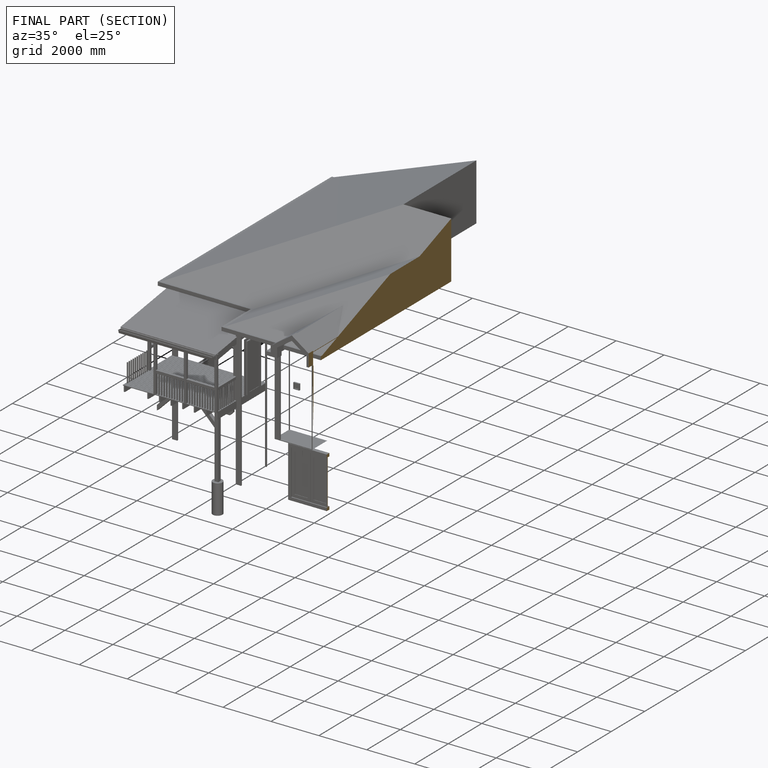
[diagram: finished part — half-section view (interior)]
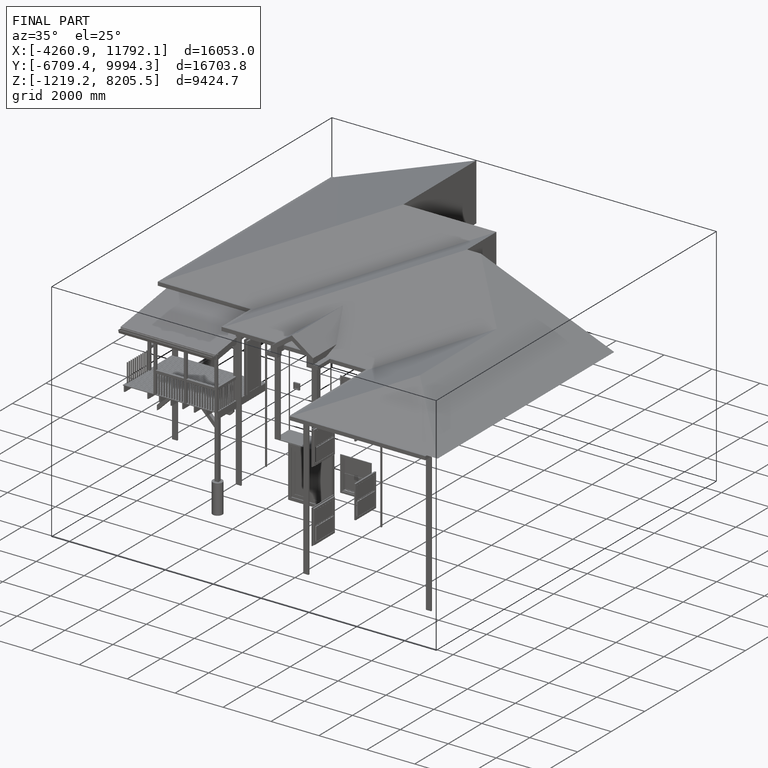
[diagram: finished part — iso view with bounding-box wireframe]
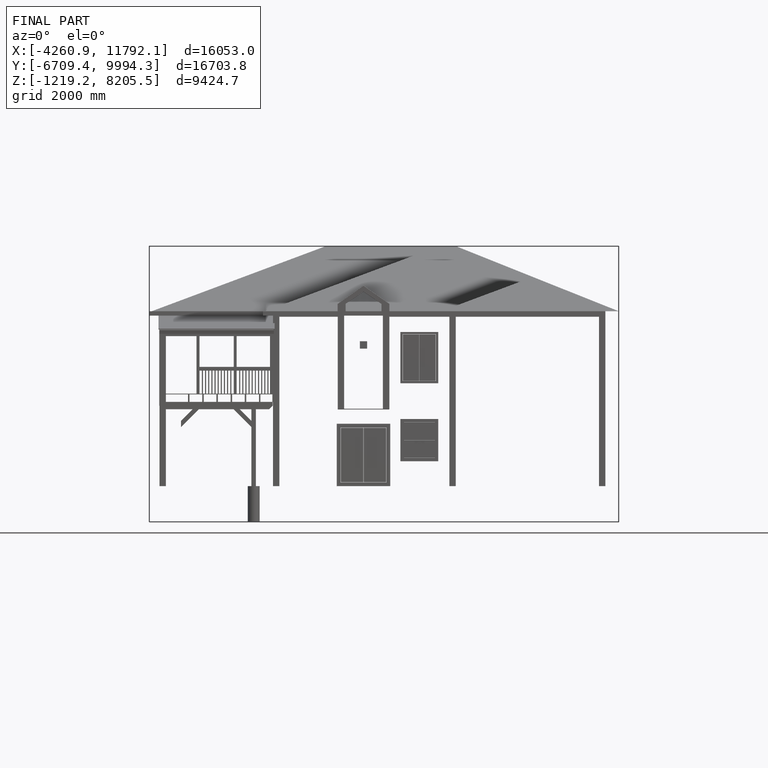
[diagram: finished part — front view with bounding-box wireframe]
